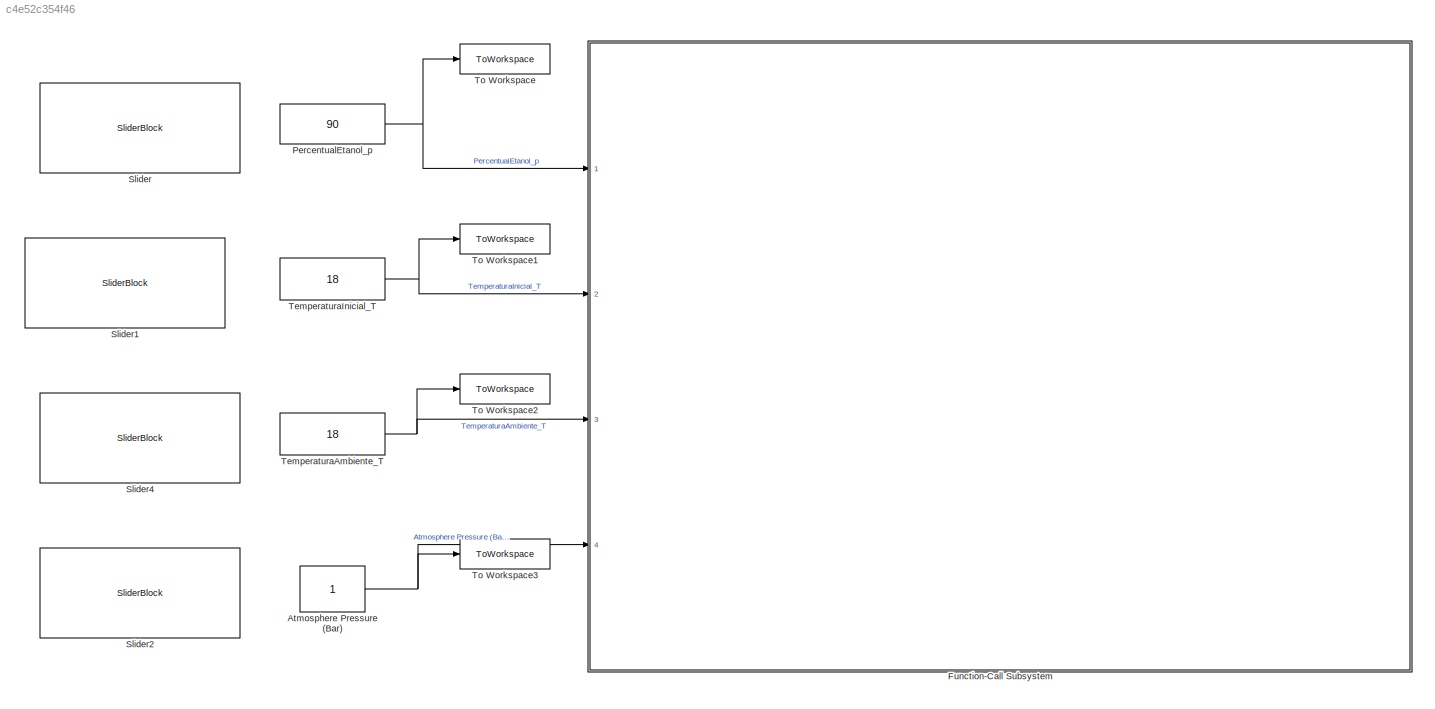
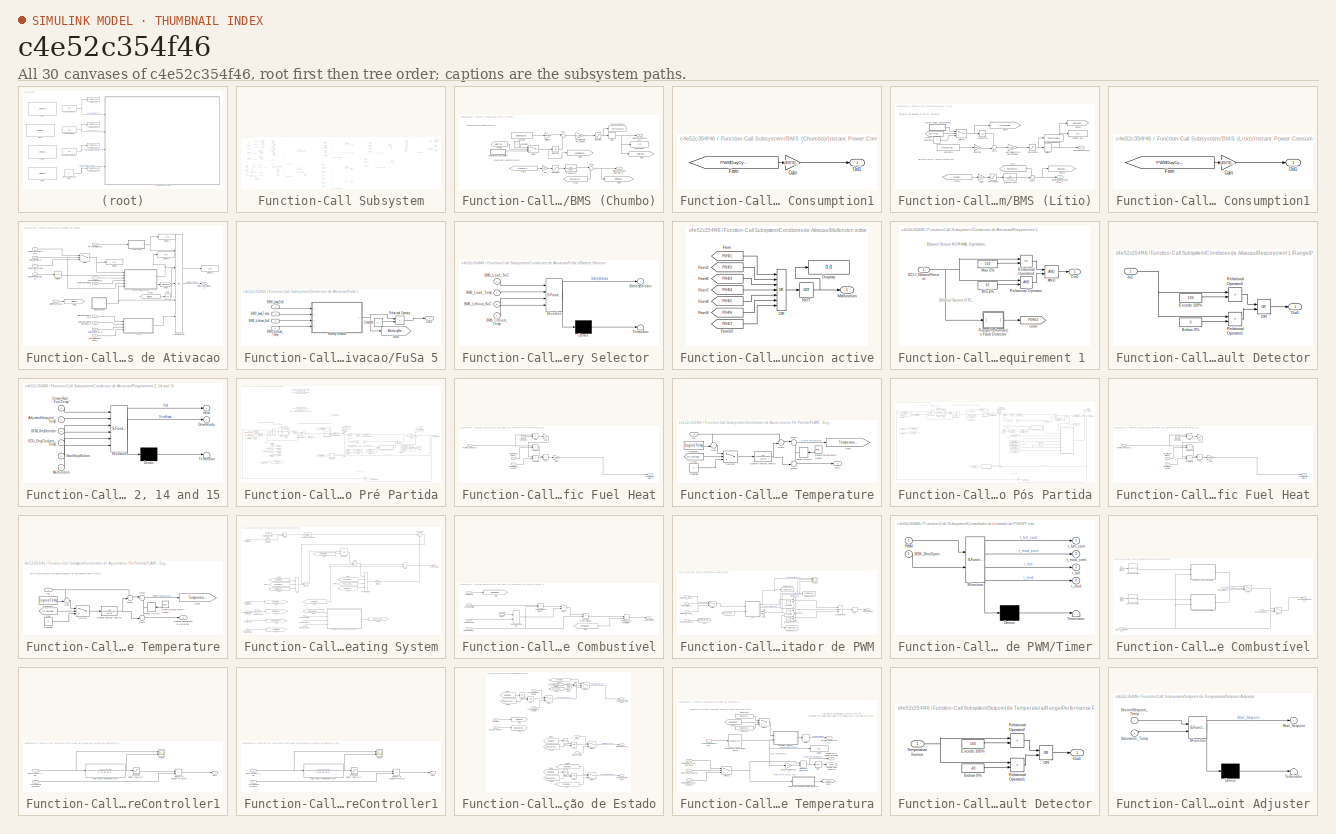
[diagram: thumbnail index - all 30 canvases of the model, root first then tree order]
MODEL slx_c4e52c354f46
KIND model
CONFIG AbsTol = auto
CONFIG EnableMultiTasking = off
CONFIG FixedStep = 0.01
CONFIG MaxStep = auto
CONFIG MinStep = auto
CONFIG RelTol = 1e-3
CONFIG SampleTimeConstraint = Unconstrained
CONFIG SolverName = ode5
CONFIG StartTime = 0.0
CONFIG StopTime = inf
BLOCK [Constant] Atmosphere Pressure (Bar)
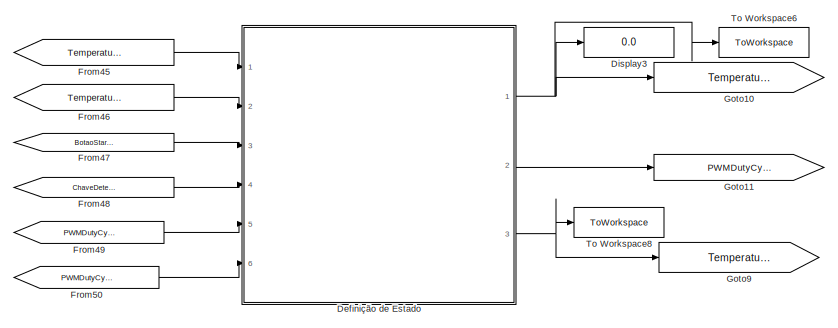
[diagram: Function-Call Subsystem - part 1/5, top right region]
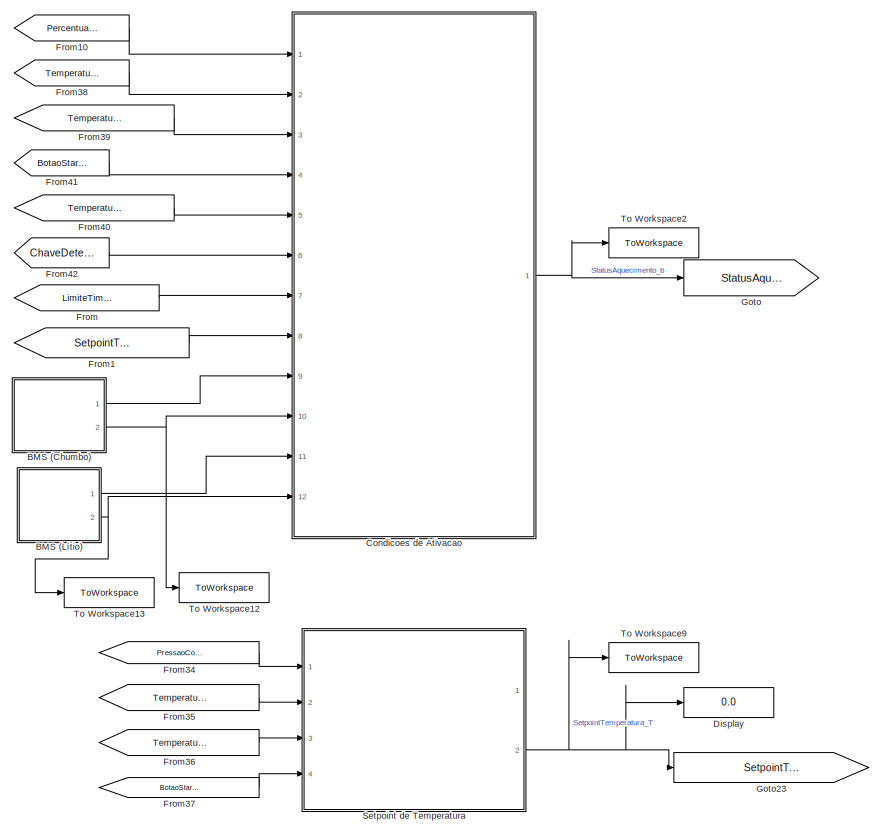
[diagram: Function-Call Subsystem - part 2/5, left side, full height]
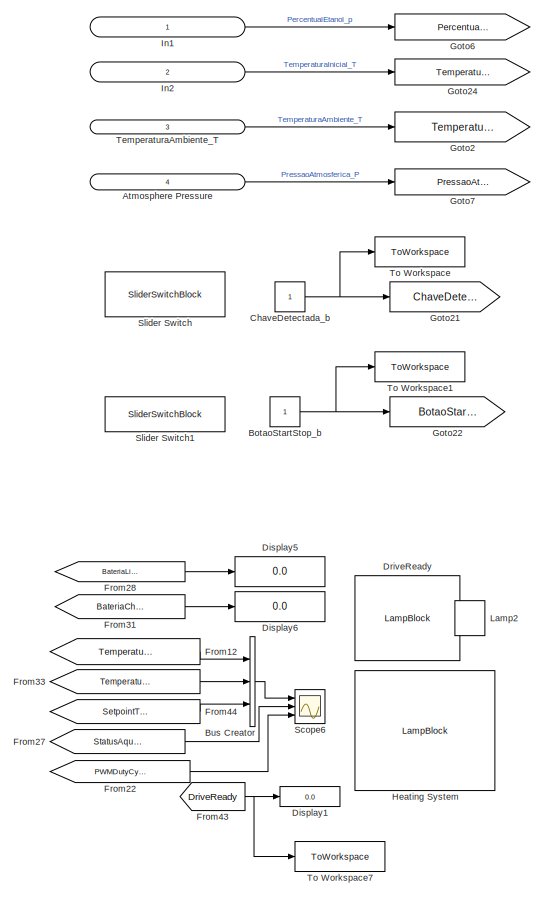
[diagram: Function-Call Subsystem - part 3/5, left side, full height]
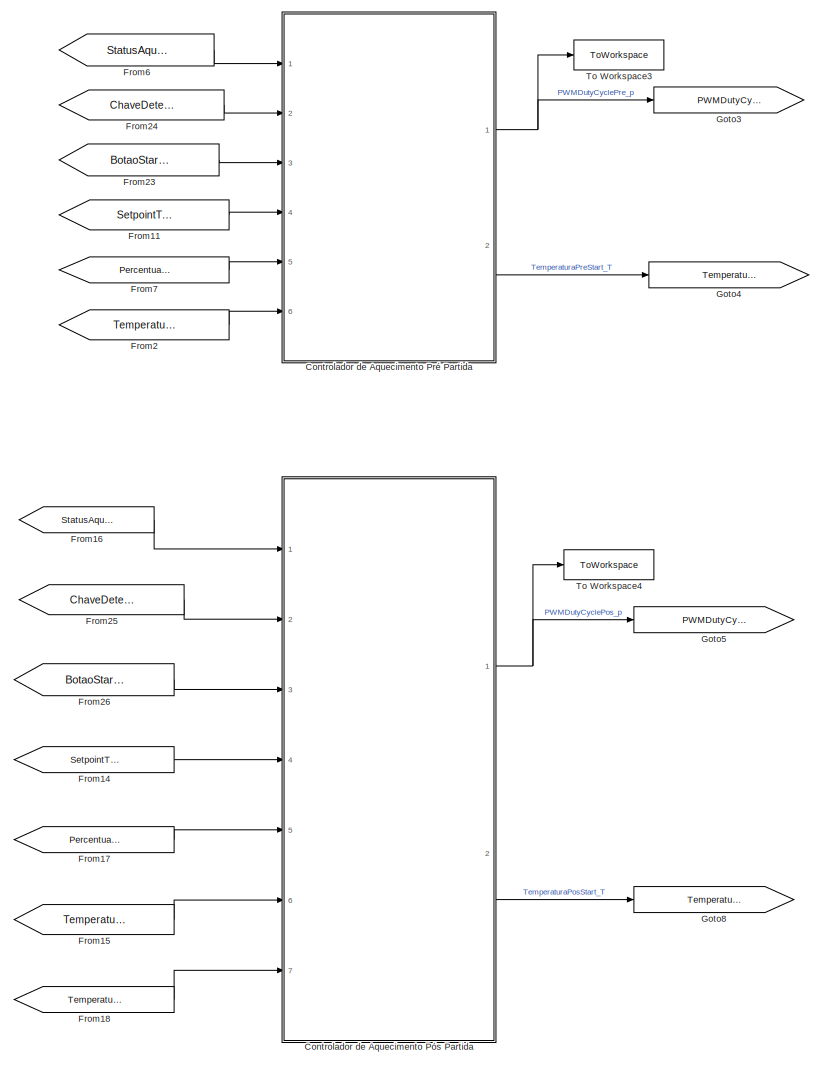
[diagram: Function-Call Subsystem - part 4/5, center side, full height]
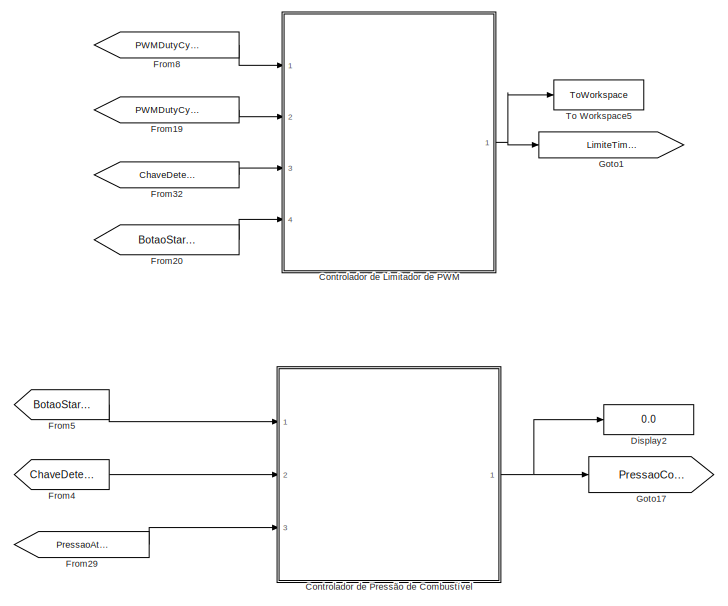
[diagram: Function-Call Subsystem - part 5/5, top right region]
BLOCK [SubSystem] Function-Call Subsystem
  Ports = [4]
  RequestExecContextInheritance = off
  TreatAsAtomicUnit = on
BLOCK [Inport] Function-Call Subsystem/Atmosphere Pressure
  IconDisplay = Port number and signal name
  Port = 4
BLOCK [SubSystem] Function-Call Subsystem/BMS (Chumbo)
  Ports = [0, 2]
  RequestExecContextInheritance = off
BLOCK [Outport] Function-Call Subsystem/BMS (Chumbo)/BateriaChumboCarga_p
  VectorParamsAs1DForOutWhenUnconnected = off
BLOCK [Outport] Function-Call Subsystem/BMS (Chumbo)/BateriaChumboTemperatura_T
  Port = 2
  VectorParamsAs1DForOutWhenUnconnected = off
BLOCK [Constant] Function-Call Subsystem/BMS (Chumbo)/Constant
  Value = LeadAcid_TotalEnergy
BLOCK [Constant] Function-Call Subsystem/BMS (Chumbo)/Constant2
  Value = 0
BLOCK [Delay] Function-Call Subsystem/BMS (Chumbo)/Delay
  DelayLength = 1
  InitialCondition = 100
  InputPortMap = u0
  Ports = [1, 1]
  SampleTime = 0.01
BLOCK [From] Function-Call Subsystem/BMS (Chumbo)/From5
  GotoTag = BatterySelector
  TagVisibility = global
BLOCK [From] Function-Call Subsystem/BMS (Chumbo)/From6
  GotoTag = TemperaturaAmbiente_T
  TagVisibility = global
BLOCK [From] Function-Call Subsystem/BMS (Chumbo)/From7
  GotoTag = LeadEnergyConsumption
  TagVisibility = global
BLOCK [Gain] Function-Call Subsystem/BMS (Chumbo)/Gain
  Gain = 500
BLOCK [Goto] Function-Call Subsystem/BMS (Chumbo)/Goto
  GotoTag = BateriaChumboCarga_p
  TagVisibility = global
BLOCK [Goto] Function-Call Subsystem/BMS (Chumbo)/Goto1
  GotoTag = BateriaChumboTemperatura_T
  TagVisibility = global
BLOCK [Goto] Function-Call Subsystem/BMS (Chumbo)/Goto4
  GotoTag = LeadEnergyConsumption
  TagVisibility = global
BLOCK [Gain] Function-Call Subsystem/BMS (Chumbo)/Initial SoC
  Gain = 0.505
BLOCK [SubSystem] Function-Call Subsystem/BMS (Chumbo)/Instant Power Consumption1
  Ports = [0, 1]
  RequestExecContextInheritance = off
BLOCK [From] Function-Call Subsystem/BMS (Chumbo)/Instant Power Consumption1/From
  GotoTag = PWMDutyCycle_p
  TagVisibility = global
BLOCK [Gain] Function-Call Subsystem/BMS (Chumbo)/Instant Power Consumption1/Gain
  Gain = (400*4)/(100*3600)
BLOCK [Outport] Function-Call Subsystem/BMS (Chumbo)/Instant Power Consumption1/Out1
BLOCK [Integrator] Function-Call Subsystem/BMS (Chumbo)/Integrator
  Ports = [1, 1]
BLOCK [Display] Function-Call Subsystem/BMS (Chumbo)/LeadAcid SoC
  Decimation = 1
  Ports = [1]
BLOCK [Gain] Function-Call Subsystem/BMS (Chumbo)/Normalizing in to percentage
  Gain = (1/LeadAcid_TotalEnergy)*100
BLOCK [Saturate] Function-Call Subsystem/BMS (Chumbo)/Saturation
  LowerLimit = 0
  UpperLimit = 100
BLOCK [Saturate] Function-Call Subsystem/BMS (Chumbo)/Saturation2
  LowerLimit = -inf
  UpperLimit = 120
BLOCK [Sum] Function-Call Subsystem/BMS (Chumbo)/Sum
  Inputs = |+-
  Ports = [2, 1]
BLOCK [Sum] Function-Call Subsystem/BMS (Chumbo)/Sum4
  Inputs = |++
  Ports = [2, 1]
BLOCK [Switch] Function-Call Subsystem/BMS (Chumbo)/Switch
  Criteria = u2 > Threshold
  InputSameDT = off
  SaturateOnIntegerOverflow = off
  Threshold = 1
BLOCK [ToWorkspace] Function-Call Subsystem/BMS (Chumbo)/To Workspace11
  FixptAsFi = on
  MaxDataPoints = inf
  Ports = [1]
  SampleTime = 0.01
  Save2DSignal = 2-D array (concatenate along first dimension)
  VariableName = BateriaChumboCarga_p
BLOCK [TransferFcn] Function-Call Subsystem/BMS (Chumbo)/Transfer Fcn
  Denominator = [40 1]
BLOCK [SubSystem] Function-Call Subsystem/BMS (Lítio)
  Ports = [0, 2]
  RequestExecContextInheritance = off
BLOCK [Outport] Function-Call Subsystem/BMS (Lítio)/BateriaLitioCarga_p
  VectorParamsAs1DForOutWhenUnconnected = off
BLOCK [Outport] Function-Call Subsystem/BMS (Lítio)/BateriaLitioTemperatura_T
  Port = 2
  VectorParamsAs1DForOutWhenUnconnected = off
BLOCK [Constant] Function-Call Subsystem/BMS (Lítio)/Constant1
  Value = Lithium_TotalEnergy
BLOCK [Constant] Function-Call Subsystem/BMS (Lítio)/Constant3
  Value = 0
BLOCK [Delay] Function-Call Subsystem/BMS (Lítio)/Delay1
  DelayLength = 1
  InitialCondition = 100
  InputPortMap = u0
  Ports = [1, 1]
  SampleTime = 0.01
BLOCK [From] Function-Call Subsystem/BMS (Lítio)/From
  GotoTag = TemperaturaAmbiente_T
  TagVisibility = global
BLOCK [From] Function-Call Subsystem/BMS (Lítio)/From4
  GotoTag = LithiumEnergyConsumption
  TagVisibility = global
BLOCK [From] Function-Call Subsystem/BMS (Lítio)/From8
  GotoTag = BatterySelector
  TagVisibility = global
BLOCK [Gain] Function-Call Subsystem/BMS (Lítio)/Gain1
  Gain = 500
BLOCK [Goto] Function-Call Subsystem/BMS (Lítio)/Goto3
  GotoTag = BateriaLitioTemperatura_T
  TagVisibility = global
BLOCK [Goto] Function-Call Subsystem/BMS (Lítio)/Goto6
  GotoTag = BateriaLitioCarga_p
  TagVisibility = global
BLOCK [Goto] Function-Call Subsystem/BMS (Lítio)/Goto7
  GotoTag = LithiumEnergyConsumption
  TagVisibility = global
BLOCK [Gain] Function-Call Subsystem/BMS (Lítio)/Initial SoC.
  Gain = 0.52
BLOCK [SubSystem] Function-Call Subsystem/BMS (Lítio)/Instant Power Consumption1
  NameLocation = top
  Ports = [0, 1]
  RequestExecContextInheritance = off
BLOCK [From] Function-Call Subsystem/BMS (Lítio)/Instant Power Consumption1/From
  GotoTag = PWMDutyCycle_p
  TagVisibility = global
BLOCK [Gain] Function-Call Subsystem/BMS (Lítio)/Instant Power Consumption1/Gain
  Gain = (400*4)/(100*3600)
BLOCK [Outport] Function-Call Subsystem/BMS (Lítio)/Instant Power Consumption1/Out1
BLOCK [Integrator] Function-Call Subsystem/BMS (Lítio)/Integrator1
  Ports = [1, 1]
BLOCK [Display] Function-Call Subsystem/BMS (Lítio)/Lithium SoC
  Decimation = 1
  Ports = [1]
BLOCK [Gain] Function-Call Subsystem/BMS (Lítio)/Normalizing in to percentage1
  Gain = (1/Lithium_TotalEnergy)*100
BLOCK [Saturate] Function-Call Subsystem/BMS (Lítio)/Saturation1
  LowerLimit = 0
  UpperLimit = 100
BLOCK [Saturate] Function-Call Subsystem/BMS (Lítio)/Saturation3
  LowerLimit = -inf
  UpperLimit = 120
BLOCK [Sum] Function-Call Subsystem/BMS (Lítio)/Sum1
  Inputs = -+|
  Ports = [2, 1]
BLOCK [Sum] Function-Call Subsystem/BMS (Lítio)/Sum5
  Inputs = ++|
  Ports = [2, 1]
BLOCK [Switch] Function-Call Subsystem/BMS (Lítio)/Switch1
  Criteria = u2 > Threshold
  InputSameDT = off
  SaturateOnIntegerOverflow = off
  Threshold = 1
BLOCK [ToWorkspace] Function-Call Subsystem/BMS (Lítio)/To Workspace10
  FixptAsFi = on
  MaxDataPoints = inf
  Ports = [1]
  SampleTime = 0.01
  Save2DSignal = 2-D array (concatenate along first dimension)
  VariableName = BateriaLitioCarga_p
BLOCK [TransferFcn] Function-Call Subsystem/BMS (Lítio)/Transfer Fcn1
  Denominator = [40 1]
BLOCK [Constant] Function-Call Subsystem/BotaoStartStop_b
BLOCK [BusCreator] Function-Call Subsystem/Bus Creator
  DisplayOption = bar
  InheritFromInputs = on
  Inputs = 3
  Ports = [3, 1]
BLOCK [Constant] Function-Call Subsystem/ChaveDetectada_b
BLOCK [SubSystem] Function-Call Subsystem/Condicoes de Ativacao
  Ports = [12, 1]
  RequestExecContextInheritance = off
BLOCK [Inport] Function-Call Subsystem/Condicoes de Ativacao/BateriaChumboCarga_p
  Port = 9
BLOCK [Inport] Function-Call Subsystem/Condicoes de Ativacao/BateriaChumboTemperatura_T
  Port = 10
BLOCK [Inport] Function-Call Subsystem/Condicoes de Ativacao/BateriaLitioCarga_p
  Port = 11
BLOCK [Inport] Function-Call Subsystem/Condicoes de Ativacao/BateriaLitioTemperatura_T
  Port = 12
BLOCK [Inport] Function-Call Subsystem/Condicoes de Ativacao/BotaoStartStop_b
  Port = 4
BLOCK [Inport] Function-Call Subsystem/Condicoes de Ativacao/ChaveDetectada_b
  Port = 6
BLOCK [Display] Function-Call Subsystem/Condicoes de Ativacao/Display
  Decimation = 1
  Ports = [1]
BLOCK [Display] Function-Call Subsystem/Condicoes de Ativacao/Display1
  Decimation = 1
  Ports = [1]
BLOCK [Display] Function-Call Subsystem/Condicoes de Ativacao/Display2
  Decimation = 1
  Ports = [1]
BLOCK [Display] Function-Call Subsystem/Condicoes de Ativacao/Display3
  Decimation = 1
  Ports = [1]
BLOCK [From] Function-Call Subsystem/Condicoes de Ativacao/From3
  GotoTag = LimiteTimerPWM_b
BLOCK [SubSystem] Function-Call Subsystem/Condicoes de Ativacao/FuSa 5
  Ports = [4, 1]
  RequestExecContextInheritance = off
BLOCK [Inport] Function-Call Subsystem/Condicoes de Ativacao/FuSa 5/BMS_Lead_SoC
BLOCK [Inport] Function-Call Subsystem/Condicoes de Ativacao/FuSa 5/BMS_Lead_Temp
  Port = 2
BLOCK [Inport] Function-Call Subsystem/Condicoes de Ativacao/FuSa 5/BMS_Lithium_SoC
  Port = 3
BLOCK [Inport] Function-Call Subsystem/Condicoes de Ativacao/FuSa 5/BMS_Lithium_Temp
  Port = 4
BLOCK [SubSystem] Function-Call Subsystem/Condicoes de Ativacao/FuSa 5/Battery Selector 
  ErrorFcn = Stateflow.Translate.translate
  PermitHierarchicalResolution = ExplicitOnly
  Ports = [4, 1]
  RequestExecContextInheritance = off
  SFBlockType = Chart
  TreatAsAtomicUnit = on
BLOCK [Demux] Function-Call Subsystem/Condicoes de Ativacao/FuSa 5/Battery Selector / Demux 
  Outputs = 1
  Ports = [1, 1]
BLOCK [S-Function] Function-Call Subsystem/Condicoes de Ativacao/FuSa 5/Battery Selector / SFunction 
  EnableBusSupport = on
  FunctionName = sf_sfun
  Parameters = Lead_MaxTemp,Lithium_MaxTemp
  PortCounts = [4 2]
  Ports = [4, 2]
  SFcnIsStateOwnerBlock = off
  SFunctionDeploymentMode = off
  Tag = Stateflow S-Function 4
BLOCK [Terminator] Function-Call Subsystem/Condicoes de Ativacao/FuSa 5/Battery Selector / Terminator 
BLOCK [Inport] Function-Call Subsystem/Condicoes de Ativacao/FuSa 5/Battery Selector /BMS_Lead_SoC
BLOCK [Inport] Function-Call Subsystem/Condicoes de Ativacao/FuSa 5/Battery Selector /BMS_Lead_Temp
  Port = 2
BLOCK [Inport] Function-Call Subsystem/Condicoes de Ativacao/FuSa 5/Battery Selector /BMS_Lithium_SoC
  Port = 3
BLOCK [Inport] Function-Call Subsystem/Condicoes de Ativacao/FuSa 5/Battery Selector /BMS_Lithium_Temp
  Port = 4
BLOCK [Outport] Function-Call Subsystem/Condicoes de Ativacao/FuSa 5/Battery Selector /BatterySelector
BLOCK [Constant] Function-Call Subsystem/Condicoes de Ativacao/FuSa 5/Constant
  Value = 0
BLOCK [Goto] Function-Call Subsystem/Condicoes de Ativacao/FuSa 5/Goto1
  GotoTag = BatterySelector
  TagVisibility = global
BLOCK [Outport] Function-Call Subsystem/Condicoes de Ativacao/FuSa 5/Out1
BLOCK [RelationalOperator] Function-Call Subsystem/Condicoes de Ativacao/FuSa 5/Relational Operator
  InputSameDT = off
  Operator = >
  OutDataTypeStr = boolean
  Ports = [2, 1]
  RndMeth = Simplest
BLOCK [Goto] Function-Call Subsystem/Condicoes de Ativacao/Goto1
  GotoTag = LimiteTimerPWM_b
BLOCK [Goto] Function-Call Subsystem/Condicoes de Ativacao/Goto3
  GotoTag = DriveReady
  TagVisibility = global
BLOCK [Inport] Function-Call Subsystem/Condicoes de Ativacao/LimiteTimerPWM_b
  Port = 7
BLOCK [Logic] Function-Call Subsystem/Condicoes de Ativacao/Logical Operator
  AllPortsSameDT = off
  Inputs = 5
  OutDataTypeStr = boolean
  Ports = [5, 1]
BLOCK [SubSystem] Function-Call Subsystem/Condicoes de Ativacao/Malfuncion active
  Ports = [0, 1]
  RequestExecContextInheritance = off
BLOCK [Display] Function-Call Subsystem/Condicoes de Ativacao/Malfuncion active/Display
  Decimation = 1
  Ports = [1]
BLOCK [From] Function-Call Subsystem/Condicoes de Ativacao/Malfuncion active/From
  GotoTag = P0H01
  TagVisibility = global
BLOCK [From] Function-Call Subsystem/Condicoes de Ativacao/Malfuncion active/From10
  GotoTag = P0H07
  TagVisibility = global
BLOCK [From] Function-Call Subsystem/Condicoes de Ativacao/Malfuncion active/From2
  GotoTag = P0H02
  TagVisibility = global
BLOCK [From] Function-Call Subsystem/Condicoes de Ativacao/Malfuncion active/From6
  GotoTag = P0H03
  TagVisibility = global
BLOCK [From] Function-Call Subsystem/Condicoes de Ativacao/Malfuncion active/From7
  GotoTag = P0H04
  TagVisibility = global
BLOCK [From] Function-Call Subsystem/Condicoes de Ativacao/Malfuncion active/From8
  GotoTag = P0H05
  TagVisibility = global
BLOCK [From] Function-Call Subsystem/Condicoes de Ativacao/Malfuncion active/From9
  GotoTag = P0H06
  TagVisibility = global
BLOCK [Outport] Function-Call Subsystem/Condicoes de Ativacao/Malfuncion active/Malfunction
BLOCK [Logic] Function-Call Subsystem/Condicoes de Ativacao/Malfuncion active/NOT
  AllPortsSameDT = off
  IconShape = distinctive
  Operator = NOT
  OutDataTypeStr = boolean
  Ports = [1, 1]
BLOCK [Logic] Function-Call Subsystem/Condicoes de Ativacao/Malfuncion active/OR
  AllPortsSameDT = off
  IconShape = distinctive
  Inputs = 7
  Operator = OR
  OutDataTypeStr = boolean
  Ports = [7, 1]
BLOCK [Logic] Function-Call Subsystem/Condicoes de Ativacao/NOT
  AllPortsSameDT = off
  IconShape = distinctive
  Operator = NOT
  OutDataTypeStr = boolean
  Ports = [1, 1]
BLOCK [Inport] Function-Call Subsystem/Condicoes de Ativacao/PercentualEtanol_p
BLOCK [SubSystem] Function-Call Subsystem/Condicoes de Ativacao/Requirement 1 
  Ports = [1, 1]
  RequestExecContextInheritance = off
BLOCK [Logic] Function-Call Subsystem/Condicoes de Ativacao/Requirement 1 /AND
  AllPortsSameDT = off
  IconShape = distinctive
  OutDataTypeStr = boolean
  Ports = [2, 1]
BLOCK [Inport] Function-Call Subsystem/Condicoes de Ativacao/Requirement 1 /ECU_EthanolPercent
BLOCK [Goto] Function-Call Subsystem/Condicoes de Ativacao/Requirement 1 /Goto
  GotoTag = P0H03
  TagVisibility = global
BLOCK [Constant] Function-Call Subsystem/Condicoes de Ativacao/Requirement 1 /Max E%
  Value = 100
BLOCK [Constant] Function-Call Subsystem/Condicoes de Ativacao/Requirement 1 /Min E%
  Value = 85
BLOCK [Outport] Function-Call Subsystem/Condicoes de Ativacao/Requirement 1 /Out1
  VectorParamsAs1DForOutWhenUnconnected = off
BLOCK [SubSystem] Function-Call Subsystem/Condicoes de Ativacao/Requirement 1 /Range//Performance Fault Detector
  Ports = [1, 1]
  RequestExecContextInheritance = off
BLOCK [Constant] Function-Call Subsystem/Condicoes de Ativacao/Requirement 1 /Range//Performance Fault Detector/Below 0%
  Value = 0
BLOCK [Constant] Function-Call Subsystem/Condicoes de Ativacao/Requirement 1 /Range//Performance Fault Detector/Exceds 100%
  Value = 100
BLOCK [Inport] Function-Call Subsystem/Condicoes de Ativacao/Requirement 1 /Range//Performance Fault Detector/In1
BLOCK [Logic] Function-Call Subsystem/Condicoes de Ativacao/Requirement 1 /Range//Performance Fault Detector/OR
  AllPortsSameDT = off
  IconShape = distinctive
  Operator = OR
  OutDataTypeStr = boolean
  Ports = [2, 1]
BLOCK [Outport] Function-Call Subsystem/Condicoes de Ativacao/Requirement 1 /Range//Performance Fault Detector/Out1
BLOCK [RelationalOperator] Function-Call Subsystem/Condicoes de Ativacao/Requirement 1 /Range//Performance Fault Detector/Relational Operator1
  InputSameDT = off
  Operator = <
  OutDataTypeStr = boolean
  Ports = [2, 1]
  RndMeth = Simplest
BLOCK [RelationalOperator] Function-Call Subsystem/Condicoes de Ativacao/Requirement 1 /Range//Performance Fault Detector/Relational Operator2
  InputSameDT = off
  Operator = >
  OutDataTypeStr = boolean
  Ports = [2, 1]
  RndMeth = Simplest
BLOCK [RelationalOperator] Function-Call Subsystem/Condicoes de Ativacao/Requirement 1 /Relational Operator
  InputSameDT = off
  OutDataTypeStr = boolean
  Ports = [2, 1]
  RndMeth = Simplest
BLOCK [RelationalOperator] Function-Call Subsystem/Condicoes de Ativacao/Requirement 1 /Relational Operator4
  InputSameDT = off
  Operator = <=
  OutDataTypeStr = boolean
  Ports = [2, 1]
  RndMeth = Simplest
BLOCK [SubSystem] Function-Call Subsystem/Condicoes de Ativacao/Requirement 2, 14 and 15
  ErrorFcn = Stateflow.Translate.translate
  PermitHierarchicalResolution = ExplicitOnly
  Ports = [6, 2]
  RequestExecContextInheritance = off
  SFBlockType = Chart
  TreatAsAtomicUnit = on
BLOCK [Demux] Function-Call Subsystem/Condicoes de Ativacao/Requirement 2, 14 and 15/ Demux 
  Outputs = 1
  Ports = [1, 1]
BLOCK [S-Function] Function-Call Subsystem/Condicoes de Ativacao/Requirement 2, 14 and 15/ SFunction 
  EnableBusSupport = on
  FunctionName = sf_sfun
  PortCounts = [6 3]
  Ports = [6, 3]
  SFcnIsStateOwnerBlock = off
  SFunctionDeploymentMode = off
  Tag = Stateflow S-Function 1
BLOCK [Terminator] Function-Call Subsystem/Condicoes de Ativacao/Requirement 2, 14 and 15/ Terminator 
BLOCK [Inport] Function-Call Subsystem/Condicoes de Ativacao/Requirement 2, 14 and 15/AdjustedSetpoint_Temp
  Port = 2
BLOCK [Inport] Function-Call Subsystem/Condicoes de Ativacao/Requirement 2, 14 and 15/BCM_KeyDetector
  Port = 3
BLOCK [Inport] Function-Call Subsystem/Condicoes de Ativacao/Requirement 2, 14 and 15/ComonRail_FuelTemp
BLOCK [Outport] Function-Call Subsystem/Condicoes de Ativacao/Requirement 2, 14 and 15/DriveReady
  Port = 2
BLOCK [Inport] Function-Call Subsystem/Condicoes de Ativacao/Requirement 2, 14 and 15/ECU_EngCoolant_Temp
  Port = 4
BLOCK [Outport] Function-Call Subsystem/Condicoes de Ativacao/Requirement 2, 14 and 15/Heat
BLOCK [Inport] Function-Call Subsystem/Condicoes de Ativacao/Requirement 2, 14 and 15/Malfunction
  Port = 6
BLOCK [Inport] Function-Call Subsystem/Condicoes de Ativacao/Requirement 2, 14 and 15/StartStopButton
  Port = 5
BLOCK [Inport] Function-Call Subsystem/Condicoes de Ativacao/SetpointTemperatura_T
  Port = 8
BLOCK [Outport] Function-Call Subsystem/Condicoes de Ativacao/StatusAquecimento_b
BLOCK [Switch] Function-Call Subsystem/Condicoes de Ativacao/Switch
  Criteria = u2 > Threshold
  InputSameDT = off
  SaturateOnIntegerOverflow = off
BLOCK [Inport] Function-Call Subsystem/Condicoes de Ativacao/TemperaturaInicial_T
  Port = 2
BLOCK [Inport] Function-Call Subsystem/Condicoes de Ativacao/TemperaturaPosStart_T
  Port = 5
BLOCK [Inport] Function-Call Subsystem/Condicoes de Ativacao/TemperaturaPreStart_T
  Port = 3
BLOCK [UnitDelay] Function-Call Subsystem/Condicoes de Ativacao/Unit Delay
  HasFrameUpgradeWarning = on
  SampleTime = -1
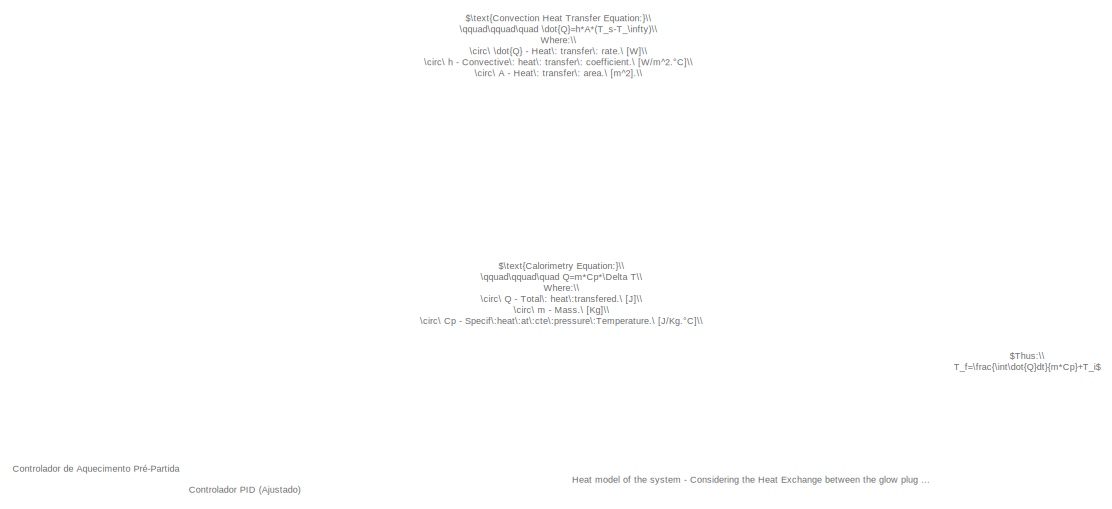
[diagram: Function-Call Subsystem/Controlador de Aquecimento Pré Partida - part 1/4, top left region]
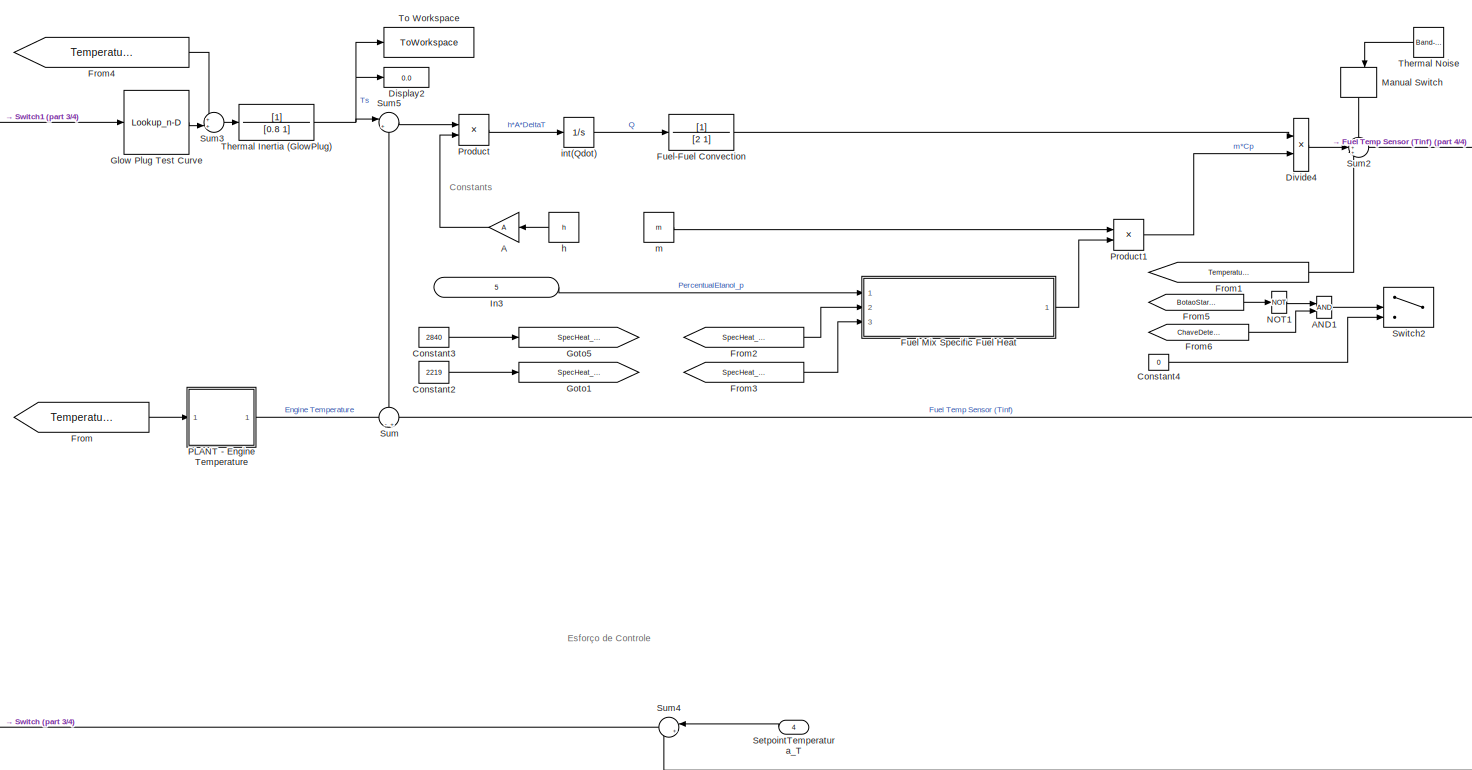
[diagram: Function-Call Subsystem/Controlador de Aquecimento Pré Partida - part 2/4, bottom center region]
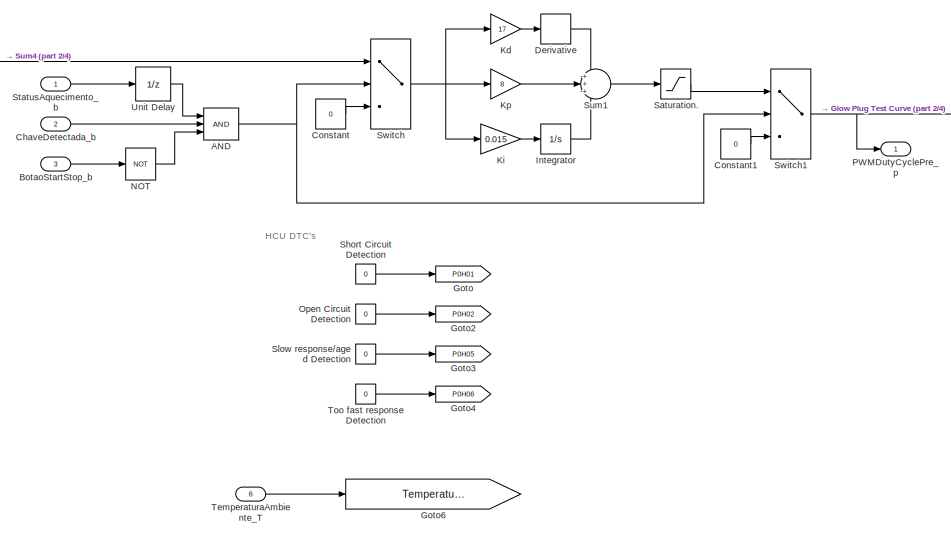
[diagram: Function-Call Subsystem/Controlador de Aquecimento Pré Partida - part 3/4, middle left region]
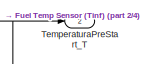
[diagram: Function-Call Subsystem/Controlador de Aquecimento Pré Partida - part 4/4, middle right region]
BLOCK [SubSystem] Function-Call Subsystem/Controlador de Aquecimento Pré Partida
  Ports = [6, 2]
  RequestExecContextInheritance = off
BLOCK [Gain] Function-Call Subsystem/Controlador de Aquecimento Pré Partida/A
  Gain = A
BLOCK [Logic] Function-Call Subsystem/Controlador de Aquecimento Pré Partida/AND
  AllPortsSameDT = off
  IconShape = distinctive
  Inputs = 3
  OutDataTypeStr = boolean
  Ports = [3, 1]
BLOCK [Logic] Function-Call Subsystem/Controlador de Aquecimento Pré Partida/AND1
  AllPortsSameDT = off
  IconShape = distinctive
  OutDataTypeStr = boolean
  Ports = [2, 1]
BLOCK [Inport] Function-Call Subsystem/Controlador de Aquecimento Pré Partida/BotaoStartStop_b
  Port = 3
BLOCK [Inport] Function-Call Subsystem/Controlador de Aquecimento Pré Partida/ChaveDetectada_b
  Port = 2
BLOCK [Constant] Function-Call Subsystem/Controlador de Aquecimento Pré Partida/Constant
  Value = 0
BLOCK [Constant] Function-Call Subsystem/Controlador de Aquecimento Pré Partida/Constant1
  Value = 0
BLOCK [Constant] Function-Call Subsystem/Controlador de Aquecimento Pré Partida/Constant2
  Value = 2219
BLOCK [Constant] Function-Call Subsystem/Controlador de Aquecimento Pré Partida/Constant3
  Value = 2840
BLOCK [Constant] Function-Call Subsystem/Controlador de Aquecimento Pré Partida/Constant4
  Value = 0
BLOCK [Derivative] Function-Call Subsystem/Controlador de Aquecimento Pré Partida/Derivative
BLOCK [Display] Function-Call Subsystem/Controlador de Aquecimento Pré Partida/Display2
  Decimation = 1
  Ports = [1]
BLOCK [Product] Function-Call Subsystem/Controlador de Aquecimento Pré Partida/Divide4
  Inputs = */
  Ports = [2, 1]
BLOCK [From] Function-Call Subsystem/Controlador de Aquecimento Pré Partida/From
  GotoTag = Temperatura_Ambiente
BLOCK [From] Function-Call Subsystem/Controlador de Aquecimento Pré Partida/From1
  GotoTag = Temperatura_Ambiente
BLOCK [From] Function-Call Subsystem/Controlador de Aquecimento Pré Partida/From2
  GotoTag = SpecHeat_Ethanol
BLOCK [From] Function-Call Subsystem/Controlador de Aquecimento Pré Partida/From3
  GotoTag = SpecHeat_Gas
BLOCK [From] Function-Call Subsystem/Controlador de Aquecimento Pré Partida/From4
  GotoTag = Temperatura_Ambiente
BLOCK [From] Function-Call Subsystem/Controlador de Aquecimento Pré Partida/From5
  GotoTag = BotaoStartStop_b
  TagVisibility = global
BLOCK [From] Function-Call Subsystem/Controlador de Aquecimento Pré Partida/From6
  GotoTag = ChaveDetectada_b
  TagVisibility = global
BLOCK [SubSystem] Function-Call Subsystem/Controlador de Aquecimento Pré Partida/Fuel Mix Specific Fuel Heat
  Ports = [3, 1]
  RequestExecContextInheritance = off
BLOCK [Sum] Function-Call Subsystem/Controlador de Aquecimento Pré Partida/Fuel Mix Specific Fuel Heat/Add
  IconShape = rectangular
  Inputs = +-
  Ports = [2, 1]
BLOCK [Sum] Function-Call Subsystem/Controlador de Aquecimento Pré Partida/Fuel Mix Specific Fuel Heat/Add1
  IconShape = rectangular
  Ports = [2, 1]
BLOCK [Constant] Function-Call Subsystem/Controlador de Aquecimento Pré Partida/Fuel Mix Specific Fuel Heat/Constant3
  Value = 100
BLOCK [Inport] Function-Call Subsystem/Controlador de Aquecimento Pré Partida/Fuel Mix Specific Fuel Heat/FuelMix_Feedback
BLOCK [Gain] Function-Call Subsystem/Controlador de Aquecimento Pré Partida/Fuel Mix Specific Fuel Heat/Gain
  Gain = -1
BLOCK [Gain] Function-Call Subsystem/Controlador de Aquecimento Pré Partida/Fuel Mix Specific Fuel Heat/Gain1
  Gain = 1/100
BLOCK [Product] Function-Call Subsystem/Controlador de Aquecimento Pré Partida/Fuel Mix Specific Fuel Heat/Product1
  Ports = [2, 1]
BLOCK [Product] Function-Call Subsystem/Controlador de Aquecimento Pré Partida/Fuel Mix Specific Fuel Heat/Product2
  Ports = [2, 1]
BLOCK [Inport] Function-Call Subsystem/Controlador de Aquecimento Pré Partida/Fuel Mix Specific Fuel Heat/Specific Heat Etanol
  Port = 2
BLOCK [Inport] Function-Call Subsystem/Controlador de Aquecimento Pré Partida/Fuel Mix Specific Fuel Heat/Specific Heat Gasoline
  Port = 3
BLOCK [Outport] Function-Call Subsystem/Controlador de Aquecimento Pré Partida/Fuel Mix Specific Fuel Heat/Specific Heat Mixture
BLOCK [TransferFcn] Function-Call Subsystem/Controlador de Aquecimento Pré Partida/Fuel-Fuel Convection
  Denominator = [2 1]
BLOCK [Lookup_n-D] Function-Call Subsystem/Controlador de Aquecimento Pré Partida/Glow Plug Test Curve
  BreakpointsForDimension1 = PWM
  BreakpointsForDimension2 = [1:3]
  InputPortMap = u0
  InternalRulePriority = Speed
  NumberOfTableDimensions = 1
  Ports = [1, 1]
  RndMeth = Simplest
  Table = Ts
BLOCK [Goto] Function-Call Subsystem/Controlador de Aquecimento Pré Partida/Goto
  GotoTag = P0H01
  TagVisibility = global
BLOCK [Goto] Function-Call Subsystem/Controlador de Aquecimento Pré Partida/Goto1
  GotoTag = SpecHeat_Gas
BLOCK [Goto] Function-Call Subsystem/Controlador de Aquecimento Pré Partida/Goto2
  GotoTag = P0H02
  TagVisibility = global
BLOCK [Goto] Function-Call Subsystem/Controlador de Aquecimento Pré Partida/Goto3
  GotoTag = P0H05
  TagVisibility = global
BLOCK [Goto] Function-Call Subsystem/Controlador de Aquecimento Pré Partida/Goto4
  GotoTag = P0H06
  TagVisibility = global
BLOCK [Goto] Function-Call Subsystem/Controlador de Aquecimento Pré Partida/Goto5
  GotoTag = SpecHeat_Ethanol
BLOCK [Goto] Function-Call Subsystem/Controlador de Aquecimento Pré Partida/Goto6
  GotoTag = Temperatura_Ambiente
BLOCK [Inport] Function-Call Subsystem/Controlador de Aquecimento Pré Partida/In3
  IconDisplay = Port number and signal name
  Port = 5
BLOCK [Integrator] Function-Call Subsystem/Controlador de Aquecimento Pré Partida/Integrator
  Ports = [1, 1]
BLOCK [Gain] Function-Call Subsystem/Controlador de Aquecimento Pré Partida/Kd
  Gain = 17
BLOCK [Gain] Function-Call Subsystem/Controlador de Aquecimento Pré Partida/Ki
  Gain = 0.015
BLOCK [Gain] Function-Call Subsystem/Controlador de Aquecimento Pré Partida/Kp
  Gain = 8
BLOCK [ManualSwitch] Function-Call Subsystem/Controlador de Aquecimento Pré Partida/Manual Switch
  NameLocation = left
BLOCK [Logic] Function-Call Subsystem/Controlador de Aquecimento Pré Partida/NOT
  AllPortsSameDT = off
  IconShape = distinctive
  Operator = NOT
  OutDataTypeStr = boolean
  Ports = [1, 1]
BLOCK [Logic] Function-Call Subsystem/Controlador de Aquecimento Pré Partida/NOT1
  AllPortsSameDT = off
  IconShape = distinctive
  Operator = NOT
  OutDataTypeStr = boolean
  Ports = [1, 1]
BLOCK [Constant] Function-Call Subsystem/Controlador de Aquecimento Pré Partida/Open Circuit Detection
  Value = 0
BLOCK [SubSystem] Function-Call Subsystem/Controlador de Aquecimento Pré Partida/PLANT - Engine Temperature
  Ports = [1, 1]
  RequestExecContextInheritance = off
BLOCK [Reference] Function-Call Subsystem/Controlador de Aquecimento Pré Partida/PLANT - Engine Temperature/Band-Limited White Noise  REF=simulink/Sources/Band-Limited
White Noise
  Ports = [0, 1]
  SourceBlock = simulink/Sources/Band-Limited\nWhite Noise
  SourceProductBaseCode = SL
  SourceType = Band-Limited White Noise.
BLOCK [Constant] Function-Call Subsystem/Controlador de Aquecimento Pré Partida/PLANT - Engine Temperature/Constant
  Value = 0
BLOCK [Constant] Function-Call Subsystem/Controlador de Aquecimento Pré Partida/PLANT - Engine Temperature/Constant1
  Value = EngineTemp
BLOCK [TransferFcn] Function-Call Subsystem/Controlador de Aquecimento Pré Partida/PLANT - Engine Temperature/Engine Thermal Inertia
  Denominator = [40 1]
BLOCK [From] Function-Call Subsystem/Controlador de Aquecimento Pré Partida/PLANT - Engine Temperature/From
  GotoTag = DriveReady
  TagVisibility = global
BLOCK [Goto] Function-Call Subsystem/Controlador de Aquecimento Pré Partida/PLANT - Engine Temperature/Goto
  GotoTag = TemperaturaArrefMotorPre_T
  TagVisibility = global
BLOCK [Inport] Function-Call Subsystem/Controlador de Aquecimento Pré Partida/PLANT - Engine Temperature/In1
BLOCK [ManualSwitch] Function-Call Subsystem/Controlador de Aquecimento Pré Partida/PLANT - Engine Temperature/Manual Switch
  CurrentSetting = 0
BLOCK [Outport] Function-Call Subsystem/Controlador de Aquecimento Pré Partida/PLANT - Engine Temperature/Out1
BLOCK [Sum] Function-Call Subsystem/Controlador de Aquecimento Pré Partida/PLANT - Engine Temperature/Sum
  Inputs = -+|
  Ports = [2, 1]
BLOCK [Sum] Function-Call Subsystem/Controlador de Aquecimento Pré Partida/PLANT - Engine Temperature/Sum1
  Inputs = ++|
  Ports = [2, 1]
BLOCK [Sum] Function-Call Subsystem/Controlador de Aquecimento Pré Partida/PLANT - Engine Temperature/Sum2
  Inputs = |++
  Ports = [2, 1]
BLOCK [Sum] Function-Call Subsystem/Controlador de Aquecimento Pré Partida/PLANT - Engine Temperature/Sum3
  Inputs = ++|
  Ports = [2, 1]
BLOCK [Switch] Function-Call Subsystem/Controlador de Aquecimento Pré Partida/PLANT - Engine Temperature/Switch
  InputSameDT = off
  SaturateOnIntegerOverflow = off
  Threshold = 2
BLOCK [Outport] Function-Call Subsystem/Controlador de Aquecimento Pré Partida/PWMDutyCyclePre_p
BLOCK [Product] Function-Call Subsystem/Controlador de Aquecimento Pré Partida/Product
  Ports = [2, 1]
BLOCK [Product] Function-Call Subsystem/Controlador de Aquecimento Pré Partida/Product1
  Ports = [2, 1]
BLOCK [Saturate] Function-Call Subsystem/Controlador de Aquecimento Pré Partida/Saturation.
  LowerLimit = 0
  UpperLimit = 100
BLOCK [Inport] Function-Call Subsystem/Controlador de Aquecimento Pré Partida/SetpointTemperatura_T
  Port = 4
BLOCK [Constant] Function-Call Subsystem/Controlador de Aquecimento Pré Partida/Short Circuit Detection
  Value = 0
BLOCK [Constant] Function-Call Subsystem/Controlador de Aquecimento Pré Partida/Slow response//aged Detection
  Value = 0
BLOCK [Inport] Function-Call Subsystem/Controlador de Aquecimento Pré Partida/StatusAquecimento_b
BLOCK [Sum] Function-Call Subsystem/Controlador de Aquecimento Pré Partida/Sum
  Inputs = -+
  NameLocation = right
  Ports = [2, 1]
BLOCK [Sum] Function-Call Subsystem/Controlador de Aquecimento Pré Partida/Sum1
  Inputs = +++
  Ports = [3, 1]
BLOCK [Sum] Function-Call Subsystem/Controlador de Aquecimento Pré Partida/Sum2
  Inputs = +++
  Ports = [3, 1]
BLOCK [Sum] Function-Call Subsystem/Controlador de Aquecimento Pré Partida/Sum3
  Inputs = ++|
  Ports = [2, 1]
BLOCK [Sum] Function-Call Subsystem/Controlador de Aquecimento Pré Partida/Sum4
  Inputs = |+-
  Ports = [2, 1]
BLOCK [Sum] Function-Call Subsystem/Controlador de Aquecimento Pré Partida/Sum5
  Inputs = |+-
  Ports = [2, 1]
BLOCK [Switch] Function-Call Subsystem/Controlador de Aquecimento Pré Partida/Switch
  Criteria = u2 > Threshold
  InputSameDT = off
  SaturateOnIntegerOverflow = off
BLOCK [Switch] Function-Call Subsystem/Controlador de Aquecimento Pré Partida/Switch1
  Criteria = u2 > Threshold
  InputSameDT = off
  SaturateOnIntegerOverflow = off
BLOCK [Switch] Function-Call Subsystem/Controlador de Aquecimento Pré Partida/Switch2
  Criteria = u2 > Threshold
  InputSameDT = off
  SaturateOnIntegerOverflow = off
BLOCK [Inport] Function-Call Subsystem/Controlador de Aquecimento Pré Partida/TemperaturaAmbiente_T
  Port = 6
BLOCK [Outport] Function-Call Subsystem/Controlador de Aquecimento Pré Partida/TemperaturaPreStart_T
  Port = 2
  VectorParamsAs1DForOutWhenUnconnected = off
BLOCK [TransferFcn] Function-Call Subsystem/Controlador de Aquecimento Pré Partida/Thermal Inertia (GlowPlug)
  Denominator = [0.8 1]
BLOCK [Reference] Function-Call Subsystem/Controlador de Aquecimento Pré Partida/Thermal Noise  REF=simulink/Sources/Band-Limited
White Noise
  Ports = [0, 1]
  SourceBlock = simulink/Sources/Band-Limited\nWhite Noise
  SourceProductBaseCode = SL
  SourceType = Band-Limited White Noise.
BLOCK [ToWorkspace] Function-Call Subsystem/Controlador de Aquecimento Pré Partida/To Workspace
  FixptAsFi = on
  MaxDataPoints = inf
  Ports = [1]
  SampleTime = 0.01
  SaveFormat = Timeseries
  VariableName = Temp_Sup_PreP
BLOCK [Constant] Function-Call Subsystem/Controlador de Aquecimento Pré Partida/Too fast response Detection
  Value = 0
BLOCK [UnitDelay] Function-Call Subsystem/Controlador de Aquecimento Pré Partida/Unit Delay
  HasFrameUpgradeWarning = on
  SampleTime = -1
BLOCK [Constant] Function-Call Subsystem/Controlador de Aquecimento Pré Partida/h
  Value = h
BLOCK [Integrator] Function-Call Subsystem/Controlador de Aquecimento Pré Partida/int(Qdot)
  Ports = [1, 1]
BLOCK [Constant] Function-Call Subsystem/Controlador de Aquecimento Pré Partida/m
  Value = m
BLOCK [SubSystem] Function-Call Subsystem/Controlador de Aquecimento Pós Partida
  Ports = [7, 2]
  RequestExecContextInheritance = off
BLOCK [Gain] Function-Call Subsystem/Controlador de Aquecimento Pós Partida/A
  Gain = A
BLOCK [Logic] Function-Call Subsystem/Controlador de Aquecimento Pós Partida/AND
  AllPortsSameDT = off
  IconShape = distinctive
  Inputs = 3
  OutDataTypeStr = boolean
  Ports = [3, 1]
BLOCK [Sum] Function-Call Subsystem/Controlador de Aquecimento Pós Partida/Add
  IconShape = rectangular
  Ports = [2, 1]
BLOCK [Inport] Function-Call Subsystem/Controlador de Aquecimento Pós Partida/BotaoStartStop_b
  Port = 3
BLOCK [Inport] Function-Call Subsystem/Controlador de Aquecimento Pós Partida/ChaveDetectada_b
  Port = 2
BLOCK [Constant] Function-Call Subsystem/Controlador de Aquecimento Pós Partida/Constant
  Value = 0
BLOCK [Constant] Function-Call Subsystem/Controlador de Aquecimento Pós Partida/Constant1
  Value = 0
BLOCK [Constant] Function-Call Subsystem/Controlador de Aquecimento Pós Partida/Constant2
  Value = 2219
BLOCK [Constant] Function-Call Subsystem/Controlador de Aquecimento Pós Partida/Constant3
  Value = 2840
BLOCK [Constant] Function-Call Subsystem/Controlador de Aquecimento Pós Partida/Constant4
  Value = Fluxo_Injetor
BLOCK [Derivative] Function-Call Subsystem/Controlador de Aquecimento Pós Partida/Derivative
BLOCK [Display] Function-Call Subsystem/Controlador de Aquecimento Pós Partida/Display
  Decimation = 1
  Ports = [1]
BLOCK [Display] Function-Call Subsystem/Controlador de Aquecimento Pós Partida/Display1
  Decimation = 1
  Ports = [1]
BLOCK [Display] Function-Call Subsystem/Controlador de Aquecimento Pós Partida/Display2
  Decimation = 1
  Ports = [1]
BLOCK [Product] Function-Call Subsystem/Controlador de Aquecimento Pós Partida/Divide4
  Inputs = */
  Ports = [2, 1]
BLOCK [From] Function-Call Subsystem/Controlador de Aquecimento Pós Partida/From
  GotoTag = Temperatura_Ambiente
BLOCK [From] Function-Call Subsystem/Controlador de Aquecimento Pós Partida/From2
  GotoTag = SpecHeat_Ethanol
BLOCK [From] Function-Call Subsystem/Controlador de Aquecimento Pós Partida/From3
  GotoTag = SpecHeat_Gas
BLOCK [From] Function-Call Subsystem/Controlador de Aquecimento Pós Partida/From4
  GotoTag = Temperatura_Ambiente
BLOCK [From] Function-Call Subsystem/Controlador de Aquecimento Pós Partida/From5
  GotoTag = PWM_PostStart
BLOCK [From] Function-Call Subsystem/Controlador de Aquecimento Pós Partida/From6
  GotoTag = FuelTemperature_PreStart
BLOCK [From] Function-Call Subsystem/Controlador de Aquecimento Pós Partida/From8
  GotoTag = TemperaturaArrefMotorPre_T
  TagVisibility = global
BLOCK [SubSystem] Function-Call Subsystem/Controlador de Aquecimento Pós Partida/Fuel Mix Specific Fuel Heat
  Ports = [3, 1]
  RequestExecContextInheritance = off
BLOCK [Sum] Function-Call Subsystem/Controlador de Aquecimento Pós Partida/Fuel Mix Specific Fuel Heat/Add
  IconShape = rectangular
  Inputs = +-
  Ports = [2, 1]
BLOCK [Sum] Function-Call Subsystem/Controlador de Aquecimento Pós Partida/Fuel Mix Specific Fuel Heat/Add1
  IconShape = rectangular
  Ports = [2, 1]
BLOCK [Constant] Function-Call Subsystem/Controlador de Aquecimento Pós Partida/Fuel Mix Specific Fuel Heat/Constant3
  Value = 100
BLOCK [Inport] Function-Call Subsystem/Controlador de Aquecimento Pós Partida/Fuel Mix Specific Fuel Heat/FuelMix_Feedback
BLOCK [Gain] Function-Call Subsystem/Controlador de Aquecimento Pós Partida/Fuel Mix Specific Fuel Heat/Gain
  Gain = -1
BLOCK [Gain] Function-Call Subsystem/Controlador de Aquecimento Pós Partida/Fuel Mix Specific Fuel Heat/Gain1
  Gain = 1/100
BLOCK [Product] Function-Call Subsystem/Controlador de Aquecimento Pós Partida/Fuel Mix Specific Fuel Heat/Product1
  Ports = [2, 1]
BLOCK [Product] Function-Call Subsystem/Controlador de Aquecimento Pós Partida/Fuel Mix Specific Fuel Heat/Product2
  Ports = [2, 1]
BLOCK [Inport] Function-Call Subsystem/Controlador de Aquecimento Pós Partida/Fuel Mix Specific Fuel Heat/Specific Heat Etanol
  Port = 2
BLOCK [Inport] Function-Call Subsystem/Controlador de Aquecimento Pós Partida/Fuel Mix Specific Fuel Heat/Specific Heat Gasoline
  Port = 3
BLOCK [Outport] Function-Call Subsystem/Controlador de Aquecimento Pós Partida/Fuel Mix Specific Fuel Heat/Specific Heat Mixture
BLOCK [TransferFcn] Function-Call Subsystem/Controlador de Aquecimento Pós Partida/Fuel-Fuel Convection
  Denominator = [2 1]
BLOCK [Lookup_n-D] Function-Call Subsystem/Controlador de Aquecimento Pós Partida/Glow Plug Test Curve
  BreakpointsForDimension1 = PWM
  BreakpointsForDimension2 = [1:3]
  InputPortMap = u0
  InternalRulePriority = Speed
  NumberOfTableDimensions = 1
  Ports = [1, 1]
  RndMeth = Simplest
  Table = Ts
BLOCK [Goto] Function-Call Subsystem/Controlador de Aquecimento Pós Partida/Goto1
  GotoTag = SpecHeat_Gas
BLOCK [Goto] Function-Call Subsystem/Controlador de Aquecimento Pós Partida/Goto5
  GotoTag = SpecHeat_Ethanol
BLOCK [Goto] Function-Call Subsystem/Controlador de Aquecimento Pós Partida/Goto6
  GotoTag = Temperatura_Ambiente
BLOCK [Goto] Function-Call Subsystem/Controlador de Aquecimento Pós Partida/Goto7
  GotoTag = FuelTemperature_PreStart
BLOCK [Goto] Function-Call Subsystem/Controlador de Aquecimento Pós Partida/Goto8
  GotoTag = PWM_PostStart
BLOCK [Lookup_n-D] Function-Call Subsystem/Controlador de Aquecimento Pós Partida/IDLE FUEL INJECTION TABLE OPEN LOOP
  BreakpointsForDimension1 = [900 1500 1800 2000 2200 2500 2700 3200]
  InputPortMap = u0
  InternalRulePriority = Speed
  NumberOfTableDimensions = 1
  Ports = [1, 1]
  RndMeth = Simplest
  Table = [5.003 2.66 2.407 2.76 2.606 2.826 3.607 3.601]
BLOCK [Inport] Function-Call Subsystem/Controlador de Aquecimento Pós Partida/In3
  IconDisplay = Port number and signal name
  Port = 5
BLOCK [Integrator] Function-Call Subsystem/Controlador de Aquecimento Pós Partida/Integrator
  Ports = [1, 1]
BLOCK [Gain] Function-Call Subsystem/Controlador de Aquecimento Pós Partida/Kd
  Gain = 42.8421
BLOCK [Gain] Function-Call Subsystem/Controlador de Aquecimento Pós Partida/Ki
  Gain = 0.031927
BLOCK [Gain] Function-Call Subsystem/Controlador de Aquecimento Pós Partida/Kp
  Gain = 2.4664
BLOCK [ManualSwitch] Function-Call Subsystem/Controlador de Aquecimento Pós Partida/Manual Switch
  NameLocation = left
BLOCK [SubSystem] Function-Call Subsystem/Controlador de Aquecimento Pós Partida/PLANT - Engine Temperature
  Ports = [1, 1]
  RequestExecContextInheritance = off
BLOCK [Reference] Function-Call Subsystem/Controlador de Aquecimento Pós Partida/PLANT - Engine Temperature/Band-Limited White Noise  REF=simulink/Sources/Band-Limited
White Noise
  Ports = [0, 1]
  SourceBlock = simulink/Sources/Band-Limited\nWhite Noise
  SourceProductBaseCode = SL
  SourceType = Band-Limited White Noise.
BLOCK [Constant] Function-Call Subsystem/Controlador de Aquecimento Pós Partida/PLANT - Engine Temperature/Constant
  Value = 0
BLOCK [Constant] Function-Call Subsystem/Controlador de Aquecimento Pós Partida/PLANT - Engine Temperature/Constant1
  Value = EngineTemp
BLOCK [Outport] Function-Call Subsystem/Controlador de Aquecimento Pós Partida/PLANT - Engine Temperature/Engine Temperature Variation
BLOCK [TransferFcn] Function-Call Subsystem/Controlador de Aquecimento Pós Partida/PLANT - Engine Temperature/Engine Thermal Inertia
  Denominator = [40 1]
BLOCK [From] Function-Call Subsystem/Controlador de Aquecimento Pós Partida/PLANT - Engine Temperature/From
  GotoTag = DriveReady
  TagVisibility = global
BLOCK [Goto] Function-Call Subsystem/Controlador de Aquecimento Pós Partida/PLANT - Engine Temperature/Goto
  GotoTag = TemperaturaArrefMotorPos_T
  TagVisibility = global
BLOCK [Inport] Function-Call Subsystem/Controlador de Aquecimento Pós Partida/PLANT - Engine Temperature/In1
BLOCK [ManualSwitch] Function-Call Subsystem/Controlador de Aquecimento Pós Partida/PLANT - Engine Temperature/Manual Switch
  CurrentSetting = 0
BLOCK [Sum] Function-Call Subsystem/Controlador de Aquecimento Pós Partida/PLANT - Engine Temperature/Sum
  Inputs = -+|
  Ports = [2, 1]
BLOCK [Sum] Function-Call Subsystem/Controlador de Aquecimento Pós Partida/PLANT - Engine Temperature/Sum1
  Inputs = ++|
  Ports = [2, 1]
BLOCK [Sum] Function-Call Subsystem/Controlador de Aquecimento Pós Partida/PLANT - Engine Temperature/Sum2
  Inputs = |++
  Ports = [2, 1]
BLOCK [Sum] Function-Call Subsystem/Controlador de Aquecimento Pós Partida/PLANT - Engine Temperature/Sum3
  Inputs = ++|
  Ports = [2, 1]
BLOCK [Switch] Function-Call Subsystem/Controlador de Aquecimento Pós Partida/PLANT - Engine Temperature/Switch
  InputSameDT = off
  SaturateOnIntegerOverflow = off
  Threshold = 2
BLOCK [Outport] Function-Call Subsystem/Controlador de Aquecimento Pós Partida/PWMDutyCyclePos_p
BLOCK [Product] Function-Call Subsystem/Controlador de Aquecimento Pós Partida/Product
  Ports = [2, 1]
BLOCK [Product] Function-Call Subsystem/Controlador de Aquecimento Pós Partida/Product1
  Ports = [2, 1]
BLOCK [Constant] Function-Call Subsystem/Controlador de Aquecimento Pós Partida/Rail Internal Volume (mm³)
  Value = VolumeInterno_CommonRail
BLOCK [Constant] Function-Call Subsystem/Controlador de Aquecimento Pós Partida/Rail Internal Volume (mm³)1
  Value = Densidade_Combustivel
BLOCK [Constant] Function-Call Subsystem/Controlador de Aquecimento Pós Partida/Rail Internal Volume (mm³)2
  Value = RPM_Motor
BLOCK [Saturate] Function-Call Subsystem/Controlador de Aquecimento Pós Partida/Saturation.
  LowerLimit = 0
  UpperLimit = 100
BLOCK [Inport] Function-Call Subsystem/Controlador de Aquecimento Pós Partida/SetpointTemperatura_T
  Port = 4
BLOCK [Inport] Function-Call Subsystem/Controlador de Aquecimento Pós Partida/StatusAquecimento_b
BLOCK [Sum] Function-Call Subsystem/Controlador de Aquecimento Pós Partida/Sum
  Inputs = -+
  NameLocation = right
  Ports = [2, 1]
BLOCK [Sum] Function-Call Subsystem/Controlador de Aquecimento Pós Partida/Sum1
  Inputs = +++
  Ports = [3, 1]
BLOCK [Sum] Function-Call Subsystem/Controlador de Aquecimento Pós Partida/Sum2
  Inputs = +++
  Ports = [3, 1]
BLOCK [Sum] Function-Call Subsystem/Controlador de Aquecimento Pós Partida/Sum3
  Inputs = ++|
  Ports = [2, 1]
BLOCK [Sum] Function-Call Subsystem/Controlador de Aquecimento Pós Partida/Sum4
  Inputs = |+-
  Ports = [2, 1]
BLOCK [Sum] Function-Call Subsystem/Controlador de Aquecimento Pós Partida/Sum5
  Inputs = |+-
  Ports = [2, 1]
BLOCK [Switch] Function-Call Subsystem/Controlador de Aquecimento Pós Partida/Switch
  Criteria = u2 > Threshold
  InputSameDT = off
  SaturateOnIntegerOverflow = off
BLOCK [Switch] Function-Call Subsystem/Controlador de Aquecimento Pós Partida/Switch1
  Criteria = u2 > Threshold
  InputSameDT = off
  SaturateOnIntegerOverflow = off
BLOCK [Inport] Function-Call Subsystem/Controlador de Aquecimento Pós Partida/TemperaturaAmbiente_T
  Port = 6
BLOCK [Outport] Function-Call Subsystem/Controlador de Aquecimento Pós Partida/TemperaturaPosStart_T
  Port = 2
  VectorParamsAs1DForOutWhenUnconnected = off
BLOCK [Inport] Function-Call Subsystem/Controlador de Aquecimento Pós Partida/TemperaturaPreStart_T
  Port = 7
BLOCK [TransferFcn] Function-Call Subsystem/Controlador de Aquecimento Pós Partida/Thermal Inertia (GlowPlug)
  Denominator = [0.8 1]
BLOCK [Reference] Function-Call Subsystem/Controlador de Aquecimento Pós Partida/Thermal Noise  REF=simulink/Sources/Band-Limited
White Noise
  Ports = [0, 1]
  SourceBlock = simulink/Sources/Band-Limited\nWhite Noise
  SourceProductBaseCode = SL
  SourceType = Band-Limited White Noise.
BLOCK [ToWorkspace] Function-Call Subsystem/Controlador de Aquecimento Pós Partida/To Workspace
  FixptAsFi = on
  MaxDataPoints = inf
  Ports = [1]
  SampleTime = 0.01
  SaveFormat = Timeseries
  VariableName = Temp_Sup_PosP
BLOCK [SubSystem] Function-Call Subsystem/Controlador de Aquecimento Pós Partida/Transient Engine ON - Fuel Heating System
  Ports = [8, 1]
  RequestExecContextInheritance = off
BLOCK [Saturate] Function-Call Subsystem/Controlador de Aquecimento Pós Partida/Transient Engine ON - Fuel Heating System/% para 0-1
  LowerLimit = 0
  UpperLimit = 1
BLOCK [Sum] Function-Call Subsystem/Controlador de Aquecimento Pós Partida/Transient Engine ON - Fuel Heating System/Add
  IconShape = rectangular
  Ports = [2, 1]
BLOCK [Sum] Function-Call Subsystem/Controlador de Aquecimento Pós Partida/Transient Engine ON - Fuel Heating System/Add1
  IconShape = rectangular
  Inputs = +-
  Ports = [2, 1]
BLOCK [Inport] Function-Call Subsystem/Controlador de Aquecimento Pós Partida/Transient Engine ON - Fuel Heating System/Calor Específico da Mistura
  Port = 2
BLOCK [SubSystem] Function-Call Subsystem/Controlador de Aquecimento Pós Partida/Transient Engine ON - Fuel Heating System/Determinação do Fluxo de Combustível
  Ports = [4, 1]
  RequestExecContextInheritance = off
BLOCK [Product] Function-Call Subsystem/Controlador de Aquecimento Pós Partida/Transient Engine ON - Fuel Heating System/Determinação do Fluxo de Combustível/Divide
  Inputs = */
  Ports = [2, 1]
BLOCK [Product] Function-Call Subsystem/Controlador de Aquecimento Pós Partida/Transient Engine ON - Fuel Heating System/Determinação do Fluxo de Combustível/Duração do Ciclo (ms)
  Inputs = */
  Ports = [2, 1]
BLOCK [Inport] Function-Call Subsystem/Controlador de Aquecimento Pós Partida/Transient Engine ON - Fuel Heating System/Determinação do Fluxo de Combustível/Engine Speed
  Port = 3
BLOCK [Product] Function-Call Subsystem/Controlador de Aquecimento Pós Partida/Transient Engine ON - Fuel Heating System/Determinação do Fluxo de Combustível/Fluxo de Combustível Normalizado (mg//ms)
  Inputs = **
  Ports = [2, 1]
BLOCK [From] Function-Call Subsystem/Controlador de Aquecimento Pós Partida/Transient Engine ON - Fuel Heating System/Determinação do Fluxo de Combustível/From
  GotoTag = Densidade_Combustivel
BLOCK [Inport] Function-Call Subsystem/Controlador de Aquecimento Pós Partida/Transient Engine ON - Fuel Heating System/Determinação do Fluxo de Combustível/Fuel Density
BLOCK [Outport] Function-Call Subsystem/Controlador de Aquecimento Pós Partida/Transient Engine ON - Fuel Heating System/Determinação do Fluxo de Combustível/Fuel Flow mm³//ms
BLOCK [Inport] Function-Call Subsystem/Controlador de Aquecimento Pós Partida/Transient Engine ON - Fuel Heating System/Determinação do Fluxo de Combustível/Fuel Pulse Width
  Port = 2
BLOCK [Goto] Function-Call Subsystem/Controlador de Aquecimento Pós Partida/Transient Engine ON - Fuel Heating System/Determinação do Fluxo de Combustível/Goto
  GotoTag = Densidade_Combustivel
BLOCK [Inport] Function-Call Subsystem/Controlador de Aquecimento Pós Partida/Transient Engine ON - Fuel Heating System/Determinação do Fluxo de Combustível/Injector Fuel Flow
  Port = 4
BLOCK [Constant] Function-Call Subsystem/Controlador de Aquecimento Pós Partida/Transient Engine ON - Fuel Heating System/Determinação do Fluxo de Combustível/Min to ms
  Value = 60000
BLOCK [Product] Function-Call Subsystem/Controlador de Aquecimento Pós Partida/Transient Engine ON - Fuel Heating System/Determinação do Fluxo de Combustível/Normalized Fuel Flow (mm³//ms)
  Inputs = */
  Ports = [2, 1]
BLOCK [Product] Function-Call Subsystem/Controlador de Aquecimento Pós Partida/Transient Engine ON - Fuel Heating System/Determinação do Fluxo de Combustível/Pulso de Injeção (mg//cyc)
  Inputs = **
  Ports = [2, 1]
BLOCK [Product] Function-Call Subsystem/Controlador de Aquecimento Pós Partida/Transient Engine ON - Fuel Heating System/Divide
  Inputs = **
  Ports = [2, 1]
BLOCK [Gain] Function-Call Subsystem/Controlador de Aquecimento Pós Partida/Transient Engine ON - Fuel Heating System/Divisão
  Gain = 1000
BLOCK [Inport] Function-Call Subsystem/Controlador de Aquecimento Pós Partida/Transient Engine ON - Fuel Heating System/Engine Speed
  Port = 7
BLOCK [From] Function-Call Subsystem/Controlador de Aquecimento Pós Partida/Transient Engine ON - Fuel Heating System/From
  GotoTag = Densidade_Combustivel
BLOCK [From] Function-Call Subsystem/Controlador de Aquecimento Pós Partida/Transient Engine ON - Fuel Heating System/From1
  GotoTag = Densidade_Combustivel
BLOCK [From] Function-Call Subsystem/Controlador de Aquecimento Pós Partida/Transient Engine ON - Fuel Heating System/From2
  GotoTag = Densidade_Combustivel
BLOCK [From] Function-Call Subsystem/Controlador de Aquecimento Pós Partida/Transient Engine ON - Fuel Heating System/From3
  GotoTag = CalorEspecifico_Mistura
BLOCK [From] Function-Call Subsystem/Controlador de Aquecimento Pós Partida/Transient Engine ON - Fuel Heating System/From4
  GotoTag = CalorEspecifico_Mistura
BLOCK [From] Function-Call Subsystem/Controlador de Aquecimento Pós Partida/Transient Engine ON - Fuel Heating System/From5
  GotoTag = Fluxo_Combustivel
BLOCK [From] Function-Call Subsystem/Controlador de Aquecimento Pós Partida/Transient Engine ON - Fuel Heating System/From6
  GotoTag = VolumeInterno_CommonRail
BLOCK [From] Function-Call Subsystem/Controlador de Aquecimento Pós Partida/Transient Engine ON - Fuel Heating System/From7
  GotoTag = Temperatura_Combustivel
BLOCK [From] Function-Call Subsystem/Controlador de Aquecimento Pós Partida/Transient Engine ON - Fuel Heating System/From8
  GotoTag = Temperatura_Combustivel
BLOCK [Inport] Function-Call Subsystem/Controlador de Aquecimento Pós Partida/Transient Engine ON - Fuel Heating System/Fuel Density
  Port = 5
BLOCK [Inport] Function-Call Subsystem/Controlador de Aquecimento Pós Partida/Transient Engine ON - Fuel Heating System/Fuel Pulse Width
  Port = 6
BLOCK [Outport] Function-Call Subsystem/Controlador de Aquecimento Pós Partida/Transient Engine ON - Fuel Heating System/Fuel Temp Out
BLOCK [TransferFcn] Function-Call Subsystem/Controlador de Aquecimento Pós Partida/Transient Engine ON - Fuel Heating System/Fuel-Fuel Convection
  Denominator = [2 1]
BLOCK [Goto] Function-Call Subsystem/Controlador de Aquecimento Pós Partida/Transient Engine ON - Fuel Heating System/Goto
  GotoTag = Densidade_Combustivel
BLOCK [Goto] Function-Call Subsystem/Controlador de Aquecimento Pós Partida/Transient Engine ON - Fuel Heating System/Goto1
  GotoTag = CalorEspecifico_Mistura
BLOCK [Goto] Function-Call Subsystem/Controlador de Aquecimento Pós Partida/Transient Engine ON - Fuel Heating System/Goto2
  GotoTag = Temperatura_Combustivel
BLOCK [Goto] Function-Call Subsystem/Controlador de Aquecimento Pós Partida/Transient Engine ON - Fuel Heating System/Goto3
  GotoTag = Fluxo_Combustivel
BLOCK [Goto] Function-Call Subsystem/Controlador de Aquecimento Pós Partida/Transient Engine ON - Fuel Heating System/Goto4
  GotoTag = VolumeInterno_CommonRail
BLOCK [Inport] Function-Call Subsystem/Controlador de Aquecimento Pós Partida/Transient Engine ON - Fuel Heating System/Injector Fuel Flow
  Port = 8
BLOCK [Constant] Function-Call Subsystem/Controlador de Aquecimento Pós Partida/Transient Engine ON - Fuel Heating System/Input Max Power (W)
  Value = 400
BLOCK [Integrator] Function-Call Subsystem/Controlador de Aquecimento Pós Partida/Transient Engine ON - Fuel Heating System/Integrator
  InitialConditionSource = external
  Ports = [2, 1]
BLOCK [Gain] Function-Call Subsystem/Controlador de Aquecimento Pós Partida/Transient Engine ON - Fuel Heating System/J//kg*ºC para J//g*ºc
  Gain = 1/1000
BLOCK [Product] Function-Call Subsystem/Controlador de Aquecimento Pós Partida/Transient Engine ON - Fuel Heating System/P*V*c
  Inputs = ***
  Ports = [3, 1]
BLOCK [Sum] Function-Call Subsystem/Controlador de Aquecimento Pós Partida/Transient Engine ON - Fuel Heating System/Power Entry
  Inputs = |+-
  NameLocation = top
  Ports = [2, 1]
BLOCK [Inport] Function-Call Subsystem/Controlador de Aquecimento Pós Partida/Transient Engine ON - Fuel Heating System/Power Input
  Port = 3
BLOCK [Product] Function-Call Subsystem/Controlador de Aquecimento Pós Partida/Transient Engine ON - Fuel Heating System/Razão
  Inputs = */
  Ports = [2, 1]
BLOCK [Product] Function-Call Subsystem/Controlador de Aquecimento Pós Partida/Transient Engine ON - Fuel Heating System/Ro*Vv*C*DeltaT
  Inputs = ****
  Ports = [4, 1]
BLOCK [Inport] Function-Call Subsystem/Controlador de Aquecimento Pós Partida/Transient Engine ON - Fuel Heating System/Temperatura_Entrada
BLOCK [Inport] Function-Call Subsystem/Controlador de Aquecimento Pós Partida/Transient Engine ON - Fuel Heating System/VolumeInterno_CommonRail
  Port = 4
BLOCK [UnitDelay] Function-Call Subsystem/Controlador de Aquecimento Pós Partida/Unit Delay
  HasFrameUpgradeWarning = on
  SampleTime = -1
BLOCK [Constant] Function-Call Subsystem/Controlador de Aquecimento Pós Partida/h
  Value = h
BLOCK [Integrator] Function-Call Subsystem/Controlador de Aquecimento Pós Partida/int(Qdot)
  Ports = [1, 1]
BLOCK [Constant] Function-Call Subsystem/Controlador de Aquecimento Pós Partida/m
  Value = m
BLOCK [SubSystem] Function-Call Subsystem/Controlador de Limitador de PWM
  Ports = [4, 1]
  RequestExecContextInheritance = off
  TreatAsAtomicUnit = on
BLOCK [Inport] Function-Call Subsystem/Controlador de Limitador de PWM/BotaoStartStop_b
  Port = 4
BLOCK [Inport] Function-Call Subsystem/Controlador de Limitador de PWM/ChaveDetectada_b
  Port = 3
BLOCK [Constant] Function-Call Subsystem/Controlador de Limitador de PWM/Constant
  OutDataTypeStr = uint8
  Value = 180
BLOCK [Constant] Function-Call Subsystem/Controlador de Limitador de PWM/Constant1
  OutDataTypeStr = uint8
  Value = 30
BLOCK [Constant] Function-Call Subsystem/Controlador de Limitador de PWM/Constant2
  OutDataTypeStr = uint8
  Value = 150
BLOCK [Delay] Function-Call Subsystem/Controlador de Limitador de PWM/Delay
  DelayLength = 1
  InitialCondition = 0
  InputPortMap = u0
  Ports = [1, 1]
  SampleTime = 0.01
BLOCK [From] Function-Call Subsystem/Controlador de Limitador de PWM/From
  GotoTag = BCM_KeyDetector
BLOCK [Goto] Function-Call Subsystem/Controlador de Limitador de PWM/Goto1
  GotoTag = BCM_KeyDetector
BLOCK [RelationalOperator] Function-Call Subsystem/Controlador de Limitador de PWM/GreaterThan
  InputSameDT = off
  OutDataTypeStr = boolean
  Ports = [2, 1]
  RndMeth = Simplest
BLOCK [RelationalOperator] Function-Call Subsystem/Controlador de Limitador de PWM/GreaterThan1
  InputSameDT = off
  OutDataTypeStr = boolean
  Ports = [2, 1]
  RndMeth = Simplest
BLOCK [RelationalOperator] Function-Call Subsystem/Controlador de Limitador de PWM/GreaterThan2
  InputSameDT = off
  OutDataTypeStr = boolean
  Ports = [2, 1]
  RndMeth = Simplest
BLOCK [Outport] Function-Call Subsystem/Controlador de Limitador de PWM/LimiteTimerPWM_b
BLOCK [Logic] Function-Call Subsystem/Controlador de Limitador de PWM/Logical Operator1
  AllPortsSameDT = off
  Inputs = 3
  Operator = OR
  OutDataTypeStr = boolean
  Ports = [3, 1]
BLOCK [Inport] Function-Call Subsystem/Controlador de Limitador de PWM/PWMDutyCyclePos_p
  Port = 2
BLOCK [Inport] Function-Call Subsystem/Controlador de Limitador de PWM/PWMDutyCyclePre_p
BLOCK [Scope] Function-Call Subsystem/Controlador de Limitador de PWM/Scope
  Floating = off
  NumInputPorts = 3
  Ports = [3]
  ScopeSpecificationString = Simulink.scopes.TimeScopeBlockCfg('CurrentConfiguration', extmgr.ConfigurationSet(extmgr.Configuration('Core','General UI',true),extmgr.Configuration('Core','Source UI',true),extmgr.Configuration('Sources','WiredSimulink',true,'DataLoggingVariableName','ScopeData1'),extmgr.Configuration('Visuals','Time Domain',true,'SerializedDisplays',{struct('MinYLimReal','-31.9525','MaxYLimReal','287.5725','YLa...<+1511ch>
BLOCK [Sum] Function-Call Subsystem/Controlador de Limitador de PWM/Sum1
  IconShape = rectangular
  Ports = [2, 1]
BLOCK [Switch] Function-Call Subsystem/Controlador de Limitador de PWM/Switch
  Criteria = u2 > Threshold
  InputSameDT = off
  SaturateOnIntegerOverflow = off
BLOCK [SubSystem] Function-Call Subsystem/Controlador de Limitador de PWM/Timer
  ErrorFcn = Stateflow.Translate.translate
  PermitHierarchicalResolution = ExplicitOnly
  Ports = [2, 4]
  RequestExecContextInheritance = off
  SFBlockType = Chart
  TreatAsAtomicUnit = on
BLOCK [Demux] Function-Call Subsystem/Controlador de Limitador de PWM/Timer/ Demux 
  Outputs = 1
  Ports = [1, 1]
BLOCK [S-Function] Function-Call Subsystem/Controlador de Limitador de PWM/Timer/ SFunction 
  EnableBusSupport = on
  FunctionName = sf_sfun
  PortCounts = [2 5]
  Ports = [2, 5]
  SFcnIsStateOwnerBlock = off
  SFunctionDeploymentMode = off
  Tag = Stateflow S-Function 3
BLOCK [Terminator] Function-Call Subsystem/Controlador de Limitador de PWM/Timer/ Terminator 
BLOCK [Inport] Function-Call Subsystem/Controlador de Limitador de PWM/Timer/BCM_DoorOpen
  Port = 2
BLOCK [Inport] Function-Call Subsystem/Controlador de Limitador de PWM/Timer/PWM
BLOCK [Outport] Function-Call Subsystem/Controlador de Limitador de PWM/Timer/t_full
  Port = 3
BLOCK [Outport] Function-Call Subsystem/Controlador de Limitador de PWM/Timer/t_full_cont
BLOCK [Outport] Function-Call Subsystem/Controlador de Limitador de PWM/Timer/t_mod
  Port = 4
BLOCK [Outport] Function-Call Subsystem/Controlador de Limitador de PWM/Timer/t_mod_cont
  Port = 2
BLOCK [ToWorkspace] Function-Call Subsystem/Controlador de Limitador de PWM/To Workspace1
  FixptAsFi = on
  MaxDataPoints = inf
  Ports = [1]
  SampleTime = 0.01
  Save2DSignal = 2-D array (concatenate along first dimension)
  VariableName = ModPWM
BLOCK [ToWorkspace] Function-Call Subsystem/Controlador de Limitador de PWM/To Workspace2
  FixptAsFi = on
  MaxDataPoints = inf
  Ports = [1]
  SampleTime = 0.01
  Save2DSignal = 2-D array (concatenate along first dimension)
  VariableName = TotalPWM
BLOCK [ToWorkspace] Function-Call Subsystem/Controlador de Limitador de PWM/To Workspace5
  FixptAsFi = on
  MaxDataPoints = inf
  Ports = [1]
  SampleTime = 0.01
  Save2DSignal = 2-D array (concatenate along first dimension)
  VariableName = FullPWM
BLOCK [SubSystem] Function-Call Subsystem/Controlador de Pressão de Combustível
  Ports = [3, 1]
  RequestExecContextInheritance = off
BLOCK [Lookup_n-D] Function-Call Subsystem/Controlador de Pressão de Combustível/1-D Lookup Table2
  BreakpointsForDimension1 = [0 0.000001 0.000002 3 3.00001 10 10.0001 13 13.0001 20]
  InputPortMap = u0
  InternalRulePriority = Speed
  NumberOfTableDimensions = 1
  Ports = [1, 1]
  RndMeth = Simplest
  Table = [0 0 1 1 1 1 1 1 1 1]
BLOCK [Lookup_n-D] Function-Call Subsystem/Controlador de Pressão de Combustível/1-D Lookup Table3
  BreakpointsForDimension1 = [0 0.000001 0.000002 3 3.00001 10 10.0001 13 13.0001 20]
  InputPortMap = u0
  InternalRulePriority = Speed
  NumberOfTableDimensions = 1
  Ports = [1, 1]
  RndMeth = Simplest
  Table = [0 0 1 1 0 0 0 0 0 0]
BLOCK [Inport] Function-Call Subsystem/Controlador de Pressão de Combustível/BotaoStartStop_b
BLOCK [Inport] Function-Call Subsystem/Controlador de Pressão de Combustível/ChaveDetectada_b
  Port = 2
BLOCK [Clock] Function-Call Subsystem/Controlador de Pressão de Combustível/Clock
  Decimation = 1
BLOCK [Clock] Function-Call Subsystem/Controlador de Pressão de Combustível/Clock1
  Decimation = 1
BLOCK [SubSystem] Function-Call Subsystem/Controlador de Pressão de Combustível/EngineOFF_PressureController1
  Ports = [2, 1]
  RequestExecContextInheritance = off
BLOCK [Inport] Function-Call Subsystem/Controlador de Pressão de Combustível/EngineOFF_PressureController1/Atmosphere Pressure
  Port = 2
BLOCK [TransferFcn] Function-Call Subsystem/Controlador de Pressão de Combustível/EngineOFF_PressureController1/FUEL PUMP PRESSURE PLANT
  Denominator = [1 11.61 16.21]
  Numerator = [22.5 77.74]
BLOCK [Outport] Function-Call Subsystem/Controlador de Pressão de Combustível/EngineOFF_PressureController1/Out1
BLOCK [Saturate] Function-Call Subsystem/Controlador de Pressão de Combustível/EngineOFF_PressureController1/PRESSURE REGULATOR TOPLIMIT
  LowerLimit = 0
  UpperLimit = 3.28
BLOCK [Inport] Function-Call Subsystem/Controlador de Pressão de Combustível/EngineOFF_PressureController1/PUMP SIGNAL 1 - ON
BLOCK [Sum] Function-Call Subsystem/Controlador de Pressão de Combustível/EngineOFF_PressureController1/Relative To Absolute Pressure
  IconShape = rectangular
  Ports = [2, 1]
BLOCK [Scope] Function-Call Subsystem/Controlador de Pressão de Combustível/EngineOFF_PressureController1/Scope
  Floating = off
  NumInputPorts = 2
  Ports = [2]
  ScopeSpecificationString = Simulink.scopes.TimeScopeBlockCfg('CurrentConfiguration', extmgr.ConfigurationSet(extmgr.Configuration('Core','General UI',true),extmgr.Configuration('Core','Source UI',true),extmgr.Configuration('Sources','WiredSimulink',true,'DataLoggingVariableName','ScopeData5'),extmgr.Configuration('Visuals','Time Domain',true,'SerializedDisplays',{struct('MinYLimReal','-0.59656','MaxYLimReal','5.36902','YLab...<+1504ch>
BLOCK [SubSystem] Function-Call Subsystem/Controlador de Pressão de Combustível/EngineON_PressureController1
  Ports = [2, 1]
  RequestExecContextInheritance = off
BLOCK [Inport] Function-Call Subsystem/Controlador de Pressão de Combustível/EngineON_PressureController1/Atmosphere Pressure
  Port = 2
BLOCK [TransferFcn] Function-Call Subsystem/Controlador de Pressão de Combustível/EngineON_PressureController1/FUEL PUMP PRESSURE PLANT
  Denominator = [1 11.61 16.21]
  Numerator = [22.5 77.74]
BLOCK [Outport] Function-Call Subsystem/Controlador de Pressão de Combustível/EngineON_PressureController1/Out1
BLOCK [Saturate] Function-Call Subsystem/Controlador de Pressão de Combustível/EngineON_PressureController1/PRESSURE REGULATOR TOPLIMIT
  LowerLimit = 0
  UpperLimit = 3.28
BLOCK [Inport] Function-Call Subsystem/Controlador de Pressão de Combustível/EngineON_PressureController1/PUMP SIGNAL 1 - ON
BLOCK [Sum] Function-Call Subsystem/Controlador de Pressão de Combustível/EngineON_PressureController1/Relative To Absolute Pressure
  IconShape = rectangular
  Ports = [2, 1]
BLOCK [Scope] Function-Call Subsystem/Controlador de Pressão de Combustível/EngineON_PressureController1/Scope
  Floating = off
  NumInputPorts = 2
  Ports = [2]
  ScopeSpecificationString = Simulink.scopes.TimeScopeBlockCfg('CurrentConfiguration', extmgr.ConfigurationSet(extmgr.Configuration('Core','General UI',true),extmgr.Configuration('Core','Source UI',true),extmgr.Configuration('Sources','WiredSimulink',true,'DataLoggingVariableName','ScopeData5'),extmgr.Configuration('Visuals','Time Domain',true,'SerializedDisplays',{struct('MinYLimReal','-0.59656','MaxYLimReal','5.36902','YLab...<+1504ch>
BLOCK [Inport] Function-Call Subsystem/Controlador de Pressão de Combustível/PressaoAtmosferica_P
  Port = 3
BLOCK [Outport] Function-Call Subsystem/Controlador de Pressão de Combustível/PressaoCombustivel_P
BLOCK [Switch] Function-Call Subsystem/Controlador de Pressão de Combustível/Switch
  Criteria = u2 ~= 0
  InputSameDT = off
  SaturateOnIntegerOverflow = off
BLOCK [Switch] Function-Call Subsystem/Controlador de Pressão de Combustível/Switch1
  Criteria = u2 ~= 0
  InputSameDT = off
  SaturateOnIntegerOverflow = off
BLOCK [SubSystem] Function-Call Subsystem/Definição de Estado
  Ports = [6, 3]
  RequestExecContextInheritance = off
BLOCK [Logic] Function-Call Subsystem/Definição de Estado/AND
  AllPortsSameDT = off
  IconShape = distinctive
  OutDataTypeStr = boolean
  Ports = [2, 1]
BLOCK [Logic] Function-Call Subsystem/Definição de Estado/AND1
  AllPortsSameDT = off
  IconShape = distinctive
  OutDataTypeStr = boolean
  Ports = [2, 1]
BLOCK [Logic] Function-Call Subsystem/Definição de Estado/AND2
  AllPortsSameDT = off
  IconShape = distinctive
  OutDataTypeStr = boolean
  Ports = [2, 1]
BLOCK [Logic] Function-Call Subsystem/Definição de Estado/AND3
  AllPortsSameDT = off
  IconShape = distinctive
  OutDataTypeStr = boolean
  Ports = [2, 1]
BLOCK [Inport] Function-Call Subsystem/Definição de Estado/BCM_KeyDetector
  Port = 4
BLOCK [From] Function-Call Subsystem/Definição de Estado/From
  GotoTag = VehicleON
BLOCK [From] Function-Call Subsystem/Definição de Estado/From1
  GotoTag = BCM_KeyDetector
BLOCK [From] Function-Call Subsystem/Definição de Estado/From10
  GotoTag = TemperaturaInicial_T
  TagVisibility = global
BLOCK [From] Function-Call Subsystem/Definição de Estado/From2
  GotoTag = VehicleON
BLOCK [From] Function-Call Subsystem/Definição de Estado/From3
  GotoTag = BCM_KeyDetector
BLOCK [From] Function-Call Subsystem/Definição de Estado/From4
  GotoTag = VehicleON
BLOCK [From] Function-Call Subsystem/Definição de Estado/From5
  GotoTag = BCM_KeyDetector
BLOCK [From] Function-Call Subsystem/Definição de Estado/From6
  GotoTag = TemperaturaArrefMotorPre_T
  TagVisibility = global
BLOCK [From] Function-Call Subsystem/Definição de Estado/From7
  GotoTag = TemperaturaArrefMotorPos_T
  TagVisibility = global
BLOCK [From] Function-Call Subsystem/Definição de Estado/From8
  GotoTag = BotaoStartStop_b
  TagVisibility = global
BLOCK [From] Function-Call Subsystem/Definição de Estado/From9
  GotoTag = ChaveDetectada_b
  TagVisibility = global
BLOCK [Inport] Function-Call Subsystem/Definição de Estado/FuelTemperature_PostStart
  Port = 2
BLOCK [Inport] Function-Call Subsystem/Definição de Estado/FuelTemperature_PreStart
BLOCK [Goto] Function-Call Subsystem/Definição de Estado/Goto
  GotoTag = VehicleON
BLOCK [Goto] Function-Call Subsystem/Definição de Estado/Goto1
  GotoTag = BCM_KeyDetector
BLOCK [Logic] Function-Call Subsystem/Definição de Estado/NOT
  AllPortsSameDT = off
  IconShape = distinctive
  Operator = NOT
  OutDataTypeStr = boolean
  Ports = [1, 1]
BLOCK [Logic] Function-Call Subsystem/Definição de Estado/NOT1
  AllPortsSameDT = off
  IconShape = distinctive
  Operator = NOT
  OutDataTypeStr = boolean
  Ports = [1, 1]
BLOCK [Logic] Function-Call Subsystem/Definição de Estado/NOT2
  AllPortsSameDT = off
  IconShape = distinctive
  Operator = NOT
  OutDataTypeStr = boolean
  Ports = [1, 1]
BLOCK [Logic] Function-Call Subsystem/Definição de Estado/NOT3
  AllPortsSameDT = off
  IconShape = distinctive
  Operator = NOT
  OutDataTypeStr = boolean
  Ports = [1, 1]
BLOCK [Logic] Function-Call Subsystem/Definição de Estado/NOT4
  AllPortsSameDT = off
  IconShape = distinctive
  Operator = NOT
  OutDataTypeStr = boolean
  Ports = [1, 1]
BLOCK [Inport] Function-Call Subsystem/Definição de Estado/PWM
  Port = 5
BLOCK [Outport] Function-Call Subsystem/Definição de Estado/PWMDutyCycle_p
  Port = 2
BLOCK [Inport] Function-Call Subsystem/Definição de Estado/PWM_PostStart
  Port = 6
BLOCK [Switch] Function-Call Subsystem/Definição de Estado/Switch
  Criteria = u2 > Threshold
  InputSameDT = off
  SaturateOnIntegerOverflow = off
BLOCK [Switch] Function-Call Subsystem/Definição de Estado/Switch1
  Criteria = u2 > Threshold
  InputSameDT = off
  SaturateOnIntegerOverflow = off
BLOCK [Switch] Function-Call Subsystem/Definição de Estado/Switch2
  Criteria = u2 > Threshold
  InputSameDT = off
  SaturateOnIntegerOverflow = off
BLOCK [Switch] Function-Call Subsystem/Definição de Estado/Switch3
  Criteria = u2 > Threshold
  InputSameDT = off
  SaturateOnIntegerOverflow = off
BLOCK [Outport] Function-Call Subsystem/Definição de Estado/TemperaturaArrefMotor_T
  Port = 3
BLOCK [Outport] Function-Call Subsystem/Definição de Estado/TemperaturaUnificada_T
BLOCK [Inport] Function-Call Subsystem/Definição de Estado/VehicleON
  Port = 3
BLOCK [Display] Function-Call Subsystem/Display
  Decimation = 1
  Ports = [1]
BLOCK [Display] Function-Call Subsystem/Display1
  Decimation = 1
  Ports = [1]
BLOCK [Display] Function-Call Subsystem/Display2
  Decimation = 1
  Ports = [1]
BLOCK [Display] Function-Call Subsystem/Display3
  Decimation = 1
  Ports = [1]
BLOCK [Display] Function-Call Subsystem/Display5
  Decimation = 1
  Ports = [1]
BLOCK [Display] Function-Call Subsystem/Display6
  Decimation = 1
  Ports = [1]
BLOCK [LampBlock] Function-Call Subsystem/DriveReady
  Icon = Check1
  LabelPosition = Hide
BLOCK [From] Function-Call Subsystem/From
  GotoTag = LimiteTimerPWM_b
BLOCK [From] Function-Call Subsystem/From1
  GotoTag = SetpointTemperatura_T
BLOCK [From] Function-Call Subsystem/From10
  GotoTag = PercentualEtanol_p
BLOCK [From] Function-Call Subsystem/From11
  GotoTag = SetpointTemperatura_T
BLOCK [From] Function-Call Subsystem/From12
  GotoTag = TemperaturaUnificada_T
BLOCK [From] Function-Call Subsystem/From14
  GotoTag = SetpointTemperatura_T
BLOCK [From] Function-Call Subsystem/From15
  GotoTag = TemperaturaAmbiente_T
  TagVisibility = global
BLOCK [From] Function-Call Subsystem/From16
  GotoTag = StatusAquecimento_b
BLOCK [From] Function-Call Subsystem/From17
  GotoTag = PercentualEtanol_p
BLOCK [From] Function-Call Subsystem/From18
  GotoTag = TemperaturaPreStart_T
BLOCK [From] Function-Call Subsystem/From19
  GotoTag = PWMDutyCyclePos_p
BLOCK [From] Function-Call Subsystem/From2
  GotoTag = TemperaturaAmbiente_T
  TagVisibility = global
BLOCK [From] Function-Call Subsystem/From20
  GotoTag = BotaoStartStop_b
  TagVisibility = global
BLOCK [From] Function-Call Subsystem/From22
  GotoTag = PWMDutyCycle_p
  TagVisibility = global
BLOCK [From] Function-Call Subsystem/From23
  GotoTag = BotaoStartStop_b
  TagVisibility = global
BLOCK [From] Function-Call Subsystem/From24
  GotoTag = ChaveDetectada_b
  TagVisibility = global
BLOCK [From] Function-Call Subsystem/From25
  GotoTag = ChaveDetectada_b
  TagVisibility = global
BLOCK [From] Function-Call Subsystem/From26
  GotoTag = BotaoStartStop_b
  TagVisibility = global
BLOCK [From] Function-Call Subsystem/From27
  GotoTag = StatusAquecimento_b
BLOCK [From] Function-Call Subsystem/From28
  GotoTag = BateriaLitioCarga_p
  TagVisibility = global
BLOCK [From] Function-Call Subsystem/From29
  GotoTag = PressaoAtmosferica_P
BLOCK [From] Function-Call Subsystem/From31
  GotoTag = BateriaChumboCarga_p
  TagVisibility = global
BLOCK [From] Function-Call Subsystem/From32
  GotoTag = ChaveDetectada_b
  TagVisibility = global
BLOCK [From] Function-Call Subsystem/From33
  GotoTag = TemperaturaArrefMotor_T
BLOCK [From] Function-Call Subsystem/From34
  GotoTag = PressaoCombustivel_P
BLOCK [From] Function-Call Subsystem/From35
  GotoTag = TemperaturaPreStart_T
BLOCK [From] Function-Call Subsystem/From36
  GotoTag = TemperaturaPosStart_T
BLOCK [From] Function-Call Subsystem/From37
  GotoTag = BotaoStartStop_b
  TagVisibility = global
BLOCK [From] Function-Call Subsystem/From38
  GotoTag = TemperaturaInicial_T
  TagVisibility = global
BLOCK [From] Function-Call Subsystem/From39
  GotoTag = TemperaturaPreStart_T
BLOCK [From] Function-Call Subsystem/From4
  GotoTag = ChaveDetectada_b
  TagVisibility = global
BLOCK [From] Function-Call Subsystem/From40
  GotoTag = TemperaturaPosStart_T
BLOCK [From] Function-Call Subsystem/From41
  GotoTag = BotaoStartStop_b
  TagVisibility = global
BLOCK [From] Function-Call Subsystem/From42
  GotoTag = ChaveDetectada_b
  TagVisibility = global
BLOCK [From] Function-Call Subsystem/From43
  GotoTag = DriveReady
  TagVisibility = global
BLOCK [From] Function-Call Subsystem/From44
  GotoTag = SetpointTemperatura_T
BLOCK [From] Function-Call Subsystem/From45
  GotoTag = TemperaturaPreStart_T
BLOCK [From] Function-Call Subsystem/From46
  GotoTag = TemperaturaPosStart_T
BLOCK [From] Function-Call Subsystem/From47
  GotoTag = BotaoStartStop_b
  TagVisibility = global
BLOCK [From] Function-Call Subsystem/From48
  GotoTag = ChaveDetectada_b
  TagVisibility = global
BLOCK [From] Function-Call Subsystem/From49
  GotoTag = PWMDutyCyclePre_p
BLOCK [From] Function-Call Subsystem/From5
  GotoTag = BotaoStartStop_b
  TagVisibility = global
BLOCK [From] Function-Call Subsystem/From50
  GotoTag = PWMDutyCyclePos_p
BLOCK [From] Function-Call Subsystem/From6
  GotoTag = StatusAquecimento_b
BLOCK [From] Function-Call Subsystem/From7
  GotoTag = PercentualEtanol_p
BLOCK [From] Function-Call Subsystem/From8
  GotoTag = PWMDutyCyclePre_p
BLOCK [Goto] Function-Call Subsystem/Goto
  GotoTag = StatusAquecimento_b
BLOCK [Goto] Function-Call Subsystem/Goto1
  GotoTag = LimiteTimerPWM_b
BLOCK [Goto] Function-Call Subsystem/Goto10
  GotoTag = TemperaturaUnificada_T
BLOCK [Goto] Function-Call Subsystem/Goto11
  GotoTag = PWMDutyCycle_p
  TagVisibility = global
BLOCK [Goto] Function-Call Subsystem/Goto17
  GotoTag = PressaoCombustivel_P
BLOCK [Goto] Function-Call Subsystem/Goto2
  GotoTag = TemperaturaAmbiente_T
  TagVisibility = global
BLOCK [Goto] Function-Call Subsystem/Goto21
  GotoTag = ChaveDetectada_b
  TagVisibility = global
BLOCK [Goto] Function-Call Subsystem/Goto22
  GotoTag = BotaoStartStop_b
  TagVisibility = global
BLOCK [Goto] Function-Call Subsystem/Goto23
  GotoTag = SetpointTemperatura_T
BLOCK [Goto] Function-Call Subsystem/Goto24
  GotoTag = TemperaturaInicial_T
  TagVisibility = global
BLOCK [Goto] Function-Call Subsystem/Goto3
  GotoTag = PWMDutyCyclePre_p
BLOCK [Goto] Function-Call Subsystem/Goto4
  GotoTag = TemperaturaPreStart_T
BLOCK [Goto] Function-Call Subsystem/Goto5
  GotoTag = PWMDutyCyclePos_p
BLOCK [Goto] Function-Call Subsystem/Goto6
  GotoTag = PercentualEtanol_p
BLOCK [Goto] Function-Call Subsystem/Goto7
  GotoTag = PressaoAtmosferica_P
BLOCK [Goto] Function-Call Subsystem/Goto8
  GotoTag = TemperaturaPosStart_T
BLOCK [Goto] Function-Call Subsystem/Goto9
  GotoTag = TemperaturaArrefMotor_T
BLOCK [LampBlock] Function-Call Subsystem/Heating System
  CustomIcon = data:image/svg+xml;base64,PD94bWwgdmVyc2lvbj0iMS4wIiBlbmNvZGluZz0iaXNvLTg4NTktMSI/Pg0KPCEtLSBHZW5lcmF0b3I6IEFkb2JlIElsbHVzdHJhdG9yIDE4LjAuMCwgU1ZHIEV4cG9ydCBQbHVnLUluIC4gU1ZHIFZlcnNpb246IDYuMDAgQnVpbGQgMCkgIC0tPg0KPCFET0NUWVBFIHN2ZyBQVUJMSUMgIi0vL1czQy8vRFREIFNWRyAxLjEvL0VOIiAiaHR0cDovL3d3dy53My5vcmcvR3JhcGhpY3MvU1ZHLzEuMS9EVEQvc3ZnMTEuZHRkIj4NCjxzdmcgdmVyc2lvbj0iMS4xIiBpZD0iQ2FwYV8xIiB4bWxucz0iaH...<+1622ch>
  Icon = Custom
  LabelPosition = Hide
BLOCK [Inport] Function-Call Subsystem/In1
  IconDisplay = Port number and signal name
BLOCK [Inport] Function-Call Subsystem/In2
  IconDisplay = Port number and signal name
  Port = 2
BLOCK [LampBlock] Function-Call Subsystem/Lamp2
  LabelPosition = Hide
BLOCK [Scope] Function-Call Subsystem/Scope6
  Floating = off
  NumInputPorts = 3
  Ports = [3]
  ScopeSpecificationString = Simulink.scopes.TimeScopeBlockCfg('CurrentConfiguration', extmgr.ConfigurationSet(extmgr.Configuration('Core','General UI',true),extmgr.Configuration('Core','Source UI',true),extmgr.Configuration('Sources','WiredSimulink',true,'DataLoggingVariableName','ScopeData5'),extmgr.Configuration('Visuals','Time Domain',true,'SerializedDisplays',{struct('MinYLimReal','-15.05949','MaxYLimReal','135.53545','Y...<+3948ch>
BLOCK [SubSystem] Function-Call Subsystem/Setpoint de Temperatura
  Ports = [4, 2]
  RequestExecContextInheritance = off
BLOCK [Inport] Function-Call Subsystem/Setpoint de Temperatura/BotaoStartStop_b
  Port = 4
BLOCK [Constant] Function-Call Subsystem/Setpoint de Temperatura/Constant
  Value = Setpoint_ColdStart
BLOCK [Constant] Function-Call Subsystem/Setpoint de Temperatura/Constant1
  Value = Setpoint_PostStart
BLOCK [Goto] Function-Call Subsystem/Setpoint de Temperatura/Critical Temp Detector
  GotoTag = P0H07
  TagVisibility = global
BLOCK [Gain] Function-Call Subsystem/Setpoint de Temperatura/Critical Temperature
  Gain = 1.1
BLOCK [Delay] Function-Call Subsystem/Setpoint de Temperatura/Delay
  DelayLength = 1
  InitialCondition = 25
  InputPortMap = u0
  Ports = [1, 1]
  SampleTime = 0.01
BLOCK [Display] Function-Call Subsystem/Setpoint de Temperatura/Display
  Decimation = 1
  Ports = [1]
BLOCK [Lookup_n-D] Function-Call Subsystem/Setpoint de Temperatura/Ethanol PxT Saturation Curve
  BreakpointsForDimension1 = Pressure_Ethanol
  BreakpointsForDimension2 = [1:3]
  InputPortMap = u0
  InternalRulePriority = Speed
  NumberOfTableDimensions = 1
  Ports = [1, 1]
  RndMeth = Simplest
  Table = Temp_Ethanol
BLOCK [From] Function-Call Subsystem/Setpoint de Temperatura/From
  GotoTag = DriveReady
  TagVisibility = global
BLOCK [Inport] Function-Call Subsystem/Setpoint de Temperatura/FuelTemperature_PostStart
  Port = 3
BLOCK [Inport] Function-Call Subsystem/Setpoint de Temperatura/FuelTemperature_PreStart
  Port = 2
BLOCK [Goto] Function-Call Subsystem/Setpoint de Temperatura/Goto
  GotoTag = P0H04
  TagVisibility = global
BLOCK [Logic] Function-Call Subsystem/Setpoint de Temperatura/NOT
  AllPortsSameDT = off
  IconShape = distinctive
  Operator = NOT
  OutDataTypeStr = boolean
  Ports = [1, 1]
BLOCK [Inport] Function-Call Subsystem/Setpoint de Temperatura/PressaoCombustivel_P
BLOCK [SubSystem] Function-Call Subsystem/Setpoint de Temperatura/Range//Performance Fault Detector
  Ports = [1, 1]
  RequestExecContextInheritance = off
BLOCK [Constant] Function-Call Subsystem/Setpoint de Temperatura/Range//Performance Fault Detector/Below 0%
  Value = -40
BLOCK [Constant] Function-Call Subsystem/Setpoint de Temperatura/Range//Performance Fault Detector/Exceds 100%
  Value = 160
BLOCK [Logic] Function-Call Subsystem/Setpoint de Temperatura/Range//Performance Fault Detector/OR
  AllPortsSameDT = off
  IconShape = distinctive
  Operator = OR
  OutDataTypeStr = boolean
  Ports = [2, 1]
BLOCK [Outport] Function-Call Subsystem/Setpoint de Temperatura/Range//Performance Fault Detector/Out1
BLOCK [RelationalOperator] Function-Call Subsystem/Setpoint de Temperatura/Range//Performance Fault Detector/Relational Operator1
  InputSameDT = off
  Operator = <
  OutDataTypeStr = boolean
  Ports = [2, 1]
  RndMeth = Simplest
BLOCK [RelationalOperator] Function-Call Subsystem/Setpoint de Temperatura/Range//Performance Fault Detector/Relational Operator2
  InputSameDT = off
  Operator = >
  OutDataTypeStr = boolean
  Ports = [2, 1]
  RndMeth = Simplest
BLOCK [Inport] Function-Call Subsystem/Setpoint de Temperatura/Range//Performance Fault Detector/Temperature Sensor
BLOCK [RelationalOperator] Function-Call Subsystem/Setpoint de Temperatura/Relational Operator3
  InputSameDT = off
  Operator = <=
  OutDataTypeStr = boolean
  Ports = [2, 1]
  RndMeth = Simplest
BLOCK [SubSystem] Function-Call Subsystem/Setpoint de Temperatura/Setpoint Adjuster
  ErrorFcn = Stateflow.Translate.translate
  PermitHierarchicalResolution = ExplicitOnly
  Ports = [2, 1]
  RequestExecContextInheritance = off
  SFBlockType = Chart
  TreatAsAtomicUnit = on
BLOCK [Demux] Function-Call Subsystem/Setpoint de Temperatura/Setpoint Adjuster/ Demux 
  Outputs = 1
  Ports = [1, 1]
BLOCK [S-Function] Function-Call Subsystem/Setpoint de Temperatura/Setpoint Adjuster/ SFunction 
  EnableBusSupport = on
  FunctionName = sf_sfun
  PortCounts = [2 2]
  Ports = [2, 2]
  SFcnIsStateOwnerBlock = off
  SFunctionDeploymentMode = off
  Tag = Stateflow S-Function 5
BLOCK [Terminator] Function-Call Subsystem/Setpoint de Temperatura/Setpoint Adjuster/ Terminator 
BLOCK [Inport] Function-Call Subsystem/Setpoint de Temperatura/Setpoint Adjuster/DesiredSetpoint_Temp
BLOCK [Outport] Function-Call Subsystem/Setpoint de Temperatura/Setpoint Adjuster/Real_Setpoint
BLOCK [Inport] Function-Call Subsystem/Setpoint de Temperatura/Setpoint Adjuster/Saturation_Temp
  Port = 2
BLOCK [Outport] Function-Call Subsystem/Setpoint de Temperatura/SetpointTemperatura_T
  Port = 2
  VectorParamsAs1DForOutWhenUnconnected = off
BLOCK [Switch] Function-Call Subsystem/Setpoint de Temperatura/Switch
  InputSameDT = off
  SaturateOnIntegerOverflow = off
  Threshold = 2
BLOCK [Switch] Function-Call Subsystem/Setpoint de Temperatura/Switch1
  Criteria = u2 > Threshold
  InputSameDT = off
  SaturateOnIntegerOverflow = off
BLOCK [Outport] Function-Call Subsystem/Setpoint de Temperatura/Temperatura Máxima Excedida
  VectorParamsAs1DForOutWhenUnconnected = off
BLOCK [SliderSwitchBlock] Function-Call Subsystem/Slider Switch
BLOCK [SliderSwitchBlock] Function-Call Subsystem/Slider Switch1
BLOCK [Inport] Function-Call Subsystem/TemperaturaAmbiente_T
  IconDisplay = Port number and signal name
  Port = 3
BLOCK [ToWorkspace] Function-Call Subsystem/To Workspace
  FixptAsFi = on
  MaxDataPoints = inf
  Ports = [1]
  SampleTime = 0.01
  VariableName = ChaveDetectada_b
BLOCK [ToWorkspace] Function-Call Subsystem/To Workspace1
  FixptAsFi = on
  MaxDataPoints = inf
  Ports = [1]
  SampleTime = 0.01
  VariableName = BotaoStartStop_b
BLOCK [ToWorkspace] Function-Call Subsystem/To Workspace12
  FixptAsFi = on
  MaxDataPoints = inf
  Ports = [1]
  SampleTime = 0.01
  Save2DSignal = 2-D array (concatenate along first dimension)
  VariableName = BateriaChumboTemperatura_T
BLOCK [ToWorkspace] Function-Call Subsystem/To Workspace13
  FixptAsFi = on
  MaxDataPoints = inf
  Ports = [1]
  SampleTime = 0.01
  Save2DSignal = 2-D array (concatenate along first dimension)
  VariableName = BateriaLitioTemperatura_T
BLOCK [ToWorkspace] Function-Call Subsystem/To Workspace2
  FixptAsFi = on
  MaxDataPoints = inf
  Ports = [1]
  SampleTime = 0.01
  Save2DSignal = 2-D array (concatenate along first dimension)
  VariableName = StatusAquecimento_b
BLOCK [ToWorkspace] Function-Call Subsystem/To Workspace3
  FixptAsFi = on
  MaxDataPoints = inf
  Ports = [1]
  SampleTime = 0.01
  Save2DSignal = 2-D array (concatenate along first dimension)
  VariableName = PWMDutyCyclePre_p
BLOCK [ToWorkspace] Function-Call Subsystem/To Workspace4
  FixptAsFi = on
  MaxDataPoints = inf
  Ports = [1]
  SampleTime = 0.01
  Save2DSignal = 2-D array (concatenate along first dimension)
  VariableName = PWMDutyCyclePos_p
BLOCK [ToWorkspace] Function-Call Subsystem/To Workspace5
  FixptAsFi = on
  MaxDataPoints = inf
  Ports = [1]
  SampleTime = 0.01
  Save2DSignal = 2-D array (concatenate along first dimension)
  VariableName = LimiteTimerPWM_b
BLOCK [ToWorkspace] Function-Call Subsystem/To Workspace6
  FixptAsFi = on
  MaxDataPoints = inf
  Ports = [1]
  SampleTime = 0.01
  Save2DSignal = 2-D array (concatenate along first dimension)
  VariableName = TemperaturaUnificada_T
BLOCK [ToWorkspace] Function-Call Subsystem/To Workspace7
  FixptAsFi = on
  MaxDataPoints = inf
  Ports = [1]
  SampleTime = 0.01
  Save2DSignal = 2-D array (concatenate along first dimension)
  VariableName = DriveReady
BLOCK [ToWorkspace] Function-Call Subsystem/To Workspace8
  FixptAsFi = on
  MaxDataPoints = inf
  Ports = [1]
  SampleTime = 0.01
  Save2DSignal = 2-D array (concatenate along first dimension)
  VariableName = TemperaturaArrefMotor_T
BLOCK [ToWorkspace] Function-Call Subsystem/To Workspace9
  FixptAsFi = on
  MaxDataPoints = inf
  Ports = [1]
  SampleTime = 0.01
  Save2DSignal = 2-D array (concatenate along first dimension)
  VariableName = SetpointTemperatura_T
BLOCK [Constant] PercentualEtanol_p
  Value = 90
BLOCK [SliderBlock] Slider
BLOCK [SliderBlock] Slider1
  ScaleMax = 150
BLOCK [SliderBlock] Slider2
  ScaleMax = 2
BLOCK [SliderBlock] Slider4
  ScaleMax = 40
  ScaleMin = -20
BLOCK [Constant] TemperaturaAmbiente_T
  Value = 18
BLOCK [Constant] TemperaturaInicial_T
  Value = 18
BLOCK [ToWorkspace] To Workspace
  FixptAsFi = on
  MaxDataPoints = inf
  Ports = [1]
  SampleTime = 0.01
  VariableName = PercentualEtanol_p
BLOCK [ToWorkspace] To Workspace1
  FixptAsFi = on
  MaxDataPoints = inf
  Ports = [1]
  SampleTime = 0.01
  VariableName = TemperaturaInicial_T
BLOCK [ToWorkspace] To Workspace2
  FixptAsFi = on
  MaxDataPoints = inf
  Ports = [1]
  SampleTime = 0.01
  VariableName = TemperaturaAmbiente_T
BLOCK [ToWorkspace] To Workspace3
  FixptAsFi = on
  MaxDataPoints = inf
  Ports = [1]
  SampleTime = 0.01
  VariableName = PressaoAtmosferica_P
ANNOTATION Function-Call Subsystem/BMS (Chumbo): Simulates Battery Heating Phenomenom
ANNOTATION Function-Call Subsystem/BMS (Chumbo): Simulates the Bahevior of battery Discharge
ANNOTATION Function-Call Subsystem/BMS (Lítio): Simulates Battery Heating Phenomenom
ANNOTATION Function-Call Subsystem/BMS (Lítio): Simulates the Bahevior of battery Discharge
ANNOTATION Function-Call Subsystem/Condicoes de Ativacao/Requirement 1 : Ethanol Sensor DTC.
ANNOTATION Function-Call Subsystem/Condicoes de Ativacao/Requirement 1 : Ethanol Sensor NORMAL Operation.
ANNOTATION Function-Call Subsystem/Controlador de Aquecimento Pré Partida: $Thus:\\ T_f=\frac{\int\dot{Q}dt}{m*Cp}+T_i$
ANNOTATION Function-Call Subsystem/Controlador de Aquecimento Pré Partida: $\text{Calorimetry Equation:}\\ \qquad\qquad\quad Q=m*Cp*\Delta T\\ Where:\\ \circ\ Q - Total\: heat\:transfered.\ [J]\\ \circ\ m - Mass.\ [Kg]\\ \circ\ Cp - Specif\:heat\:at\:cte\:pressure\:Temperature.\ [J/Kg.°C]\\ \circ\ \Delta T - Temperature\: variation (T_f-T_i).\ [°C]\\$
ANNOTATION Function-Call Subsystem/Controlador de Aquecimento Pré Partida: $\text{Convection Heat Transfer Equation:}\\ \qquad\qquad\quad \dot{Q}=h*A*(T_s-T_\infty)\\ Where:\\ \circ\ \dot{Q} - Heat\: transfer\: rate.\ [W]\\ \circ\ h - Convective\: heat\: transfer\: coefficient.\ [W/m^2.°C]\\ \circ\ A - Heat\: transfer\: area.\ [m^2].\\ \circ\ T_s - Surface\:Temperature.\ [°C]\\ \circ\ T_\infty - Surroundings\: temperature.\ [°C]\\$
ANNOTATION Function-Call Subsystem/Controlador de Aquecimento Pré Partida: Constants
ANNOTATION Function-Call Subsystem/Controlador de Aquecimento Pré Partida: Controlador PID (Ajustado)
ANNOTATION Function-Call Subsystem/Controlador de Aquecimento Pré Partida: Controlador de Aquecimento Pré-Partida
ANNOTATION Function-Call Subsystem/Controlador de Aquecimento Pré Partida: Esforço de Controle
ANNOTATION Function-Call Subsystem/Controlador de Aquecimento Pré Partida: HCU DTC's
ANNOTATION Function-Call Subsystem/Controlador de Aquecimento Pré Partida: Heat model of the system - Considering the Heat Exchange between the glow plug and the fuel, and between the fuel and the enviroment around the Comon Rail.
ANNOTATION Function-Call Subsystem/Controlador de Aquecimento Pós Partida: Constantes
ANNOTATION Function-Call Subsystem/Controlador de Aquecimento Pós Partida: Constants
ANNOTATION Function-Call Subsystem/Controlador de Aquecimento Pós Partida: Controlador PID (Ajustado)
ANNOTATION Function-Call Subsystem/Controlador de Aquecimento Pós Partida: Controlador de Aquecimento Pós-Partida
ANNOTATION Function-Call Subsystem/Controlador de Aquecimento Pós Partida: Esforço de Controle
ANNOTATION Function-Call Subsystem/Controlador de Aquecimento Pós Partida: Heat model of the system - Considering the Heat Exchange between the glow plug and the fuel, and between the fuel and the enviroment around the Comon Rail.
ANNOTATION Function-Call Subsystem/Controlador de Aquecimento Pós Partida/PLANT - Engine Temperature: This Block emulate the heating behavior of the engine when it starts.
ANNOTATION Function-Call Subsystem/Setpoint de Temperatura: This block is responsible to ensure that the fuel inside the Comon Rail is always in the liquid state, otherwise in a real aplication this could be a big problem.
ANNOTATION Function-Call Subsystem/Setpoint de Temperatura: Safety Redundancy
ANNOTATION Function-Call Subsystem/Setpoint de Temperatura: Temperature Sensor DTC
ANNOTATION Function-Call Subsystem/Setpoint de Temperatura: Temperature Setpoint Adjustment based on Ethanol Saturation Curve
NET Atmosphere Pressure (Bar):1 -> Function-Call Subsystem:4, To Workspace3:1
LINE Function-Call Subsystem/Atmosphere Pressure:1 -> Function-Call Subsystem/Goto7:1
LINE Function-Call Subsystem/BMS (Chumbo)/Constant2:1 -> Function-Call Subsystem/BMS (Chumbo)/Switch:1
LINE Function-Call Subsystem/BMS (Chumbo)/Constant:1 -> Function-Call Subsystem/BMS (Chumbo)/Initial SoC:1
NET Function-Call Subsystem/BMS (Chumbo)/Delay:1 -> Function-Call Subsystem/BMS (Chumbo)/BateriaChumboCarga_p:1, Function-Call Subsystem/BMS (Chumbo)/Goto:1, Function-Call Subsystem/BMS (Chumbo)/LeadAcid SoC:1
LINE Function-Call Subsystem/BMS (Chumbo)/From5:1 -> Function-Call Subsystem/BMS (Chumbo)/Switch:2
LINE Function-Call Subsystem/BMS (Chumbo)/From6:1 -> Function-Call Subsystem/BMS (Chumbo)/Sum4:2
LINE Function-Call Subsystem/BMS (Chumbo)/From7:1 -> Function-Call Subsystem/BMS (Chumbo)/Gain:1
LINE Function-Call Subsystem/BMS (Chumbo)/Gain:1 -> Function-Call Subsystem/BMS (Chumbo)/Saturation2:1
LINE Function-Call Subsystem/BMS (Chumbo)/Initial SoC:1 -> Function-Call Subsystem/BMS (Chumbo)/Sum:1
LINE Function-Call Subsystem/BMS (Chumbo)/Instant Power Consumption1/From:1 -> Function-Call Subsystem/BMS (Chumbo)/Instant Power Consumption1/Gain:1
LINE Function-Call Subsystem/BMS (Chumbo)/Instant Power Consumption1/Gain:1 -> Function-Call Subsystem/BMS (Chumbo)/Instant Power Consumption1/Out1:1
LINE Function-Call Subsystem/BMS (Chumbo)/Instant Power Consumption1:1 -> Function-Call Subsystem/BMS (Chumbo)/Switch:3
LINE Function-Call Subsystem/BMS (Chumbo)/Integrator:1 -> Function-Call Subsystem/BMS (Chumbo)/Sum:2
LINE Function-Call Subsystem/BMS (Chumbo)/Normalizing in to percentage:1 -> Function-Call Subsystem/BMS (Chumbo)/Saturation:1
LINE Function-Call Subsystem/BMS (Chumbo)/Saturation2:1 -> Function-Call Subsystem/BMS (Chumbo)/Transfer Fcn:1
NET Function-Call Subsystem/BMS (Chumbo)/Saturation:1 -> Function-Call Subsystem/BMS (Chumbo)/Delay:1, Function-Call Subsystem/BMS (Chumbo)/To Workspace11:1
NET Function-Call Subsystem/BMS (Chumbo)/Sum4:1 -> Function-Call Subsystem/BMS (Chumbo)/BateriaChumboTemperatura_T:1, Function-Call Subsystem/BMS (Chumbo)/Goto1:1
LINE Function-Call Subsystem/BMS (Chumbo)/Sum:1 -> Function-Call Subsystem/BMS (Chumbo)/Normalizing in to percentage:1
NET Function-Call Subsystem/BMS (Chumbo)/Switch:1 -> Function-Call Subsystem/BMS (Chumbo)/Goto4:1, Function-Call Subsystem/BMS (Chumbo)/Integrator:1
LINE Function-Call Subsystem/BMS (Chumbo)/Transfer Fcn:1 -> Function-Call Subsystem/BMS (Chumbo)/Sum4:1
LINE Function-Call Subsystem/BMS (Chumbo):1 -> Function-Call Subsystem/Condicoes de Ativacao:9
NET Function-Call Subsystem/BMS (Chumbo):2 -> Function-Call Subsystem/Condicoes de Ativacao:10, Function-Call Subsystem/To Workspace12:1
LINE Function-Call Subsystem/BMS (Lítio)/Constant1:1 -> Function-Call Subsystem/BMS (Lítio)/Initial SoC.:1
LINE Function-Call Subsystem/BMS (Lítio)/Constant3:1 -> Function-Call Subsystem/BMS (Lítio)/Switch1:3
NET Function-Call Subsystem/BMS (Lítio)/Delay1:1 -> Function-Call Subsystem/BMS (Lítio)/BateriaLitioCarga_p:1, Function-Call Subsystem/BMS (Lítio)/Goto6:1, Function-Call Subsystem/BMS (Lítio)/Lithium SoC:1
LINE Function-Call Subsystem/BMS (Lítio)/From4:1 -> Function-Call Subsystem/BMS (Lítio)/Gain1:1
LINE Function-Call Subsystem/BMS (Lítio)/From8:1 -> Function-Call Subsystem/BMS (Lítio)/Switch1:2
LINE Function-Call Subsystem/BMS (Lítio)/From:1 -> Function-Call Subsystem/BMS (Lítio)/Sum5:1
LINE Function-Call Subsystem/BMS (Lítio)/Gain1:1 -> Function-Call Subsystem/BMS (Lítio)/Saturation3:1
LINE Function-Call Subsystem/BMS (Lítio)/Initial SoC.:1 -> Function-Call Subsystem/BMS (Lítio)/Sum1:2
LINE Function-Call Subsystem/BMS (Lítio)/Instant Power Consumption1/From:1 -> Function-Call Subsystem/BMS (Lítio)/Instant Power Consumption1/Gain:1
LINE Function-Call Subsystem/BMS (Lítio)/Instant Power Consumption1/Gain:1 -> Function-Call Subsystem/BMS (Lítio)/Instant Power Consumption1/Out1:1
LINE Function-Call Subsystem/BMS (Lítio)/Instant Power Consumption1:1 -> Function-Call Subsystem/BMS (Lítio)/Switch1:1
LINE Function-Call Subsystem/BMS (Lítio)/Integrator1:1 -> Function-Call Subsystem/BMS (Lítio)/Sum1:1
LINE Function-Call Subsystem/BMS (Lítio)/Normalizing in to percentage1:1 -> Function-Call Subsystem/BMS (Lítio)/Saturation1:1
NET Function-Call Subsystem/BMS (Lítio)/Saturation1:1 -> Function-Call Subsystem/BMS (Lítio)/Delay1:1, Function-Call Subsystem/BMS (Lítio)/To Workspace10:1
LINE Function-Call Subsystem/BMS (Lítio)/Saturation3:1 -> Function-Call Subsystem/BMS (Lítio)/Transfer Fcn1:1
LINE Function-Call Subsystem/BMS (Lítio)/Sum1:1 -> Function-Call Subsystem/BMS (Lítio)/Normalizing in to percentage1:1
NET Function-Call Subsystem/BMS (Lítio)/Sum5:1 -> Function-Call Subsystem/BMS (Lítio)/BateriaLitioTemperatura_T:1, Function-Call Subsystem/BMS (Lítio)/Goto3:1
NET Function-Call Subsystem/BMS (Lítio)/Switch1:1 -> Function-Call Subsystem/BMS (Lítio)/Goto7:1, Function-Call Subsystem/BMS (Lítio)/Integrator1:1
LINE Function-Call Subsystem/BMS (Lítio)/Transfer Fcn1:1 -> Function-Call Subsystem/BMS (Lítio)/Sum5:2
LINE Function-Call Subsystem/BMS (Lítio):1 -> Function-Call Subsystem/Condicoes de Ativacao:11
NET Function-Call Subsystem/BMS (Lítio):2 -> Function-Call Subsystem/Condicoes de Ativacao:12, Function-Call Subsystem/To Workspace13:1
NET Function-Call Subsystem/BotaoStartStop_b:1 -> Function-Call Subsystem/Goto22:1, Function-Call Subsystem/To Workspace1:1
LINE Function-Call Subsystem/Bus Creator:1 -> Function-Call Subsystem/Scope6:1
NET Function-Call Subsystem/ChaveDetectada_b:1 -> Function-Call Subsystem/Goto21:1, Function-Call Subsystem/To Workspace:1
LINE Function-Call Subsystem/Condicoes de Ativacao/BateriaChumboCarga_p:1 -> Function-Call Subsystem/Condicoes de Ativacao/FuSa 5:1
LINE Function-Call Subsystem/Condicoes de Ativacao/BateriaChumboTemperatura_T:1 -> Function-Call Subsystem/Condicoes de Ativacao/FuSa 5:2
LINE Function-Call Subsystem/Condicoes de Ativacao/BateriaLitioCarga_p:1 -> Function-Call Subsystem/Condicoes de Ativacao/FuSa 5:3
LINE Function-Call Subsystem/Condicoes de Ativacao/BateriaLitioTemperatura_T:1 -> Function-Call Subsystem/Condicoes de Ativacao/FuSa 5:4
NET Function-Call Subsystem/Condicoes de Ativacao/BotaoStartStop_b:1 -> Function-Call Subsystem/Condicoes de Ativacao/Requirement 2, 14 and 15:5, Function-Call Subsystem/Condicoes de Ativacao/Switch:2
LINE Function-Call Subsystem/Condicoes de Ativacao/ChaveDetectada_b:1 -> Function-Call Subsystem/Condicoes de Ativacao/Requirement 2, 14 and 15:3
LINE Function-Call Subsystem/Condicoes de Ativacao/From3:1 -> Function-Call Subsystem/Condicoes de Ativacao/NOT:1
LINE Function-Call Subsystem/Condicoes de Ativacao/FuSa 5/BMS_Lead_SoC:1 -> Function-Call Subsystem/Condicoes de Ativacao/FuSa 5/Battery Selector :1
LINE Function-Call Subsystem/Condicoes de Ativacao/FuSa 5/BMS_Lead_Temp:1 -> Function-Call Subsystem/Condicoes de Ativacao/FuSa 5/Battery Selector :2
LINE Function-Call Subsystem/Condicoes de Ativacao/FuSa 5/BMS_Lithium_SoC:1 -> Function-Call Subsystem/Condicoes de Ativacao/FuSa 5/Battery Selector :3
LINE Function-Call Subsystem/Condicoes de Ativacao/FuSa 5/BMS_Lithium_Temp:1 -> Function-Call Subsystem/Condicoes de Ativacao/FuSa 5/Battery Selector :4
NET Function-Call Subsystem/Condicoes de Ativacao/FuSa 5/Battery Selector :1 -> Function-Call Subsystem/Condicoes de Ativacao/FuSa 5/Goto1:1, Function-Call Subsystem/Condicoes de Ativacao/FuSa 5/Relational Operator:1
LINE Function-Call Subsystem/Condicoes de Ativacao/FuSa 5/Constant:1 -> Function-Call Subsystem/Condicoes de Ativacao/FuSa 5/Relational Operator:2
LINE Function-Call Subsystem/Condicoes de Ativacao/FuSa 5/Relational Operator:1 -> Function-Call Subsystem/Condicoes de Ativacao/FuSa 5/Out1:1
LINE Function-Call Subsystem/Condicoes de Ativacao/FuSa 5:1 -> Function-Call Subsystem/Condicoes de Ativacao/Logical Operator:5
LINE Function-Call Subsystem/Condicoes de Ativacao/LimiteTimerPWM_b:1 -> Function-Call Subsystem/Condicoes de Ativacao/Goto1:1
LINE Function-Call Subsystem/Condicoes de Ativacao/Logical Operator:1 -> Function-Call Subsystem/Condicoes de Ativacao/StatusAquecimento_b:1
LINE Function-Call Subsystem/Condicoes de Ativacao/Malfuncion active/From10:1 -> Function-Call Subsystem/Condicoes de Ativacao/Malfuncion active/OR:7
LINE Function-Call Subsystem/Condicoes de Ativacao/Malfuncion active/From2:1 -> Function-Call Subsystem/Condicoes de Ativacao/Malfuncion active/OR:2
LINE Function-Call Subsystem/Condicoes de Ativacao/Malfuncion active/From6:1 -> Function-Call Subsystem/Condicoes de Ativacao/Malfuncion active/OR:3
LINE Function-Call Subsystem/Condicoes de Ativacao/Malfuncion active/From7:1 -> Function-Call Subsystem/Condicoes de Ativacao/Malfuncion active/OR:4
LINE Function-Call Subsystem/Condicoes de Ativacao/Malfuncion active/From8:1 -> Function-Call Subsystem/Condicoes de Ativacao/Malfuncion active/OR:5
LINE Function-Call Subsystem/Condicoes de Ativacao/Malfuncion active/From9:1 -> Function-Call Subsystem/Condicoes de Ativacao/Malfuncion active/OR:6
LINE Function-Call Subsystem/Condicoes de Ativacao/Malfuncion active/From:1 -> Function-Call Subsystem/Condicoes de Ativacao/Malfuncion active/OR:1
NET Function-Call Subsystem/Condicoes de Ativacao/Malfuncion active/NOT:1 -> Function-Call Subsystem/Condicoes de Ativacao/Malfuncion active/Display:1, Function-Call Subsystem/Condicoes de Ativacao/Malfuncion active/Malfunction:1
LINE Function-Call Subsystem/Condicoes de Ativacao/Malfuncion active/OR:1 -> Function-Call Subsystem/Condicoes de Ativacao/Malfuncion active/NOT:1
NET Function-Call Subsystem/Condicoes de Ativacao/Malfuncion active:1 -> Function-Call Subsystem/Condicoes de Ativacao/Logical Operator:4, Function-Call Subsystem/Condicoes de Ativacao/Requirement 2, 14 and 15:6
NET Function-Call Subsystem/Condicoes de Ativacao/NOT:1 -> Function-Call Subsystem/Condicoes de Ativacao/Display3:1, Function-Call Subsystem/Condicoes de Ativacao/Logical Operator:3
LINE Function-Call Subsystem/Condicoes de Ativacao/PercentualEtanol_p:1 -> Function-Call Subsystem/Condicoes de Ativacao/Requirement 1 :1
LINE Function-Call Subsystem/Condicoes de Ativacao/Requirement 1 /AND:1 -> Function-Call Subsystem/Condicoes de Ativacao/Requirement 1 /Out1:1
NET Function-Call Subsystem/Condicoes de Ativacao/Requirement 1 /ECU_EthanolPercent:1 -> Function-Call Subsystem/Condicoes de Ativacao/Requirement 1 /Range//Performance Fault Detector:1, Function-Call Subsystem/Condicoes de Ativacao/Requirement 1 /Relational Operator4:1, Function-Call Subsystem/Condicoes de Ativacao/Requirement 1 /Relational Operator:1
LINE Function-Call Subsystem/Condicoes de Ativacao/Requirement 1 /Max E%:1 -> Function-Call Subsystem/Condicoes de Ativacao/Requirement 1 /Relational Operator4:2
LINE Function-Call Subsystem/Condicoes de Ativacao/Requirement 1 /Min E%:1 -> Function-Call Subsystem/Condicoes de Ativacao/Requirement 1 /Relational Operator:2
LINE Function-Call Subsystem/Condicoes de Ativacao/Requirement 1 /Range//Performance Fault Detector/Below 0%:1 -> Function-Call Subsystem/Condicoes de Ativacao/Requirement 1 /Range//Performance Fault Detector/Relational Operator1:2
LINE Function-Call Subsystem/Condicoes de Ativacao/Requirement 1 /Range//Performance Fault Detector/Exceds 100%:1 -> Function-Call Subsystem/Condicoes de Ativacao/Requirement 1 /Range//Performance Fault Detector/Relational Operator2:2
NET Function-Call Subsystem/Condicoes de Ativacao/Requirement 1 /Range//Performance Fault Detector/In1:1 -> Function-Call Subsystem/Condicoes de Ativacao/Requirement 1 /Range//Performance Fault Detector/Relational Operator1:1, Function-Call Subsystem/Condicoes de Ativacao/Requirement 1 /Range//Performance Fault Detector/Relational Operator2:1
LINE Function-Call Subsystem/Condicoes de Ativacao/Requirement 1 /Range//Performance Fault Detector/OR:1 -> Function-Call Subsystem/Condicoes de Ativacao/Requirement 1 /Range//Performance Fault Detector/Out1:1
LINE Function-Call Subsystem/Condicoes de Ativacao/Requirement 1 /Range//Performance Fault Detector/Relational Operator1:1 -> Function-Call Subsystem/Condicoes de Ativacao/Requirement 1 /Range//Performance Fault Detector/OR:2
LINE Function-Call Subsystem/Condicoes de Ativacao/Requirement 1 /Range//Performance Fault Detector/Relational Operator2:1 -> Function-Call Subsystem/Condicoes de Ativacao/Requirement 1 /Range//Performance Fault Detector/OR:1
LINE Function-Call Subsystem/Condicoes de Ativacao/Requirement 1 /Range//Performance Fault Detector:1 -> Function-Call Subsystem/Condicoes de Ativacao/Requirement 1 /Goto:1
LINE Function-Call Subsystem/Condicoes de Ativacao/Requirement 1 /Relational Operator4:1 -> Function-Call Subsystem/Condicoes de Ativacao/Requirement 1 /AND:1
LINE Function-Call Subsystem/Condicoes de Ativacao/Requirement 1 /Relational Operator:1 -> Function-Call Subsystem/Condicoes de Ativacao/Requirement 1 /AND:2
NET Function-Call Subsystem/Condicoes de Ativacao/Requirement 1 :1 -> Function-Call Subsystem/Condicoes de Ativacao/Display1:1, Function-Call Subsystem/Condicoes de Ativacao/Logical Operator:1
NET Function-Call Subsystem/Condicoes de Ativacao/Requirement 2, 14 and 15:1 -> Function-Call Subsystem/Condicoes de Ativacao/Display2:1, Function-Call Subsystem/Condicoes de Ativacao/Logical Operator:2
LINE Function-Call Subsystem/Condicoes de Ativacao/Requirement 2, 14 and 15:2 -> Function-Call Subsystem/Condicoes de Ativacao/Goto3:1
LINE Function-Call Subsystem/Condicoes de Ativacao/SetpointTemperatura_T:1 -> Function-Call Subsystem/Condicoes de Ativacao/Unit Delay:1
NET Function-Call Subsystem/Condicoes de Ativacao/Switch:1 -> Function-Call Subsystem/Condicoes de Ativacao/Display:1, Function-Call Subsystem/Condicoes de Ativacao/Requirement 2, 14 and 15:1
LINE Function-Call Subsystem/Condicoes de Ativacao/TemperaturaInicial_T:1 -> Function-Call Subsystem/Condicoes de Ativacao/Requirement 2, 14 and 15:4
LINE Function-Call Subsystem/Condicoes de Ativacao/TemperaturaPosStart_T:1 -> Function-Call Subsystem/Condicoes de Ativacao/Switch:1
LINE Function-Call Subsystem/Condicoes de Ativacao/TemperaturaPreStart_T:1 -> Function-Call Subsystem/Condicoes de Ativacao/Switch:3
LINE Function-Call Subsystem/Condicoes de Ativacao/Unit Delay:1 -> Function-Call Subsystem/Condicoes de Ativacao/Requirement 2, 14 and 15:2
NET Function-Call Subsystem/Condicoes de Ativacao:1 -> Function-Call Subsystem/Goto:1, Function-Call Subsystem/To Workspace2:1
LINE Function-Call Subsystem/Controlador de Aquecimento Pré Partida/A:1 -> Function-Call Subsystem/Controlador de Aquecimento Pré Partida/Product:2
LINE Function-Call Subsystem/Controlador de Aquecimento Pré Partida/AND1:1 -> Function-Call Subsystem/Controlador de Aquecimento Pré Partida/Switch2:2
NET Function-Call Subsystem/Controlador de Aquecimento Pré Partida/AND:1 -> Function-Call Subsystem/Controlador de Aquecimento Pré Partida/Switch1:2, Function-Call Subsystem/Controlador de Aquecimento Pré Partida/Switch:2
LINE Function-Call Subsystem/Controlador de Aquecimento Pré Partida/BotaoStartStop_b:1 -> Function-Call Subsystem/Controlador de Aquecimento Pré Partida/NOT:1
LINE Function-Call Subsystem/Controlador de Aquecimento Pré Partida/ChaveDetectada_b:1 -> Function-Call Subsystem/Controlador de Aquecimento Pré Partida/AND:2
LINE Function-Call Subsystem/Controlador de Aquecimento Pré Partida/Constant1:1 -> Function-Call Subsystem/Controlador de Aquecimento Pré Partida/Switch1:3
LINE Function-Call Subsystem/Controlador de Aquecimento Pré Partida/Constant2:1 -> Function-Call Subsystem/Controlador de Aquecimento Pré Partida/Goto1:1
LINE Function-Call Subsystem/Controlador de Aquecimento Pré Partida/Constant3:1 -> Function-Call Subsystem/Controlador de Aquecimento Pré Partida/Goto5:1
LINE Function-Call Subsystem/Controlador de Aquecimento Pré Partida/Constant4:1 -> Function-Call Subsystem/Controlador de Aquecimento Pré Partida/Switch2:3
LINE Function-Call Subsystem/Controlador de Aquecimento Pré Partida/Constant:1 -> Function-Call Subsystem/Controlador de Aquecimento Pré Partida/Switch:3
LINE Function-Call Subsystem/Controlador de Aquecimento Pré Partida/Derivative:1 -> Function-Call Subsystem/Controlador de Aquecimento Pré Partida/Sum1:1
LINE Function-Call Subsystem/Controlador de Aquecimento Pré Partida/Divide4:1 -> Function-Call Subsystem/Controlador de Aquecimento Pré Partida/Sum2:2
LINE Function-Call Subsystem/Controlador de Aquecimento Pré Partida/From1:1 -> Function-Call Subsystem/Controlador de Aquecimento Pré Partida/Sum2:3
LINE Function-Call Subsystem/Controlador de Aquecimento Pré Partida/From2:1 -> Function-Call Subsystem/Controlador de Aquecimento Pré Partida/Fuel Mix Specific Fuel Heat:2
LINE Function-Call Subsystem/Controlador de Aquecimento Pré Partida/From3:1 -> Function-Call Subsystem/Controlador de Aquecimento Pré Partida/Fuel Mix Specific Fuel Heat:3
LINE Function-Call Subsystem/Controlador de Aquecimento Pré Partida/From4:1 -> Function-Call Subsystem/Controlador de Aquecimento Pré Partida/Sum3:1
LINE Function-Call Subsystem/Controlador de Aquecimento Pré Partida/From5:1 -> Function-Call Subsystem/Controlador de Aquecimento Pré Partida/NOT1:1
LINE Function-Call Subsystem/Controlador de Aquecimento Pré Partida/From6:1 -> Function-Call Subsystem/Controlador de Aquecimento Pré Partida/AND1:2
LINE Function-Call Subsystem/Controlador de Aquecimento Pré Partida/From:1 -> Function-Call Subsystem/Controlador de Aquecimento Pré Partida/PLANT - Engine Temperature:1
LINE Function-Call Subsystem/Controlador de Aquecimento Pré Partida/Fuel Mix Specific Fuel Heat/Add1:1 -> Function-Call Subsystem/Controlador de Aquecimento Pré Partida/Fuel Mix Specific Fuel Heat/Gain1:1
LINE Function-Call Subsystem/Controlador de Aquecimento Pré Partida/Fuel Mix Specific Fuel Heat/Add:1 -> Function-Call Subsystem/Controlador de Aquecimento Pré Partida/Fuel Mix Specific Fuel Heat/Gain:1
LINE Function-Call Subsystem/Controlador de Aquecimento Pré Partida/Fuel Mix Specific Fuel Heat/Constant3:1 -> Function-Call Subsystem/Controlador de Aquecimento Pré Partida/Fuel Mix Specific Fuel Heat/Add:2
NET Function-Call Subsystem/Controlador de Aquecimento Pré Partida/Fuel Mix Specific Fuel Heat/FuelMix_Feedback:1 -> Function-Call Subsystem/Controlador de Aquecimento Pré Partida/Fuel Mix Specific Fuel Heat/Add:1, Function-Call Subsystem/Controlador de Aquecimento Pré Partida/Fuel Mix Specific Fuel Heat/Product1:1
LINE Function-Call Subsystem/Controlador de Aquecimento Pré Partida/Fuel Mix Specific Fuel Heat/Gain1:1 -> Function-Call Subsystem/Controlador de Aquecimento Pré Partida/Fuel Mix Specific Fuel Heat/Specific Heat Mixture:1
LINE Function-Call Subsystem/Controlador de Aquecimento Pré Partida/Fuel Mix Specific Fuel Heat/Gain:1 -> Function-Call Subsystem/Controlador de Aquecimento Pré Partida/Fuel Mix Specific Fuel Heat/Product2:1
LINE Function-Call Subsystem/Controlador de Aquecimento Pré Partida/Fuel Mix Specific Fuel Heat/Product1:1 -> Function-Call Subsystem/Controlador de Aquecimento Pré Partida/Fuel Mix Specific Fuel Heat/Add1:1
LINE Function-Call Subsystem/Controlador de Aquecimento Pré Partida/Fuel Mix Specific Fuel Heat/Product2:1 -> Function-Call Subsystem/Controlador de Aquecimento Pré Partida/Fuel Mix Specific Fuel Heat/Add1:2
LINE Function-Call Subsystem/Controlador de Aquecimento Pré Partida/Fuel Mix Specific Fuel Heat/Specific Heat Etanol:1 -> Function-Call Subsystem/Controlador de Aquecimento Pré Partida/Fuel Mix Specific Fuel Heat/Product1:2
LINE Function-Call Subsystem/Controlador de Aquecimento Pré Partida/Fuel Mix Specific Fuel Heat/Specific Heat Gasoline:1 -> Function-Call Subsystem/Controlador de Aquecimento Pré Partida/Fuel Mix Specific Fuel Heat/Product2:2
LINE Function-Call Subsystem/Controlador de Aquecimento Pré Partida/Fuel Mix Specific Fuel Heat:1 -> Function-Call Subsystem/Controlador de Aquecimento Pré Partida/Product1:2
LINE Function-Call Subsystem/Controlador de Aquecimento Pré Partida/Fuel-Fuel Convection:1 -> Function-Call Subsystem/Controlador de Aquecimento Pré Partida/Divide4:1
LINE Function-Call Subsystem/Controlador de Aquecimento Pré Partida/Glow Plug Test Curve:1 -> Function-Call Subsystem/Controlador de Aquecimento Pré Partida/Sum3:2
LINE Function-Call Subsystem/Controlador de Aquecimento Pré Partida/In3:1 -> Function-Call Subsystem/Controlador de Aquecimento Pré Partida/Fuel Mix Specific Fuel Heat:1
LINE Function-Call Subsystem/Controlador de Aquecimento Pré Partida/Integrator:1 -> Function-Call Subsystem/Controlador de Aquecimento Pré Partida/Sum1:3
LINE Function-Call Subsystem/Controlador de Aquecimento Pré Partida/Kd:1 -> Function-Call Subsystem/Controlador de Aquecimento Pré Partida/Derivative:1
LINE Function-Call Subsystem/Controlador de Aquecimento Pré Partida/Ki:1 -> Function-Call Subsystem/Controlador de Aquecimento Pré Partida/Integrator:1
LINE Function-Call Subsystem/Controlador de Aquecimento Pré Partida/Kp:1 -> Function-Call Subsystem/Controlador de Aquecimento Pré Partida/Sum1:2
LINE Function-Call Subsystem/Controlador de Aquecimento Pré Partida/Manual Switch:1 -> Function-Call Subsystem/Controlador de Aquecimento Pré Partida/Sum2:1
LINE Function-Call Subsystem/Controlador de Aquecimento Pré Partida/NOT1:1 -> Function-Call Subsystem/Controlador de Aquecimento Pré Partida/AND1:1
LINE Function-Call Subsystem/Controlador de Aquecimento Pré Partida/NOT:1 -> Function-Call Subsystem/Controlador de Aquecimento Pré Partida/AND:3
LINE Function-Call Subsystem/Controlador de Aquecimento Pré Partida/Open Circuit Detection:1 -> Function-Call Subsystem/Controlador de Aquecimento Pré Partida/Goto2:1
LINE Function-Call Subsystem/Controlador de Aquecimento Pré Partida/PLANT - Engine Temperature/Band-Limited White Noise:1 -> Function-Call Subsystem/Controlador de Aquecimento Pré Partida/PLANT - Engine Temperature/Manual Switch:1
LINE Function-Call Subsystem/Controlador de Aquecimento Pré Partida/PLANT - Engine Temperature/Constant1:1 -> Function-Call Subsystem/Controlador de Aquecimento Pré Partida/PLANT - Engine Temperature/Sum:2
LINE Function-Call Subsystem/Controlador de Aquecimento Pré Partida/PLANT - Engine Temperature/Constant:1 -> Function-Call Subsystem/Controlador de Aquecimento Pré Partida/PLANT - Engine Temperature/Switch:3
NET Function-Call Subsystem/Controlador de Aquecimento Pré Partida/PLANT - Engine Temperature/Engine Thermal Inertia:1 -> Function-Call Subsystem/Controlador de Aquecimento Pré Partida/PLANT - Engine Temperature/Sum1:2, Function-Call Subsystem/Controlador de Aquecimento Pré Partida/PLANT - Engine Temperature/Sum3:2
LINE Function-Call Subsystem/Controlador de Aquecimento Pré Partida/PLANT - Engine Temperature/From:1 -> Function-Call Subsystem/Controlador de Aquecimento Pré Partida/PLANT - Engine Temperature/Switch:2
NET Function-Call Subsystem/Controlador de Aquecimento Pré Partida/PLANT - Engine Temperature/In1:1 -> Function-Call Subsystem/Controlador de Aquecimento Pré Partida/PLANT - Engine Temperature/Sum1:1, Function-Call Subsystem/Controlador de Aquecimento Pré Partida/PLANT - Engine Temperature/Sum:1
NET Function-Call Subsystem/Controlador de Aquecimento Pré Partida/PLANT - Engine Temperature/Manual Switch:1 -> Function-Call Subsystem/Controlador de Aquecimento Pré Partida/PLANT - Engine Temperature/Sum2:2, Function-Call Subsystem/Controlador de Aquecimento Pré Partida/PLANT - Engine Temperature/Sum3:1
LINE Function-Call Subsystem/Controlador de Aquecimento Pré Partida/PLANT - Engine Temperature/Sum1:1 -> Function-Call Subsystem/Controlador de Aquecimento Pré Partida/PLANT - Engine Temperature/Sum2:1
LINE Function-Call Subsystem/Controlador de Aquecimento Pré Partida/PLANT - Engine Temperature/Sum2:1 -> Function-Call Subsystem/Controlador de Aquecimento Pré Partida/PLANT - Engine Temperature/Goto:1
LINE Function-Call Subsystem/Controlador de Aquecimento Pré Partida/PLANT - Engine Temperature/Sum3:1 -> Function-Call Subsystem/Controlador de Aquecimento Pré Partida/PLANT - Engine Temperature/Out1:1
LINE Function-Call Subsystem/Controlador de Aquecimento Pré Partida/PLANT - Engine Temperature/Sum:1 -> Function-Call Subsystem/Controlador de Aquecimento Pré Partida/PLANT - Engine Temperature/Switch:1
LINE Function-Call Subsystem/Controlador de Aquecimento Pré Partida/PLANT - Engine Temperature/Switch:1 -> Function-Call Subsystem/Controlador de Aquecimento Pré Partida/PLANT - Engine Temperature/Engine Thermal Inertia:1
LINE Function-Call Subsystem/Controlador de Aquecimento Pré Partida/PLANT - Engine Temperature:1 -> Function-Call Subsystem/Controlador de Aquecimento Pré Partida/Sum:1
LINE Function-Call Subsystem/Controlador de Aquecimento Pré Partida/Product1:1 -> Function-Call Subsystem/Controlador de Aquecimento Pré Partida/Divide4:2
LINE Function-Call Subsystem/Controlador de Aquecimento Pré Partida/Product:1 -> Function-Call Subsystem/Controlador de Aquecimento Pré Partida/int(Qdot):1
LINE Function-Call Subsystem/Controlador de Aquecimento Pré Partida/Saturation.:1 -> Function-Call Subsystem/Controlador de Aquecimento Pré Partida/Switch1:1
LINE Function-Call Subsystem/Controlador de Aquecimento Pré Partida/SetpointTemperatura_T:1 -> Function-Call Subsystem/Controlador de Aquecimento Pré Partida/Sum4:1
LINE Function-Call Subsystem/Controlador de Aquecimento Pré Partida/Short Circuit Detection:1 -> Function-Call Subsystem/Controlador de Aquecimento Pré Partida/Goto:1
LINE Function-Call Subsystem/Controlador de Aquecimento Pré Partida/Slow response//aged Detection:1 -> Function-Call Subsystem/Controlador de Aquecimento Pré Partida/Goto3:1
LINE Function-Call Subsystem/Controlador de Aquecimento Pré Partida/StatusAquecimento_b:1 -> Function-Call Subsystem/Controlador de Aquecimento Pré Partida/Unit Delay:1
LINE Function-Call Subsystem/Controlador de Aquecimento Pré Partida/Sum1:1 -> Function-Call Subsystem/Controlador de Aquecimento Pré Partida/Saturation.:1
NET Function-Call Subsystem/Controlador de Aquecimento Pré Partida/Sum2:1 -> Function-Call Subsystem/Controlador de Aquecimento Pré Partida/Sum4:2, Function-Call Subsystem/Controlador de Aquecimento Pré Partida/Sum:2, Function-Call Subsystem/Controlador de Aquecimento Pré Partida/TemperaturaPreStart_T:1
LINE Function-Call Subsystem/Controlador de Aquecimento Pré Partida/Sum3:1 -> Function-Call Subsystem/Controlador de Aquecimento Pré Partida/Thermal Inertia (GlowPlug):1
LINE Function-Call Subsystem/Controlador de Aquecimento Pré Partida/Sum4:1 -> Function-Call Subsystem/Controlador de Aquecimento Pré Partida/Switch:1
LINE Function-Call Subsystem/Controlador de Aquecimento Pré Partida/Sum5:1 -> Function-Call Subsystem/Controlador de Aquecimento Pré Partida/Product:1
LINE Function-Call Subsystem/Controlador de Aquecimento Pré Partida/Sum:1 -> Function-Call Subsystem/Controlador de Aquecimento Pré Partida/Sum5:2
NET Function-Call Subsystem/Controlador de Aquecimento Pré Partida/Switch1:1 -> Function-Call Subsystem/Controlador de Aquecimento Pré Partida/Glow Plug Test Curve:1, Function-Call Subsystem/Controlador de Aquecimento Pré Partida/PWMDutyCyclePre_p:1
NET Function-Call Subsystem/Controlador de Aquecimento Pré Partida/Switch:1 -> Function-Call Subsystem/Controlador de Aquecimento Pré Partida/Kd:1, Function-Call Subsystem/Controlador de Aquecimento Pré Partida/Ki:1, Function-Call Subsystem/Controlador de Aquecimento Pré Partida/Kp:1
LINE Function-Call Subsystem/Controlador de Aquecimento Pré Partida/TemperaturaAmbiente_T:1 -> Function-Call Subsystem/Controlador de Aquecimento Pré Partida/Goto6:1
NET Function-Call Subsystem/Controlador de Aquecimento Pré Partida/Thermal Inertia (GlowPlug):1 -> Function-Call Subsystem/Controlador de Aquecimento Pré Partida/Display2:1, Function-Call Subsystem/Controlador de Aquecimento Pré Partida/Sum5:1, Function-Call Subsystem/Controlador de Aquecimento Pré Partida/To Workspace:1
LINE Function-Call Subsystem/Controlador de Aquecimento Pré Partida/Thermal Noise:1 -> Function-Call Subsystem/Controlador de Aquecimento Pré Partida/Manual Switch:2
LINE Function-Call Subsystem/Controlador de Aquecimento Pré Partida/Too fast response Detection:1 -> Function-Call Subsystem/Controlador de Aquecimento Pré Partida/Goto4:1
LINE Function-Call Subsystem/Controlador de Aquecimento Pré Partida/Unit Delay:1 -> Function-Call Subsystem/Controlador de Aquecimento Pré Partida/AND:1
LINE Function-Call Subsystem/Controlador de Aquecimento Pré Partida/h:1 -> Function-Call Subsystem/Controlador de Aquecimento Pré Partida/A:1
LINE Function-Call Subsystem/Controlador de Aquecimento Pré Partida/int(Qdot):1 -> Function-Call Subsystem/Controlador de Aquecimento Pré Partida/Fuel-Fuel Convection:1
LINE Function-Call Subsystem/Controlador de Aquecimento Pré Partida/m:1 -> Function-Call Subsystem/Controlador de Aquecimento Pré Partida/Product1:1
NET Function-Call Subsystem/Controlador de Aquecimento Pré Partida:1 -> Function-Call Subsystem/Goto3:1, Function-Call Subsystem/To Workspace3:1
LINE Function-Call Subsystem/Controlador de Aquecimento Pré Partida:2 -> Function-Call Subsystem/Goto4:1
LINE Function-Call Subsystem/Controlador de Aquecimento Pós Partida/A:1 -> Function-Call Subsystem/Controlador de Aquecimento Pós Partida/Product:2
NET Function-Call Subsystem/Controlador de Aquecimento Pós Partida/AND:1 -> Function-Call Subsystem/Controlador de Aquecimento Pós Partida/Switch1:2, Function-Call Subsystem/Controlador de Aquecimento Pós Partida/Switch:2
NET Function-Call Subsystem/Controlador de Aquecimento Pós Partida/Add:1 -> Function-Call Subsystem/Controlador de Aquecimento Pós Partida/Display1:1, Function-Call Subsystem/Controlador de Aquecimento Pós Partida/Transient Engine ON - Fuel Heating System:1
LINE Function-Call Subsystem/Controlador de Aquecimento Pós Partida/BotaoStartStop_b:1 -> Function-Call Subsystem/Controlador de Aquecimento Pós Partida/AND:3
LINE Function-Call Subsystem/Controlador de Aquecimento Pós Partida/ChaveDetectada_b:1 -> Function-Call Subsystem/Controlador de Aquecimento Pós Partida/AND:2
LINE Function-Call Subsystem/Controlador de Aquecimento Pós Partida/Constant1:1 -> Function-Call Subsystem/Controlador de Aquecimento Pós Partida/Switch1:3
LINE Function-Call Subsystem/Controlador de Aquecimento Pós Partida/Constant2:1 -> Function-Call Subsystem/Controlador de Aquecimento Pós Partida/Goto1:1
LINE Function-Call Subsystem/Controlador de Aquecimento Pós Partida/Constant3:1 -> Function-Call Subsystem/Controlador de Aquecimento Pós Partida/Goto5:1
LINE Function-Call Subsystem/Controlador de Aquecimento Pós Partida/Constant4:1 -> Function-Call Subsystem/Controlador de Aquecimento Pós Partida/Transient Engine ON - Fuel Heating System:8
LINE Function-Call Subsystem/Controlador de Aquecimento Pós Partida/Constant:1 -> Function-Call Subsystem/Controlador de Aquecimento Pós Partida/Switch:3
LINE Function-Call Subsystem/Controlador de Aquecimento Pós Partida/Derivative:1 -> Function-Call Subsystem/Controlador de Aquecimento Pós Partida/Sum1:1
LINE Function-Call Subsystem/Controlador de Aquecimento Pós Partida/Divide4:1 -> Function-Call Subsystem/Controlador de Aquecimento Pós Partida/Add:1
LINE Function-Call Subsystem/Controlador de Aquecimento Pós Partida/From2:1 -> Function-Call Subsystem/Controlador de Aquecimento Pós Partida/Fuel Mix Specific Fuel Heat:2
LINE Function-Call Subsystem/Controlador de Aquecimento Pós Partida/From3:1 -> Function-Call Subsystem/Controlador de Aquecimento Pós Partida/Fuel Mix Specific Fuel Heat:3
LINE Function-Call Subsystem/Controlador de Aquecimento Pós Partida/From4:1 -> Function-Call Subsystem/Controlador de Aquecimento Pós Partida/Sum3:1
LINE Function-Call Subsystem/Controlador de Aquecimento Pós Partida/From5:1 -> Function-Call Subsystem/Controlador de Aquecimento Pós Partida/Transient Engine ON - Fuel Heating System:3
LINE Function-Call Subsystem/Controlador de Aquecimento Pós Partida/From6:1 -> Function-Call Subsystem/Controlador de Aquecimento Pós Partida/Sum2:2
LINE Function-Call Subsystem/Controlador de Aquecimento Pós Partida/From8:1 -> Function-Call Subsystem/Controlador de Aquecimento Pós Partida/PLANT - Engine Temperature:1
LINE Function-Call Subsystem/Controlador de Aquecimento Pós Partida/From:1 -> Function-Call Subsystem/Controlador de Aquecimento Pós Partida/Add:2
LINE Function-Call Subsystem/Controlador de Aquecimento Pós Partida/Fuel Mix Specific Fuel Heat/Add1:1 -> Function-Call Subsystem/Controlador de Aquecimento Pós Partida/Fuel Mix Specific Fuel Heat/Gain1:1
LINE Function-Call Subsystem/Controlador de Aquecimento Pós Partida/Fuel Mix Specific Fuel Heat/Add:1 -> Function-Call Subsystem/Controlador de Aquecimento Pós Partida/Fuel Mix Specific Fuel Heat/Gain:1
LINE Function-Call Subsystem/Controlador de Aquecimento Pós Partida/Fuel Mix Specific Fuel Heat/Constant3:1 -> Function-Call Subsystem/Controlador de Aquecimento Pós Partida/Fuel Mix Specific Fuel Heat/Add:2
NET Function-Call Subsystem/Controlador de Aquecimento Pós Partida/Fuel Mix Specific Fuel Heat/FuelMix_Feedback:1 -> Function-Call Subsystem/Controlador de Aquecimento Pós Partida/Fuel Mix Specific Fuel Heat/Add:1, Function-Call Subsystem/Controlador de Aquecimento Pós Partida/Fuel Mix Specific Fuel Heat/Product1:1
LINE Function-Call Subsystem/Controlador de Aquecimento Pós Partida/Fuel Mix Specific Fuel Heat/Gain1:1 -> Function-Call Subsystem/Controlador de Aquecimento Pós Partida/Fuel Mix Specific Fuel Heat/Specific Heat Mixture:1
LINE Function-Call Subsystem/Controlador de Aquecimento Pós Partida/Fuel Mix Specific Fuel Heat/Gain:1 -> Function-Call Subsystem/Controlador de Aquecimento Pós Partida/Fuel Mix Specific Fuel Heat/Product2:1
LINE Function-Call Subsystem/Controlador de Aquecimento Pós Partida/Fuel Mix Specific Fuel Heat/Product1:1 -> Function-Call Subsystem/Controlador de Aquecimento Pós Partida/Fuel Mix Specific Fuel Heat/Add1:1
LINE Function-Call Subsystem/Controlador de Aquecimento Pós Partida/Fuel Mix Specific Fuel Heat/Product2:1 -> Function-Call Subsystem/Controlador de Aquecimento Pós Partida/Fuel Mix Specific Fuel Heat/Add1:2
LINE Function-Call Subsystem/Controlador de Aquecimento Pós Partida/Fuel Mix Specific Fuel Heat/Specific Heat Etanol:1 -> Function-Call Subsystem/Controlador de Aquecimento Pós Partida/Fuel Mix Specific Fuel Heat/Product1:2
LINE Function-Call Subsystem/Controlador de Aquecimento Pós Partida/Fuel Mix Specific Fuel Heat/Specific Heat Gasoline:1 -> Function-Call Subsystem/Controlador de Aquecimento Pós Partida/Fuel Mix Specific Fuel Heat/Product2:2
NET Function-Call Subsystem/Controlador de Aquecimento Pós Partida/Fuel Mix Specific Fuel Heat:1 -> Function-Call Subsystem/Controlador de Aquecimento Pós Partida/Product1:2, Function-Call Subsystem/Controlador de Aquecimento Pós Partida/Transient Engine ON - Fuel Heating System:2
LINE Function-Call Subsystem/Controlador de Aquecimento Pós Partida/Fuel-Fuel Convection:1 -> Function-Call Subsystem/Controlador de Aquecimento Pós Partida/Divide4:1
LINE Function-Call Subsystem/Controlador de Aquecimento Pós Partida/Glow Plug Test Curve:1 -> Function-Call Subsystem/Controlador de Aquecimento Pós Partida/Sum3:2
LINE Function-Call Subsystem/Controlador de Aquecimento Pós Partida/IDLE FUEL INJECTION TABLE OPEN LOOP:1 -> Function-Call Subsystem/Controlador de Aquecimento Pós Partida/Transient Engine ON - Fuel Heating System:6
LINE Function-Call Subsystem/Controlador de Aquecimento Pós Partida/In3:1 -> Function-Call Subsystem/Controlador de Aquecimento Pós Partida/Fuel Mix Specific Fuel Heat:1
LINE Function-Call Subsystem/Controlador de Aquecimento Pós Partida/Integrator:1 -> Function-Call Subsystem/Controlador de Aquecimento Pós Partida/Sum1:3
LINE Function-Call Subsystem/Controlador de Aquecimento Pós Partida/Kd:1 -> Function-Call Subsystem/Controlador de Aquecimento Pós Partida/Derivative:1
LINE Function-Call Subsystem/Controlador de Aquecimento Pós Partida/Ki:1 -> Function-Call Subsystem/Controlador de Aquecimento Pós Partida/Integrator:1
LINE Function-Call Subsystem/Controlador de Aquecimento Pós Partida/Kp:1 -> Function-Call Subsystem/Controlador de Aquecimento Pós Partida/Sum1:2
LINE Function-Call Subsystem/Controlador de Aquecimento Pós Partida/Manual Switch:1 -> Function-Call Subsystem/Controlador de Aquecimento Pós Partida/Sum2:1
LINE Function-Call Subsystem/Controlador de Aquecimento Pós Partida/PLANT - Engine Temperature/Band-Limited White Noise:1 -> Function-Call Subsystem/Controlador de Aquecimento Pós Partida/PLANT - Engine Temperature/Manual Switch:1
LINE Function-Call Subsystem/Controlador de Aquecimento Pós Partida/PLANT - Engine Temperature/Constant1:1 -> Function-Call Subsystem/Controlador de Aquecimento Pós Partida/PLANT - Engine Temperature/Sum:2
LINE Function-Call Subsystem/Controlador de Aquecimento Pós Partida/PLANT - Engine Temperature/Constant:1 -> Function-Call Subsystem/Controlador de Aquecimento Pós Partida/PLANT - Engine Temperature/Switch:3
NET Function-Call Subsystem/Controlador de Aquecimento Pós Partida/PLANT - Engine Temperature/Engine Thermal Inertia:1 -> Function-Call Subsystem/Controlador de Aquecimento Pós Partida/PLANT - Engine Temperature/Sum1:2, Function-Call Subsystem/Controlador de Aquecimento Pós Partida/PLANT - Engine Temperature/Sum3:2
LINE Function-Call Subsystem/Controlador de Aquecimento Pós Partida/PLANT - Engine Temperature/From:1 -> Function-Call Subsystem/Controlador de Aquecimento Pós Partida/PLANT - Engine Temperature/Switch:2
NET Function-Call Subsystem/Controlador de Aquecimento Pós Partida/PLANT - Engine Temperature/In1:1 -> Function-Call Subsystem/Controlador de Aquecimento Pós Partida/PLANT - Engine Temperature/Sum1:1, Function-Call Subsystem/Controlador de Aquecimento Pós Partida/PLANT - Engine Temperature/Sum:1
NET Function-Call Subsystem/Controlador de Aquecimento Pós Partida/PLANT - Engine Temperature/Manual Switch:1 -> Function-Call Subsystem/Controlador de Aquecimento Pós Partida/PLANT - Engine Temperature/Sum2:2, Function-Call Subsystem/Controlador de Aquecimento Pós Partida/PLANT - Engine Temperature/Sum3:1
LINE Function-Call Subsystem/Controlador de Aquecimento Pós Partida/PLANT - Engine Temperature/Sum1:1 -> Function-Call Subsystem/Controlador de Aquecimento Pós Partida/PLANT - Engine Temperature/Sum2:1
LINE Function-Call Subsystem/Controlador de Aquecimento Pós Partida/PLANT - Engine Temperature/Sum2:1 -> Function-Call Subsystem/Controlador de Aquecimento Pós Partida/PLANT - Engine Temperature/Goto:1
LINE Function-Call Subsystem/Controlador de Aquecimento Pós Partida/PLANT - Engine Temperature/Sum3:1 -> Function-Call Subsystem/Controlador de Aquecimento Pós Partida/PLANT - Engine Temperature/Engine Temperature Variation:1
LINE Function-Call Subsystem/Controlador de Aquecimento Pós Partida/PLANT - Engine Temperature/Sum:1 -> Function-Call Subsystem/Controlador de Aquecimento Pós Partida/PLANT - Engine Temperature/Switch:1
LINE Function-Call Subsystem/Controlador de Aquecimento Pós Partida/PLANT - Engine Temperature/Switch:1 -> Function-Call Subsystem/Controlador de Aquecimento Pós Partida/PLANT - Engine Temperature/Engine Thermal Inertia:1
LINE Function-Call Subsystem/Controlador de Aquecimento Pós Partida/PLANT - Engine Temperature:1 -> Function-Call Subsystem/Controlador de Aquecimento Pós Partida/Sum:1
LINE Function-Call Subsystem/Controlador de Aquecimento Pós Partida/Product1:1 -> Function-Call Subsystem/Controlador de Aquecimento Pós Partida/Divide4:2
LINE Function-Call Subsystem/Controlador de Aquecimento Pós Partida/Product:1 -> Function-Call Subsystem/Controlador de Aquecimento Pós Partida/int(Qdot):1
LINE Function-Call Subsystem/Controlador de Aquecimento Pós Partida/Rail Internal Volume (mm³)1:1 -> Function-Call Subsystem/Controlador de Aquecimento Pós Partida/Transient Engine ON - Fuel Heating System:5
NET Function-Call Subsystem/Controlador de Aquecimento Pós Partida/Rail Internal Volume (mm³)2:1 -> Function-Call Subsystem/Controlador de Aquecimento Pós Partida/IDLE FUEL INJECTION TABLE OPEN LOOP:1, Function-Call Subsystem/Controlador de Aquecimento Pós Partida/Transient Engine ON - Fuel Heating System:7
LINE Function-Call Subsystem/Controlador de Aquecimento Pós Partida/Rail Internal Volume (mm³):1 -> Function-Call Subsystem/Controlador de Aquecimento Pós Partida/Transient Engine ON - Fuel Heating System:4
LINE Function-Call Subsystem/Controlador de Aquecimento Pós Partida/Saturation.:1 -> Function-Call Subsystem/Controlador de Aquecimento Pós Partida/Switch1:1
LINE Function-Call Subsystem/Controlador de Aquecimento Pós Partida/SetpointTemperatura_T:1 -> Function-Call Subsystem/Controlador de Aquecimento Pós Partida/Sum4:1
LINE Function-Call Subsystem/Controlador de Aquecimento Pós Partida/StatusAquecimento_b:1 -> Function-Call Subsystem/Controlador de Aquecimento Pós Partida/Unit Delay:1
LINE Function-Call Subsystem/Controlador de Aquecimento Pós Partida/Sum1:1 -> Function-Call Subsystem/Controlador de Aquecimento Pós Partida/Saturation.:1
NET Function-Call Subsystem/Controlador de Aquecimento Pós Partida/Sum2:1 -> Function-Call Subsystem/Controlador de Aquecimento Pós Partida/Sum4:2, Function-Call Subsystem/Controlador de Aquecimento Pós Partida/Sum:2, Function-Call Subsystem/Controlador de Aquecimento Pós Partida/TemperaturaPosStart_T:1
LINE Function-Call Subsystem/Controlador de Aquecimento Pós Partida/Sum3:1 -> Function-Call Subsystem/Controlador de Aquecimento Pós Partida/Thermal Inertia (GlowPlug):1
LINE Function-Call Subsystem/Controlador de Aquecimento Pós Partida/Sum4:1 -> Function-Call Subsystem/Controlador de Aquecimento Pós Partida/Switch:1
LINE Function-Call Subsystem/Controlador de Aquecimento Pós Partida/Sum5:1 -> Function-Call Subsystem/Controlador de Aquecimento Pós Partida/Product:1
LINE Function-Call Subsystem/Controlador de Aquecimento Pós Partida/Sum:1 -> Function-Call Subsystem/Controlador de Aquecimento Pós Partida/Sum5:2
NET Function-Call Subsystem/Controlador de Aquecimento Pós Partida/Switch1:1 -> Function-Call Subsystem/Controlador de Aquecimento Pós Partida/Display:1, Function-Call Subsystem/Controlador de Aquecimento Pós Partida/Glow Plug Test Curve:1, Function-Call Subsystem/Controlador de Aquecimento Pós Partida/Goto8:1, Function-Call Subsystem/Controlador de Aquecimento Pós Partida/PWMDutyCyclePos_p:1
NET Function-Call Subsystem/Controlador de Aquecimento Pós Partida/Switch:1 -> Function-Call Subsystem/Controlador de Aquecimento Pós Partida/Kd:1, Function-Call Subsystem/Controlador de Aquecimento Pós Partida/Ki:1, Function-Call Subsystem/Controlador de Aquecimento Pós Partida/Kp:1
LINE Function-Call Subsystem/Controlador de Aquecimento Pós Partida/TemperaturaAmbiente_T:1 -> Function-Call Subsystem/Controlador de Aquecimento Pós Partida/Goto6:1
LINE Function-Call Subsystem/Controlador de Aquecimento Pós Partida/TemperaturaPreStart_T:1 -> Function-Call Subsystem/Controlador de Aquecimento Pós Partida/Goto7:1
NET Function-Call Subsystem/Controlador de Aquecimento Pós Partida/Thermal Inertia (GlowPlug):1 -> Function-Call Subsystem/Controlador de Aquecimento Pós Partida/Display2:1, Function-Call Subsystem/Controlador de Aquecimento Pós Partida/Sum5:1, Function-Call Subsystem/Controlador de Aquecimento Pós Partida/To Workspace:1
LINE Function-Call Subsystem/Controlador de Aquecimento Pós Partida/Thermal Noise:1 -> Function-Call Subsystem/Controlador de Aquecimento Pós Partida/Manual Switch:2
LINE Function-Call Subsystem/Controlador de Aquecimento Pós Partida/Transient Engine ON - Fuel Heating System/% para 0-1:1 -> Function-Call Subsystem/Controlador de Aquecimento Pós Partida/Transient Engine ON - Fuel Heating System/Divide:2
NET Function-Call Subsystem/Controlador de Aquecimento Pós Partida/Transient Engine ON - Fuel Heating System/Add1:1 -> Function-Call Subsystem/Controlador de Aquecimento Pós Partida/Transient Engine ON - Fuel Heating System/Add:1, Function-Call Subsystem/Controlador de Aquecimento Pós Partida/Transient Engine ON - Fuel Heating System/Ro*Vv*C*DeltaT:1
LINE Function-Call Subsystem/Controlador de Aquecimento Pós Partida/Transient Engine ON - Fuel Heating System/Add:1 -> Function-Call Subsystem/Controlador de Aquecimento Pós Partida/Transient Engine ON - Fuel Heating System/Fuel Temp Out:1
LINE Function-Call Subsystem/Controlador de Aquecimento Pós Partida/Transient Engine ON - Fuel Heating System/Calor Específico da Mistura:1 -> Function-Call Subsystem/Controlador de Aquecimento Pós Partida/Transient Engine ON - Fuel Heating System/J//kg*ºC para J//g*ºc:1
LINE Function-Call Subsystem/Controlador de Aquecimento Pós Partida/Transient Engine ON - Fuel Heating System/Determinação do Fluxo de Combustível/Divide:1 -> Function-Call Subsystem/Controlador de Aquecimento Pós Partida/Transient Engine ON - Fuel Heating System/Determinação do Fluxo de Combustível/Fluxo de Combustível Normalizado (mg//ms):1
LINE Function-Call Subsystem/Controlador de Aquecimento Pós Partida/Transient Engine ON - Fuel Heating System/Determinação do Fluxo de Combustível/Duração do Ciclo (ms):1 -> Function-Call Subsystem/Controlador de Aquecimento Pós Partida/Transient Engine ON - Fuel Heating System/Determinação do Fluxo de Combustível/Divide:2
LINE Function-Call Subsystem/Controlador de Aquecimento Pós Partida/Transient Engine ON - Fuel Heating System/Determinação do Fluxo de Combustível/Engine Speed:1 -> Function-Call Subsystem/Controlador de Aquecimento Pós Partida/Transient Engine ON - Fuel Heating System/Determinação do Fluxo de Combustível/Duração do Ciclo (ms):2
LINE Function-Call Subsystem/Controlador de Aquecimento Pós Partida/Transient Engine ON - Fuel Heating System/Determinação do Fluxo de Combustível/Fluxo de Combustível Normalizado (mg//ms):1 -> Function-Call Subsystem/Controlador de Aquecimento Pós Partida/Transient Engine ON - Fuel Heating System/Determinação do Fluxo de Combustível/Normalized Fuel Flow (mm³//ms):1
LINE Function-Call Subsystem/Controlador de Aquecimento Pós Partida/Transient Engine ON - Fuel Heating System/Determinação do Fluxo de Combustível/From:1 -> Function-Call Subsystem/Controlador de Aquecimento Pós Partida/Transient Engine ON - Fuel Heating System/Determinação do Fluxo de Combustível/Normalized Fuel Flow (mm³//ms):2
LINE Function-Call Subsystem/Controlador de Aquecimento Pós Partida/Transient Engine ON - Fuel Heating System/Determinação do Fluxo de Combustível/Fuel Density:1 -> Function-Call Subsystem/Controlador de Aquecimento Pós Partida/Transient Engine ON - Fuel Heating System/Determinação do Fluxo de Combustível/Goto:1
LINE Function-Call Subsystem/Controlador de Aquecimento Pós Partida/Transient Engine ON - Fuel Heating System/Determinação do Fluxo de Combustível/Fuel Pulse Width:1 -> Function-Call Subsystem/Controlador de Aquecimento Pós Partida/Transient Engine ON - Fuel Heating System/Determinação do Fluxo de Combustível/Pulso de Injeção (mg//cyc):1
NET Function-Call Subsystem/Controlador de Aquecimento Pós Partida/Transient Engine ON - Fuel Heating System/Determinação do Fluxo de Combustível/Injector Fuel Flow:1 -> Function-Call Subsystem/Controlador de Aquecimento Pós Partida/Transient Engine ON - Fuel Heating System/Determinação do Fluxo de Combustível/Fluxo de Combustível Normalizado (mg//ms):2, Function-Call Subsystem/Controlador de Aquecimento Pós Partida/Transient Engine ON - Fuel Heating System/Determinação do Fluxo de Combustível/Pulso de Injeção (mg//cyc):2
LINE Function-Call Subsystem/Controlador de Aquecimento Pós Partida/Transient Engine ON - Fuel Heating System/Determinação do Fluxo de Combustível/Min to ms:1 -> Function-Call Subsystem/Controlador de Aquecimento Pós Partida/Transient Engine ON - Fuel Heating System/Determinação do Fluxo de Combustível/Duração do Ciclo (ms):1
LINE Function-Call Subsystem/Controlador de Aquecimento Pós Partida/Transient Engine ON - Fuel Heating System/Determinação do Fluxo de Combustível/Normalized Fuel Flow (mm³//ms):1 -> Function-Call Subsystem/Controlador de Aquecimento Pós Partida/Transient Engine ON - Fuel Heating System/Determinação do Fluxo de Combustível/Fuel Flow mm³//ms:1
LINE Function-Call Subsystem/Controlador de Aquecimento Pós Partida/Transient Engine ON - Fuel Heating System/Determinação do Fluxo de Combustível/Pulso de Injeção (mg//cyc):1 -> Function-Call Subsystem/Controlador de Aquecimento Pós Partida/Transient Engine ON - Fuel Heating System/Determinação do Fluxo de Combustível/Divide:1
LINE Function-Call Subsystem/Controlador de Aquecimento Pós Partida/Transient Engine ON - Fuel Heating System/Determinação do Fluxo de Combustível:1 -> Function-Call Subsystem/Controlador de Aquecimento Pós Partida/Transient Engine ON - Fuel Heating System/Goto3:1
LINE Function-Call Subsystem/Controlador de Aquecimento Pós Partida/Transient Engine ON - Fuel Heating System/Divide:1 -> Function-Call Subsystem/Controlador de Aquecimento Pós Partida/Transient Engine ON - Fuel Heating System/Fuel-Fuel Convection:1
LINE Function-Call Subsystem/Controlador de Aquecimento Pós Partida/Transient Engine ON - Fuel Heating System/Divisão:1 -> Function-Call Subsystem/Controlador de Aquecimento Pós Partida/Transient Engine ON - Fuel Heating System/Power Entry:2
LINE Function-Call Subsystem/Controlador de Aquecimento Pós Partida/Transient Engine ON - Fuel Heating System/Engine Speed:1 -> Function-Call Subsystem/Controlador de Aquecimento Pós Partida/Transient Engine ON - Fuel Heating System/Determinação do Fluxo de Combustível:3
LINE Function-Call Subsystem/Controlador de Aquecimento Pós Partida/Transient Engine ON - Fuel Heating System/From1:1 -> Function-Call Subsystem/Controlador de Aquecimento Pós Partida/Transient Engine ON - Fuel Heating System/P*V*c:2
LINE Function-Call Subsystem/Controlador de Aquecimento Pós Partida/Transient Engine ON - Fuel Heating System/From2:1 -> Function-Call Subsystem/Controlador de Aquecimento Pós Partida/Transient Engine ON - Fuel Heating System/Ro*Vv*C*DeltaT:2
LINE Function-Call Subsystem/Controlador de Aquecimento Pós Partida/Transient Engine ON - Fuel Heating System/From3:1 -> Function-Call Subsystem/Controlador de Aquecimento Pós Partida/Transient Engine ON - Fuel Heating System/Ro*Vv*C*DeltaT:4
LINE Function-Call Subsystem/Controlador de Aquecimento Pós Partida/Transient Engine ON - Fuel Heating System/From4:1 -> Function-Call Subsystem/Controlador de Aquecimento Pós Partida/Transient Engine ON - Fuel Heating System/P*V*c:3
LINE Function-Call Subsystem/Controlador de Aquecimento Pós Partida/Transient Engine ON - Fuel Heating System/From5:1 -> Function-Call Subsystem/Controlador de Aquecimento Pós Partida/Transient Engine ON - Fuel Heating System/Ro*Vv*C*DeltaT:3
LINE Function-Call Subsystem/Controlador de Aquecimento Pós Partida/Transient Engine ON - Fuel Heating System/From6:1 -> Function-Call Subsystem/Controlador de Aquecimento Pós Partida/Transient Engine ON - Fuel Heating System/P*V*c:1
NET Function-Call Subsystem/Controlador de Aquecimento Pós Partida/Transient Engine ON - Fuel Heating System/From7:1 -> Function-Call Subsystem/Controlador de Aquecimento Pós Partida/Transient Engine ON - Fuel Heating System/Add1:2, Function-Call Subsystem/Controlador de Aquecimento Pós Partida/Transient Engine ON - Fuel Heating System/Add:2
LINE Function-Call Subsystem/Controlador de Aquecimento Pós Partida/Transient Engine ON - Fuel Heating System/From8:1 -> Function-Call Subsystem/Controlador de Aquecimento Pós Partida/Transient Engine ON - Fuel Heating System/Integrator:2
LINE Function-Call Subsystem/Controlador de Aquecimento Pós Partida/Transient Engine ON - Fuel Heating System/From:1 -> Function-Call Subsystem/Controlador de Aquecimento Pós Partida/Transient Engine ON - Fuel Heating System/Determinação do Fluxo de Combustível:1
LINE Function-Call Subsystem/Controlador de Aquecimento Pós Partida/Transient Engine ON - Fuel Heating System/Fuel Density:1 -> Function-Call Subsystem/Controlador de Aquecimento Pós Partida/Transient Engine ON - Fuel Heating System/Goto:1
LINE Function-Call Subsystem/Controlador de Aquecimento Pós Partida/Transient Engine ON - Fuel Heating System/Fuel Pulse Width:1 -> Function-Call Subsystem/Controlador de Aquecimento Pós Partida/Transient Engine ON - Fuel Heating System/Determinação do Fluxo de Combustível:2
LINE Function-Call Subsystem/Controlador de Aquecimento Pós Partida/Transient Engine ON - Fuel Heating System/Fuel-Fuel Convection:1 -> Function-Call Subsystem/Controlador de Aquecimento Pós Partida/Transient Engine ON - Fuel Heating System/Power Entry:1
LINE Function-Call Subsystem/Controlador de Aquecimento Pós Partida/Transient Engine ON - Fuel Heating System/Injector Fuel Flow:1 -> Function-Call Subsystem/Controlador de Aquecimento Pós Partida/Transient Engine ON - Fuel Heating System/Determinação do Fluxo de Combustível:4
LINE Function-Call Subsystem/Controlador de Aquecimento Pós Partida/Transient Engine ON - Fuel Heating System/Input Max Power (W):1 -> Function-Call Subsystem/Controlador de Aquecimento Pós Partida/Transient Engine ON - Fuel Heating System/Divide:1
LINE Function-Call Subsystem/Controlador de Aquecimento Pós Partida/Transient Engine ON - Fuel Heating System/Integrator:1 -> Function-Call Subsystem/Controlador de Aquecimento Pós Partida/Transient Engine ON - Fuel Heating System/Add1:1
LINE Function-Call Subsystem/Controlador de Aquecimento Pós Partida/Transient Engine ON - Fuel Heating System/J//kg*ºC para J//g*ºc:1 -> Function-Call Subsystem/Controlador de Aquecimento Pós Partida/Transient Engine ON - Fuel Heating System/Goto1:1
LINE Function-Call Subsystem/Controlador de Aquecimento Pós Partida/Transient Engine ON - Fuel Heating System/P*V*c:1 -> Function-Call Subsystem/Controlador de Aquecimento Pós Partida/Transient Engine ON - Fuel Heating System/Razão:2
LINE Function-Call Subsystem/Controlador de Aquecimento Pós Partida/Transient Engine ON - Fuel Heating System/Power Entry:1 -> Function-Call Subsystem/Controlador de Aquecimento Pós Partida/Transient Engine ON - Fuel Heating System/Razão:1
LINE Function-Call Subsystem/Controlador de Aquecimento Pós Partida/Transient Engine ON - Fuel Heating System/Power Input:1 -> Function-Call Subsystem/Controlador de Aquecimento Pós Partida/Transient Engine ON - Fuel Heating System/% para 0-1:1
LINE Function-Call Subsystem/Controlador de Aquecimento Pós Partida/Transient Engine ON - Fuel Heating System/Razão:1 -> Function-Call Subsystem/Controlador de Aquecimento Pós Partida/Transient Engine ON - Fuel Heating System/Integrator:1
LINE Function-Call Subsystem/Controlador de Aquecimento Pós Partida/Transient Engine ON - Fuel Heating System/Ro*Vv*C*DeltaT:1 -> Function-Call Subsystem/Controlador de Aquecimento Pós Partida/Transient Engine ON - Fuel Heating System/Divisão:1
LINE Function-Call Subsystem/Controlador de Aquecimento Pós Partida/Transient Engine ON - Fuel Heating System/Temperatura_Entrada:1 -> Function-Call Subsystem/Controlador de Aquecimento Pós Partida/Transient Engine ON - Fuel Heating System/Goto2:1
LINE Function-Call Subsystem/Controlador de Aquecimento Pós Partida/Transient Engine ON - Fuel Heating System/VolumeInterno_CommonRail:1 -> Function-Call Subsystem/Controlador de Aquecimento Pós Partida/Transient Engine ON - Fuel Heating System/Goto4:1
LINE Function-Call Subsystem/Controlador de Aquecimento Pós Partida/Transient Engine ON - Fuel Heating System:1 -> Function-Call Subsystem/Controlador de Aquecimento Pós Partida/Sum2:3
LINE Function-Call Subsystem/Controlador de Aquecimento Pós Partida/Unit Delay:1 -> Function-Call Subsystem/Controlador de Aquecimento Pós Partida/AND:1
LINE Function-Call Subsystem/Controlador de Aquecimento Pós Partida/h:1 -> Function-Call Subsystem/Controlador de Aquecimento Pós Partida/A:1
LINE Function-Call Subsystem/Controlador de Aquecimento Pós Partida/int(Qdot):1 -> Function-Call Subsystem/Controlador de Aquecimento Pós Partida/Fuel-Fuel Convection:1
LINE Function-Call Subsystem/Controlador de Aquecimento Pós Partida/m:1 -> Function-Call Subsystem/Controlador de Aquecimento Pós Partida/Product1:1
NET Function-Call Subsystem/Controlador de Aquecimento Pós Partida:1 -> Function-Call Subsystem/Goto5:1, Function-Call Subsystem/To Workspace4:1
LINE Function-Call Subsystem/Controlador de Aquecimento Pós Partida:2 -> Function-Call Subsystem/Goto8:1
LINE Function-Call Subsystem/Controlador de Limitador de PWM/BotaoStartStop_b:1 -> Function-Call Subsystem/Controlador de Limitador de PWM/Switch:2
LINE Function-Call Subsystem/Controlador de Limitador de PWM/ChaveDetectada_b:1 -> Function-Call Subsystem/Controlador de Limitador de PWM/Goto1:1
LINE Function-Call Subsystem/Controlador de Limitador de PWM/Constant1:1 -> Function-Call Subsystem/Controlador de Limitador de PWM/GreaterThan1:2
LINE Function-Call Subsystem/Controlador de Limitador de PWM/Constant2:1 -> Function-Call Subsystem/Controlador de Limitador de PWM/GreaterThan2:2
LINE Function-Call Subsystem/Controlador de Limitador de PWM/Constant:1 -> Function-Call Subsystem/Controlador de Limitador de PWM/GreaterThan:2
LINE Function-Call Subsystem/Controlador de Limitador de PWM/Delay:1 -> Function-Call Subsystem/Controlador de Limitador de PWM/LimiteTimerPWM_b:1
LINE Function-Call Subsystem/Controlador de Limitador de PWM/From:1 -> Function-Call Subsystem/Controlador de Limitador de PWM/Timer:2
LINE Function-Call Subsystem/Controlador de Limitador de PWM/GreaterThan1:1 -> Function-Call Subsystem/Controlador de Limitador de PWM/Logical Operator1:1
LINE Function-Call Subsystem/Controlador de Limitador de PWM/GreaterThan2:1 -> Function-Call Subsystem/Controlador de Limitador de PWM/Logical Operator1:2
LINE Function-Call Subsystem/Controlador de Limitador de PWM/GreaterThan:1 -> Function-Call Subsystem/Controlador de Limitador de PWM/Logical Operator1:3
LINE Function-Call Subsystem/Controlador de Limitador de PWM/Logical Operator1:1 -> Function-Call Subsystem/Controlador de Limitador de PWM/Delay:1
LINE Function-Call Subsystem/Controlador de Limitador de PWM/PWMDutyCyclePos_p:1 -> Function-Call Subsystem/Controlador de Limitador de PWM/Switch:1
LINE Function-Call Subsystem/Controlador de Limitador de PWM/PWMDutyCyclePre_p:1 -> Function-Call Subsystem/Controlador de Limitador de PWM/Switch:3
NET Function-Call Subsystem/Controlador de Limitador de PWM/Sum1:1 -> Function-Call Subsystem/Controlador de Limitador de PWM/GreaterThan:1, Function-Call Subsystem/Controlador de Limitador de PWM/Scope:3, Function-Call Subsystem/Controlador de Limitador de PWM/To Workspace2:1
LINE Function-Call Subsystem/Controlador de Limitador de PWM/Switch:1 -> Function-Call Subsystem/Controlador de Limitador de PWM/Timer:1
NET Function-Call Subsystem/Controlador de Limitador de PWM/Timer:1 -> Function-Call Subsystem/Controlador de Limitador de PWM/GreaterThan1:1, Function-Call Subsystem/Controlador de Limitador de PWM/Scope:1, Function-Call Subsystem/Controlador de Limitador de PWM/To Workspace5:1
NET Function-Call Subsystem/Controlador de Limitador de PWM/Timer:2 -> Function-Call Subsystem/Controlador de Limitador de PWM/GreaterThan2:1, Function-Call Subsystem/Controlador de Limitador de PWM/Scope:2, Function-Call Subsystem/Controlador de Limitador de PWM/To Workspace1:1
LINE Function-Call Subsystem/Controlador de Limitador de PWM/Timer:3 -> Function-Call Subsystem/Controlador de Limitador de PWM/Sum1:1
LINE Function-Call Subsystem/Controlador de Limitador de PWM/Timer:4 -> Function-Call Subsystem/Controlador de Limitador de PWM/Sum1:2
NET Function-Call Subsystem/Controlador de Limitador de PWM:1 -> Function-Call Subsystem/Goto1:1, Function-Call Subsystem/To Workspace5:1
LINE Function-Call Subsystem/Controlador de Pressão de Combustível/1-D Lookup Table2:1 -> Function-Call Subsystem/Controlador de Pressão de Combustível/EngineON_PressureController1:1
LINE Function-Call Subsystem/Controlador de Pressão de Combustível/1-D Lookup Table3:1 -> Function-Call Subsystem/Controlador de Pressão de Combustível/EngineOFF_PressureController1:1
LINE Function-Call Subsystem/Controlador de Pressão de Combustível/BotaoStartStop_b:1 -> Function-Call Subsystem/Controlador de Pressão de Combustível/Switch:2
LINE Function-Call Subsystem/Controlador de Pressão de Combustível/ChaveDetectada_b:1 -> Function-Call Subsystem/Controlador de Pressão de Combustível/Switch1:2
LINE Function-Call Subsystem/Controlador de Pressão de Combustível/Clock1:1 -> Function-Call Subsystem/Controlador de Pressão de Combustível/1-D Lookup Table3:1
LINE Function-Call Subsystem/Controlador de Pressão de Combustível/Clock:1 -> Function-Call Subsystem/Controlador de Pressão de Combustível/1-D Lookup Table2:1
LINE Function-Call Subsystem/Controlador de Pressão de Combustível/EngineOFF_PressureController1/Atmosphere Pressure:1 -> Function-Call Subsystem/Controlador de Pressão de Combustível/EngineOFF_PressureController1/Relative To Absolute Pressure:2
NET Function-Call Subsystem/Controlador de Pressão de Combustível/EngineOFF_PressureController1/FUEL PUMP PRESSURE PLANT:1 -> Function-Call Subsystem/Controlador de Pressão de Combustível/EngineOFF_PressureController1/PRESSURE REGULATOR TOPLIMIT:1, Function-Call Subsystem/Controlador de Pressão de Combustível/EngineOFF_PressureController1/Scope:2
LINE Function-Call Subsystem/Controlador de Pressão de Combustível/EngineOFF_PressureController1/PRESSURE REGULATOR TOPLIMIT:1 -> Function-Call Subsystem/Controlador de Pressão de Combustível/EngineOFF_PressureController1/Relative To Absolute Pressure:1
NET Function-Call Subsystem/Controlador de Pressão de Combustível/EngineOFF_PressureController1/PUMP SIGNAL 1 - ON:1 -> Function-Call Subsystem/Controlador de Pressão de Combustível/EngineOFF_PressureController1/FUEL PUMP PRESSURE PLANT:1, Function-Call Subsystem/Controlador de Pressão de Combustível/EngineOFF_PressureController1/Scope:1
LINE Function-Call Subsystem/Controlador de Pressão de Combustível/EngineOFF_PressureController1/Relative To Absolute Pressure:1 -> Function-Call Subsystem/Controlador de Pressão de Combustível/EngineOFF_PressureController1/Out1:1
LINE Function-Call Subsystem/Controlador de Pressão de Combustível/EngineOFF_PressureController1:1 -> Function-Call Subsystem/Controlador de Pressão de Combustível/Switch:1
LINE Function-Call Subsystem/Controlador de Pressão de Combustível/EngineON_PressureController1/Atmosphere Pressure:1 -> Function-Call Subsystem/Controlador de Pressão de Combustível/EngineON_PressureController1/Relative To Absolute Pressure:2
NET Function-Call Subsystem/Controlador de Pressão de Combustível/EngineON_PressureController1/FUEL PUMP PRESSURE PLANT:1 -> Function-Call Subsystem/Controlador de Pressão de Combustível/EngineON_PressureController1/PRESSURE REGULATOR TOPLIMIT:1, Function-Call Subsystem/Controlador de Pressão de Combustível/EngineON_PressureController1/Scope:2
LINE Function-Call Subsystem/Controlador de Pressão de Combustível/EngineON_PressureController1/PRESSURE REGULATOR TOPLIMIT:1 -> Function-Call Subsystem/Controlador de Pressão de Combustível/EngineON_PressureController1/Relative To Absolute Pressure:1
NET Function-Call Subsystem/Controlador de Pressão de Combustível/EngineON_PressureController1/PUMP SIGNAL 1 - ON:1 -> Function-Call Subsystem/Controlador de Pressão de Combustível/EngineON_PressureController1/FUEL PUMP PRESSURE PLANT:1, Function-Call Subsystem/Controlador de Pressão de Combustível/EngineON_PressureController1/Scope:1
LINE Function-Call Subsystem/Controlador de Pressão de Combustível/EngineON_PressureController1/Relative To Absolute Pressure:1 -> Function-Call Subsystem/Controlador de Pressão de Combustível/EngineON_PressureController1/Out1:1
LINE Function-Call Subsystem/Controlador de Pressão de Combustível/EngineON_PressureController1:1 -> Function-Call Subsystem/Controlador de Pressão de Combustível/Switch:3
NET Function-Call Subsystem/Controlador de Pressão de Combustível/PressaoAtmosferica_P:1 -> Function-Call Subsystem/Controlador de Pressão de Combustível/EngineOFF_PressureController1:2, Function-Call Subsystem/Controlador de Pressão de Combustível/EngineON_PressureController1:2, Function-Call Subsystem/Controlador de Pressão de Combustível/Switch1:3
LINE Function-Call Subsystem/Controlador de Pressão de Combustível/Switch1:1 -> Function-Call Subsystem/Controlador de Pressão de Combustível/PressaoCombustivel_P:1
LINE Function-Call Subsystem/Controlador de Pressão de Combustível/Switch:1 -> Function-Call Subsystem/Controlador de Pressão de Combustível/Switch1:1
NET Function-Call Subsystem/Controlador de Pressão de Combustível:1 -> Function-Call Subsystem/Display2:1, Function-Call Subsystem/Goto17:1
LINE Function-Call Subsystem/Definição de Estado/AND1:1 -> Function-Call Subsystem/Definição de Estado/Switch1:2
LINE Function-Call Subsystem/Definição de Estado/AND2:1 -> Function-Call Subsystem/Definição de Estado/Switch2:2
LINE Function-Call Subsystem/Definição de Estado/AND3:1 -> Function-Call Subsystem/Definição de Estado/Switch3:2
LINE Function-Call Subsystem/Definição de Estado/AND:1 -> Function-Call Subsystem/Definição de Estado/Switch:2
LINE Function-Call Subsystem/Definição de Estado/BCM_KeyDetector:1 -> Function-Call Subsystem/Definição de Estado/Goto1:1
LINE Function-Call Subsystem/Definição de Estado/From10:1 -> Function-Call Subsystem/Definição de Estado/Switch3:1
LINE Function-Call Subsystem/Definição de Estado/From1:1 -> Function-Call Subsystem/Definição de Estado/AND:2
LINE Function-Call Subsystem/Definição de Estado/From2:1 -> Function-Call Subsystem/Definição de Estado/NOT1:1
LINE Function-Call Subsystem/Definição de Estado/From3:1 -> Function-Call Subsystem/Definição de Estado/AND1:2
LINE Function-Call Subsystem/Definição de Estado/From4:1 -> Function-Call Subsystem/Definição de Estado/NOT2:1
LINE Function-Call Subsystem/Definição de Estado/From5:1 -> Function-Call Subsystem/Definição de Estado/AND2:2
LINE Function-Call Subsystem/Definição de Estado/From6:1 -> Function-Call Subsystem/Definição de Estado/Switch2:1
LINE Function-Call Subsystem/Definição de Estado/From7:1 -> Function-Call Subsystem/Definição de Estado/Switch2:3
LINE Function-Call Subsystem/Definição de Estado/From8:1 -> Function-Call Subsystem/Definição de Estado/NOT4:1
LINE Function-Call Subsystem/Definição de Estado/From9:1 -> Function-Call Subsystem/Definição de Estado/NOT3:1
LINE Function-Call Subsystem/Definição de Estado/From:1 -> Function-Call Subsystem/Definição de Estado/NOT:1
LINE Function-Call Subsystem/Definição de Estado/FuelTemperature_PostStart:1 -> Function-Call Subsystem/Definição de Estado/Switch:3
LINE Function-Call Subsystem/Definição de Estado/FuelTemperature_PreStart:1 -> Function-Call Subsystem/Definição de Estado/Switch:1
LINE Function-Call Subsystem/Definição de Estado/NOT1:1 -> Function-Call Subsystem/Definição de Estado/AND1:1
LINE Function-Call Subsystem/Definição de Estado/NOT2:1 -> Function-Call Subsystem/Definição de Estado/AND2:1
LINE Function-Call Subsystem/Definição de Estado/NOT3:1 -> Function-Call Subsystem/Definição de Estado/AND3:2
LINE Function-Call Subsystem/Definição de Estado/NOT4:1 -> Function-Call Subsystem/Definição de Estado/AND3:1
LINE Function-Call Subsystem/Definição de Estado/NOT:1 -> Function-Call Subsystem/Definição de Estado/AND:1
LINE Function-Call Subsystem/Definição de Estado/PWM:1 -> Function-Call Subsystem/Definição de Estado/Switch1:1
LINE Function-Call Subsystem/Definição de Estado/PWM_PostStart:1 -> Function-Call Subsystem/Definição de Estado/Switch1:3
LINE Function-Call Subsystem/Definição de Estado/Switch1:1 -> Function-Call Subsystem/Definição de Estado/PWMDutyCycle_p:1
LINE Function-Call Subsystem/Definição de Estado/Switch2:1 -> Function-Call Subsystem/Definição de Estado/TemperaturaArrefMotor_T:1
LINE Function-Call Subsystem/Definição de Estado/Switch3:1 -> Function-Call Subsystem/Definição de Estado/TemperaturaUnificada_T:1
LINE Function-Call Subsystem/Definição de Estado/Switch:1 -> Function-Call Subsystem/Definição de Estado/Switch3:3
LINE Function-Call Subsystem/Definição de Estado/VehicleON:1 -> Function-Call Subsystem/Definição de Estado/Goto:1
NET Function-Call Subsystem/Definição de Estado:1 -> Function-Call Subsystem/Display3:1, Function-Call Subsystem/Goto10:1, Function-Call Subsystem/To Workspace6:1
LINE Function-Call Subsystem/Definição de Estado:2 -> Function-Call Subsystem/Goto11:1
NET Function-Call Subsystem/Definição de Estado:3 -> Function-Call Subsystem/Goto9:1, Function-Call Subsystem/To Workspace8:1
LINE Function-Call Subsystem/From10:1 -> Function-Call Subsystem/Condicoes de Ativacao:1
LINE Function-Call Subsystem/From11:1 -> Function-Call Subsystem/Controlador de Aquecimento Pré Partida:4
LINE Function-Call Subsystem/From12:1 -> Function-Call Subsystem/Bus Creator:1
LINE Function-Call Subsystem/From14:1 -> Function-Call Subsystem/Controlador de Aquecimento Pós Partida:4
LINE Function-Call Subsystem/From15:1 -> Function-Call Subsystem/Controlador de Aquecimento Pós Partida:6
LINE Function-Call Subsystem/From16:1 -> Function-Call Subsystem/Controlador de Aquecimento Pós Partida:1
LINE Function-Call Subsystem/From17:1 -> Function-Call Subsystem/Controlador de Aquecimento Pós Partida:5
LINE Function-Call Subsystem/From18:1 -> Function-Call Subsystem/Controlador de Aquecimento Pós Partida:7
LINE Function-Call Subsystem/From19:1 -> Function-Call Subsystem/Controlador de Limitador de PWM:2
LINE Function-Call Subsystem/From1:1 -> Function-Call Subsystem/Condicoes de Ativacao:8
LINE Function-Call Subsystem/From20:1 -> Function-Call Subsystem/Controlador de Limitador de PWM:4
LINE Function-Call Subsystem/From22:1 -> Function-Call Subsystem/Scope6:3
LINE Function-Call Subsystem/From23:1 -> Function-Call Subsystem/Controlador de Aquecimento Pré Partida:3
LINE Function-Call Subsystem/From24:1 -> Function-Call Subsystem/Controlador de Aquecimento Pré Partida:2
LINE Function-Call Subsystem/From25:1 -> Function-Call Subsystem/Controlador de Aquecimento Pós Partida:2
LINE Function-Call Subsystem/From26:1 -> Function-Call Subsystem/Controlador de Aquecimento Pós Partida:3
LINE Function-Call Subsystem/From27:1 -> Function-Call Subsystem/Scope6:2
LINE Function-Call Subsystem/From28:1 -> Function-Call Subsystem/Display5:1
LINE Function-Call Subsystem/From29:1 -> Function-Call Subsystem/Controlador de Pressão de Combustível:3
LINE Function-Call Subsystem/From2:1 -> Function-Call Subsystem/Controlador de Aquecimento Pré Partida:6
LINE Function-Call Subsystem/From31:1 -> Function-Call Subsystem/Display6:1
LINE Function-Call Subsystem/From32:1 -> Function-Call Subsystem/Controlador de Limitador de PWM:3
LINE Function-Call Subsystem/From33:1 -> Function-Call Subsystem/Bus Creator:2
LINE Function-Call Subsystem/From34:1 -> Function-Call Subsystem/Setpoint de Temperatura:1
LINE Function-Call Subsystem/From35:1 -> Function-Call Subsystem/Setpoint de Temperatura:2
LINE Function-Call Subsystem/From36:1 -> Function-Call Subsystem/Setpoint de Temperatura:3
LINE Function-Call Subsystem/From37:1 -> Function-Call Subsystem/Setpoint de Temperatura:4
LINE Function-Call Subsystem/From38:1 -> Function-Call Subsystem/Condicoes de Ativacao:2
LINE Function-Call Subsystem/From39:1 -> Function-Call Subsystem/Condicoes de Ativacao:3
LINE Function-Call Subsystem/From40:1 -> Function-Call Subsystem/Condicoes de Ativacao:5
LINE Function-Call Subsystem/From41:1 -> Function-Call Subsystem/Condicoes de Ativacao:4
LINE Function-Call Subsystem/From42:1 -> Function-Call Subsystem/Condicoes de Ativacao:6
NET Function-Call Subsystem/From43:1 -> Function-Call Subsystem/Display1:1, Function-Call Subsystem/To Workspace7:1
LINE Function-Call Subsystem/From44:1 -> Function-Call Subsystem/Bus Creator:3
LINE Function-Call Subsystem/From45:1 -> Function-Call Subsystem/Definição de Estado:1
LINE Function-Call Subsystem/From46:1 -> Function-Call Subsystem/Definição de Estado:2
LINE Function-Call Subsystem/From47:1 -> Function-Call Subsystem/Definição de Estado:3
LINE Function-Call Subsystem/From48:1 -> Function-Call Subsystem/Definição de Estado:4
LINE Function-Call Subsystem/From49:1 -> Function-Call Subsystem/Definição de Estado:5
LINE Function-Call Subsystem/From4:1 -> Function-Call Subsystem/Controlador de Pressão de Combustível:2
LINE Function-Call Subsystem/From50:1 -> Function-Call Subsystem/Definição de Estado:6
LINE Function-Call Subsystem/From5:1 -> Function-Call Subsystem/Controlador de Pressão de Combustível:1
LINE Function-Call Subsystem/From6:1 -> Function-Call Subsystem/Controlador de Aquecimento Pré Partida:1
LINE Function-Call Subsystem/From7:1 -> Function-Call Subsystem/Controlador de Aquecimento Pré Partida:5
LINE Function-Call Subsystem/From8:1 -> Function-Call Subsystem/Controlador de Limitador de PWM:1
LINE Function-Call Subsystem/From:1 -> Function-Call Subsystem/Condicoes de Ativacao:7
LINE Function-Call Subsystem/In1:1 -> Function-Call Subsystem/Goto6:1
LINE Function-Call Subsystem/In2:1 -> Function-Call Subsystem/Goto24:1
LINE Function-Call Subsystem/Setpoint de Temperatura/BotaoStartStop_b:1 -> Function-Call Subsystem/Setpoint de Temperatura/Switch1:2
LINE Function-Call Subsystem/Setpoint de Temperatura/Constant1:1 -> Function-Call Subsystem/Setpoint de Temperatura/Switch:1
LINE Function-Call Subsystem/Setpoint de Temperatura/Constant:1 -> Function-Call Subsystem/Setpoint de Temperatura/Switch:3
LINE Function-Call Subsystem/Setpoint de Temperatura/Critical Temperature:1 -> Function-Call Subsystem/Setpoint de Temperatura/Relational Operator3:2
LINE Function-Call Subsystem/Setpoint de Temperatura/Delay:1 -> Function-Call Subsystem/Setpoint de Temperatura/SetpointTemperatura_T:1
NET Function-Call Subsystem/Setpoint de Temperatura/Ethanol PxT Saturation Curve:1 -> Function-Call Subsystem/Setpoint de Temperatura/Critical Temperature:1, Function-Call Subsystem/Setpoint de Temperatura/Display:1, Function-Call Subsystem/Setpoint de Temperatura/Setpoint Adjuster:2
LINE Function-Call Subsystem/Setpoint de Temperatura/From:1 -> Function-Call Subsystem/Setpoint de Temperatura/Switch:2
LINE Function-Call Subsystem/Setpoint de Temperatura/FuelTemperature_PostStart:1 -> Function-Call Subsystem/Setpoint de Temperatura/Switch1:1
LINE Function-Call Subsystem/Setpoint de Temperatura/FuelTemperature_PreStart:1 -> Function-Call Subsystem/Setpoint de Temperatura/Switch1:3
LINE Function-Call Subsystem/Setpoint de Temperatura/NOT:1 -> Function-Call Subsystem/Setpoint de Temperatura/Critical Temp Detector:1
LINE Function-Call Subsystem/Setpoint de Temperatura/PressaoCombustivel_P:1 -> Function-Call Subsystem/Setpoint de Temperatura/Ethanol PxT Saturation Curve:1
LINE Function-Call Subsystem/Setpoint de Temperatura/Range//Performance Fault Detector/Below 0%:1 -> Function-Call Subsystem/Setpoint de Temperatura/Range//Performance Fault Detector/Relational Operator1:2
LINE Function-Call Subsystem/Setpoint de Temperatura/Range//Performance Fault Detector/Exceds 100%:1 -> Function-Call Subsystem/Setpoint de Temperatura/Range//Performance Fault Detector/Relational Operator2:2
LINE Function-Call Subsystem/Setpoint de Temperatura/Range//Performance Fault Detector/OR:1 -> Function-Call Subsystem/Setpoint de Temperatura/Range//Performance Fault Detector/Out1:1
LINE Function-Call Subsystem/Setpoint de Temperatura/Range//Performance Fault Detector/Relational Operator1:1 -> Function-Call Subsystem/Setpoint de Temperatura/Range//Performance Fault Detector/OR:2
LINE Function-Call Subsystem/Setpoint de Temperatura/Range//Performance Fault Detector/Relational Operator2:1 -> Function-Call Subsystem/Setpoint de Temperatura/Range//Performance Fault Detector/OR:1
NET Function-Call Subsystem/Setpoint de Temperatura/Range//Performance Fault Detector/Temperature Sensor:1 -> Function-Call Subsystem/Setpoint de Temperatura/Range//Performance Fault Detector/Relational Operator1:1, Function-Call Subsystem/Setpoint de Temperatura/Range//Performance Fault Detector/Relational Operator2:1
LINE Function-Call Subsystem/Setpoint de Temperatura/Range//Performance Fault Detector:1 -> Function-Call Subsystem/Setpoint de Temperatura/Goto:1
NET Function-Call Subsystem/Setpoint de Temperatura/Relational Operator3:1 -> Function-Call Subsystem/Setpoint de Temperatura/NOT:1, Function-Call Subsystem/Setpoint de Temperatura/Temperatura Máxima Excedida:1
LINE Function-Call Subsystem/Setpoint de Temperatura/Setpoint Adjuster:1 -> Function-Call Subsystem/Setpoint de Temperatura/Delay:1
NET Function-Call Subsystem/Setpoint de Temperatura/Switch1:1 -> Function-Call Subsystem/Setpoint de Temperatura/Range//Performance Fault Detector:1, Function-Call Subsystem/Setpoint de Temperatura/Relational Operator3:1
LINE Function-Call Subsystem/Setpoint de Temperatura/Switch:1 -> Function-Call Subsystem/Setpoint de Temperatura/Setpoint Adjuster:1
NET Function-Call Subsystem/Setpoint de Temperatura:2 -> Function-Call Subsystem/Display:1, Function-Call Subsystem/Goto23:1, Function-Call Subsystem/To Workspace9:1
LINE Function-Call Subsystem/TemperaturaAmbiente_T:1 -> Function-Call Subsystem/Goto2:1
NET PercentualEtanol_p:1 -> Function-Call Subsystem:1, To Workspace:1
NET TemperaturaAmbiente_T:1 -> Function-Call Subsystem:3, To Workspace2:1
NET TemperaturaInicial_T:1 -> Function-Call Subsystem:2, To Workspace1:1
note: NET lines group one-source signal fan-out (src -> all destinations, sorted); 1:1 wires keep LINE
CHART Function-Call
Subsystem/Controlador de Limitador de PWM/Timer states=3 transitions=5
  STATE_LABEL 'Power_Modulated_PWM\nentry:t_mod_cont=0;\nduring:t_mod_cont=t_mod_cont+0.01;\nduring:t_mod=t_mod+0.01;'
  STATE_LABEL 'Full_PWM\nentry:t_full_cont=0;\nduring:t_full_cont=t_full_cont+0.01;\nduring:t_full=t_full+0.01;'
  STATE_LABEL 'DoorReset\nentry:t_mod_cont=0; t_mod=0;\nentry:t_full_cont=0; t_full=0;'
CHART Function-Call
Subsystem/Condicoes de Ativacao/FuSa 5/Battery Selector  states=4 transitions=7
  STATE_LABEL '<!DOCTYPE HTML PUBLIC "-//W3C//DTD HTML 4.0//EN" "http://www.w3.org/TR/REC-html40/strict.dtd">\n<html><head><meta name="qrichtext" content="1" /><style type="text/css">\np, li { white-space: pre-wrap; }\n</style></head><body align="left" style=" font-family:\'Helvetica\'; font-size:12px; font-weight:400; font-style:normal;">\n<p align="left" style=" margin-top:0px; margin-bottom:0px; margin-left:0px; ma...<+653ch>'
  STATE_LABEL 'LeadAcid_Selected\nduring:BatterySelector=1;'
  STATE_LABEL 'BatteriesTooHot\nduring:BatterySelector=0;'
  STATE_LABEL 'Lithium_Selected\nduring:BatterySelector=2;\n'
CHART Function-Call
Subsystem/Setpoint de Temperatura/Setpoint Adjuster states=3 transitions=3
  STATE_LABEL '<!DOCTYPE HTML PUBLIC "-//W3C//DTD HTML 4.0//EN" "http://www.w3.org/TR/REC-html40/strict.dtd">\n<html><head><meta name="qrichtext" content="1" /><style type="text/css">\np, li { white-space: pre-wrap; }\n</style></head><body align="left" style=" font-family:\'Helvetica\'; font-size:12px; font-weight:400; font-style:normal;">\n<p align="left" style=" margin-top:0px; margin-bottom:0px; margin-left:0px; ma...<+579ch>'
  STATE_LABEL 'AlowedSetpoint\nduring:Real_Setpoint=DesiredSetpoint_Temp;'
  STATE_LABEL 'NotAllowedSetpoint\nduring:Real_Setpoint=Saturation_Temp;'
CHART Function-Call
Subsystem/Condicoes de Ativacao/Requirement 2, 14 and 15 states=7 transitions=13
  STATE_LABEL 'MalfunctionDetected\nduring:DriveReady = 1;'
  STATE_LABEL 'KeyNotDetected\nduring:Heat = 0;\nduring:DriveReady = 0;\n'
  STATE_LABEL 'VehicleRunning\nduring:Heat = 1;\nduring:DriveReady = 2;\n'
  STATE_LABEL 'KeyDetected_ColdStart\nduring:Heat = 1;\nduring:DriveReady = 0;\n'
  STATE_LABEL 'KeyDetected_VehicleReady\nduring:Heat = 0;\nduring:DriveReady = 1;\nexit:DriveReady = 0;'
  STATE_LABEL 'StarterMotor_ON\nentry:count=0;\nduring:count = count + 0.01;\nduring:Heat = 0;\n'
  STATE_LABEL 'VehicleReadyToStart\nduring:Heat = 1;\nduring:DriveReady = 1;\nexit:DriveReady = 1;'
CHART  states=0 transitions=0
CHART  states=0 transitions=0
CHART  states=0 transitions=0
CHART  states=0 transitions=0
